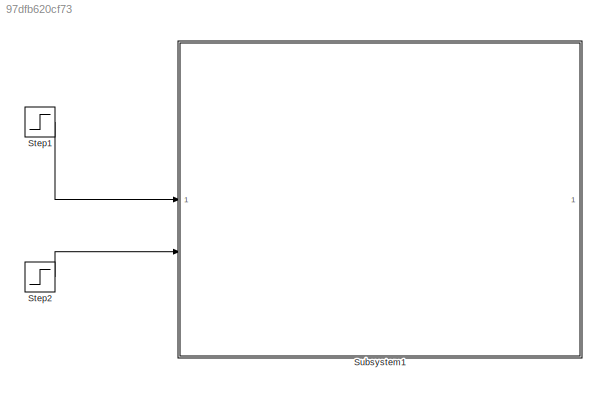
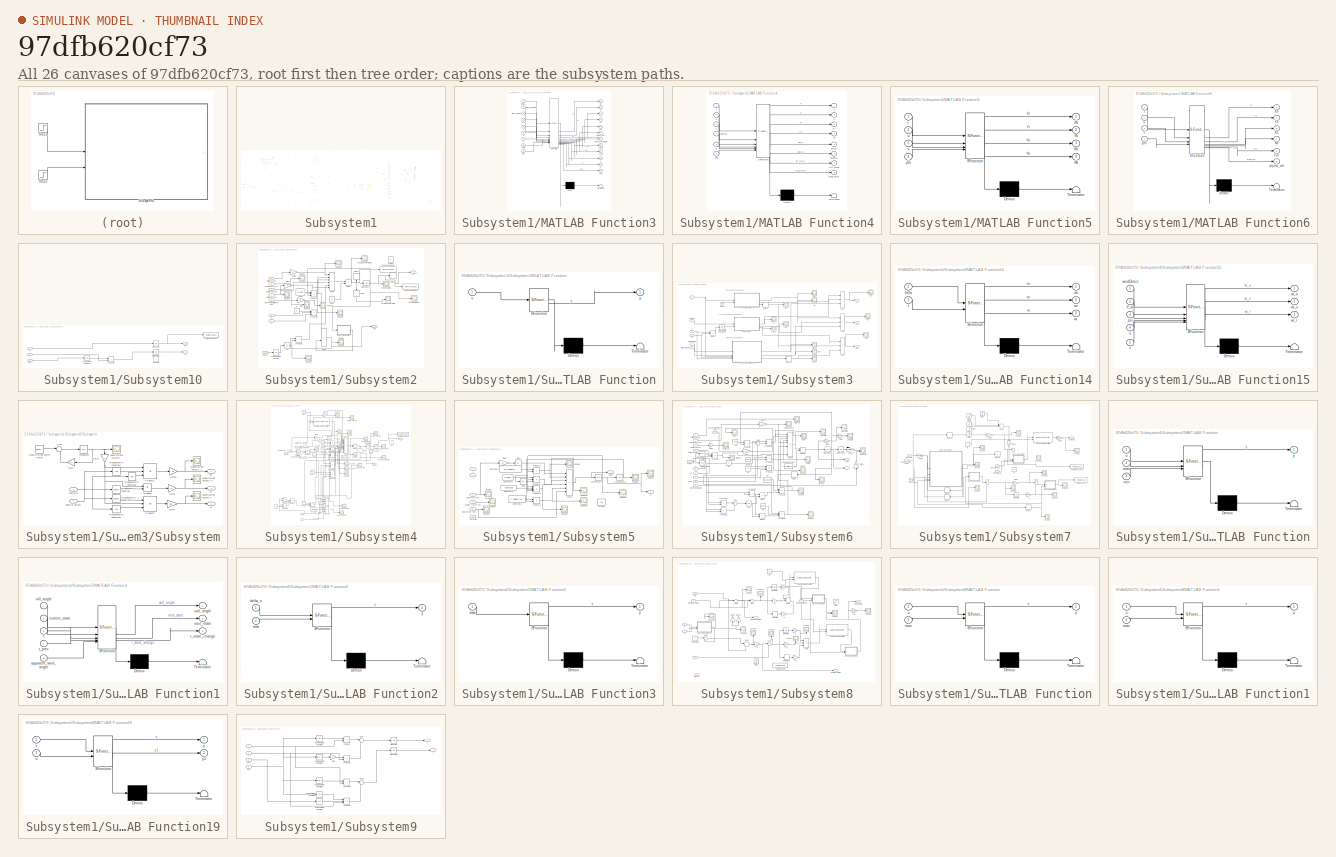
[diagram: thumbnail index - all 26 canvases of the model, root first then tree order]
MODEL slx_97dfb620cf73
KIND model
CONFIG AbsTol = auto
CONFIG EnableMultiTasking = off
CONFIG FixedStep = auto
CONFIG MaxStep = auto
CONFIG MinStep = auto
CONFIG RelTol = 1e-3
CONFIG SampleTimeConstraint = Unconstrained
CONFIG SolverName = VariableStepAuto
CONFIG StartTime = 0.0
CONFIG StopTime = 10.0
BLOCK [Step] Step1
  After = 0
  SampleTime = 0
  Time = 0
BLOCK [Step] Step2
  After = pi/4
  SampleTime = 0
  Time = 0
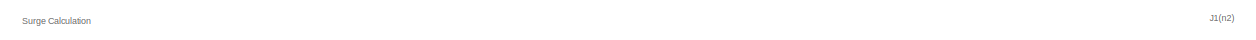
[diagram: Subsystem1 - part 1/12, top center region]
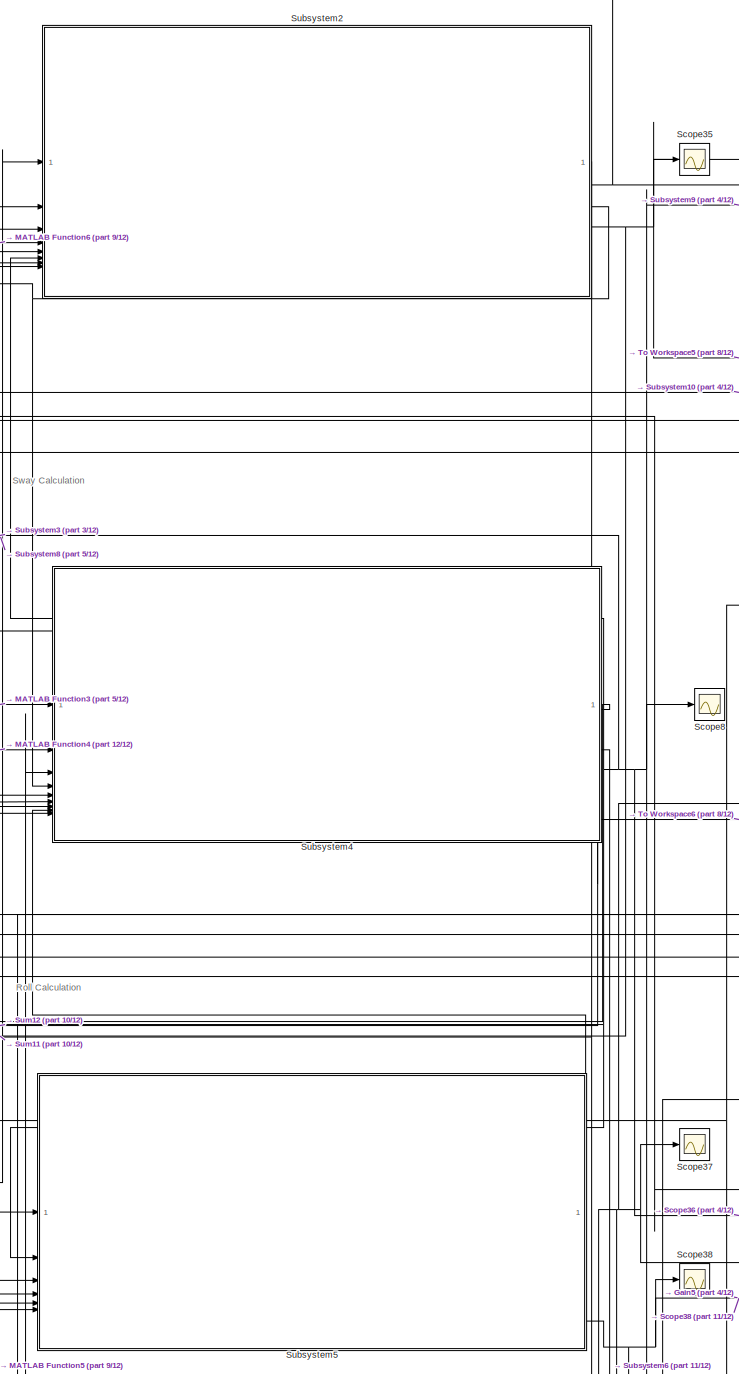
[diagram: Subsystem1 - part 2/12, central region]
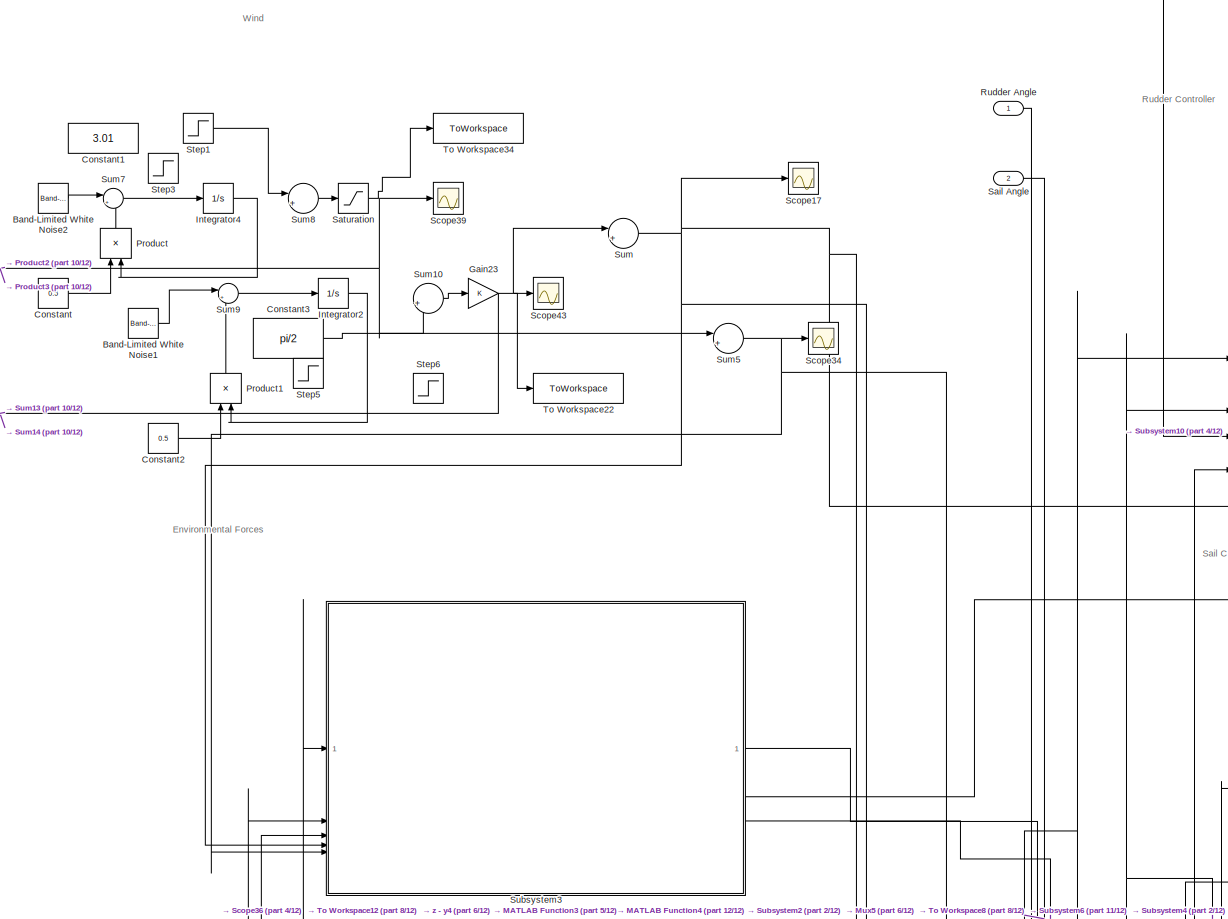
[diagram: Subsystem1 - part 3/12, top left region]
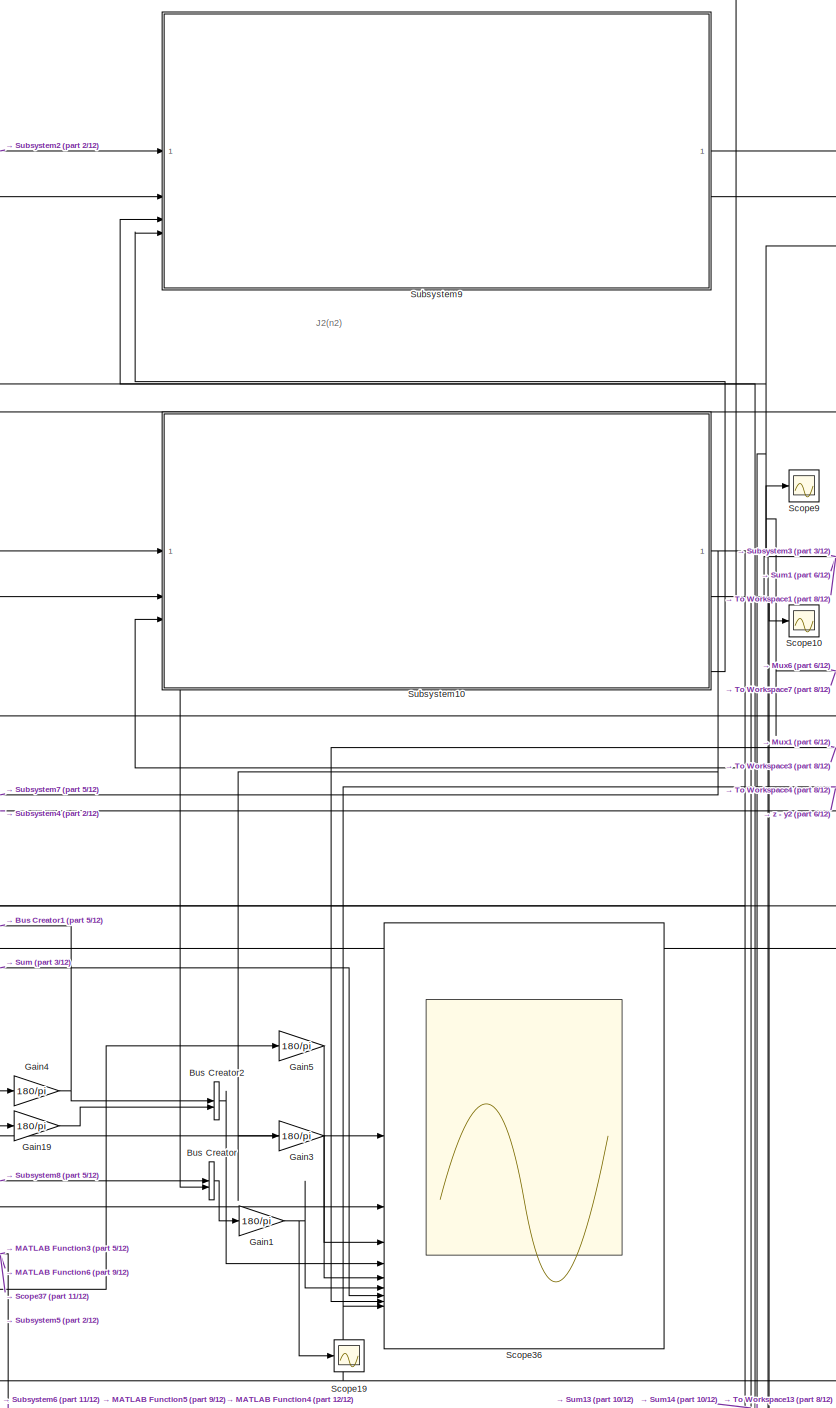
[diagram: Subsystem1 - part 4/12, central region]
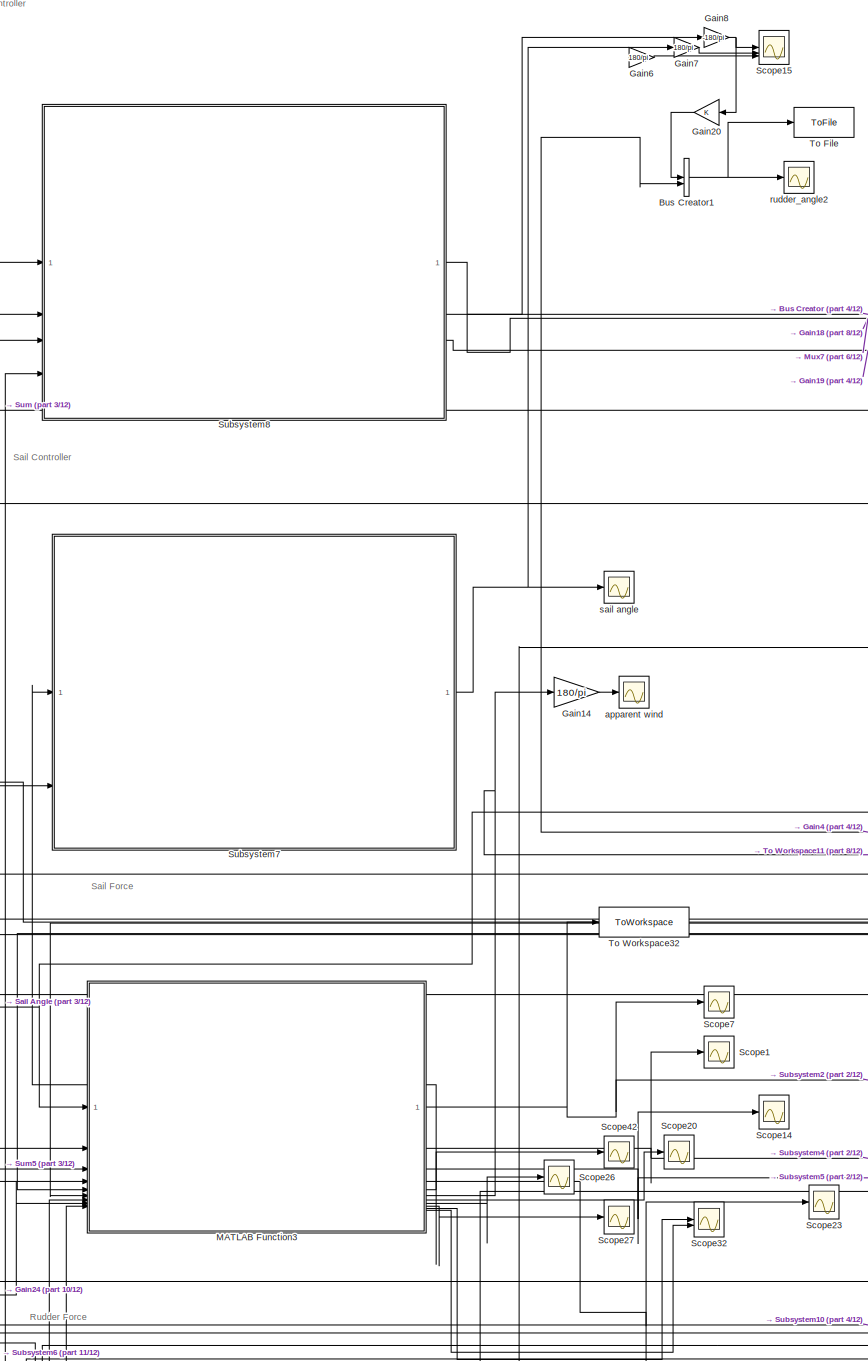
[diagram: Subsystem1 - part 5/12, middle left region]
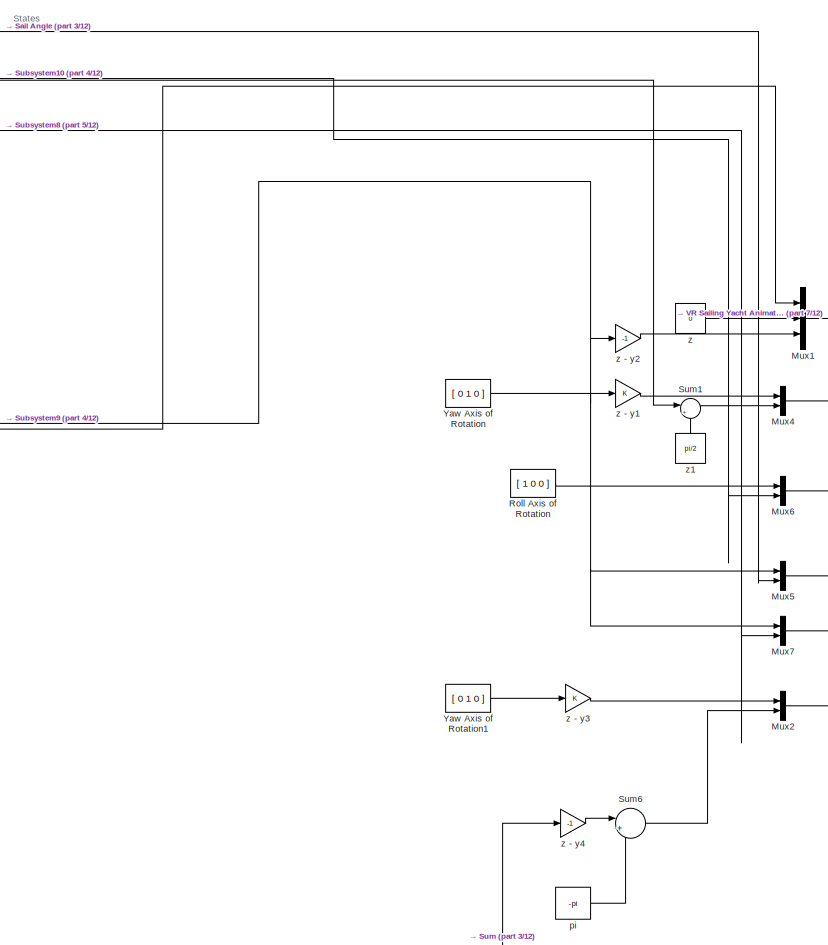
[diagram: Subsystem1 - part 6/12, middle right region]
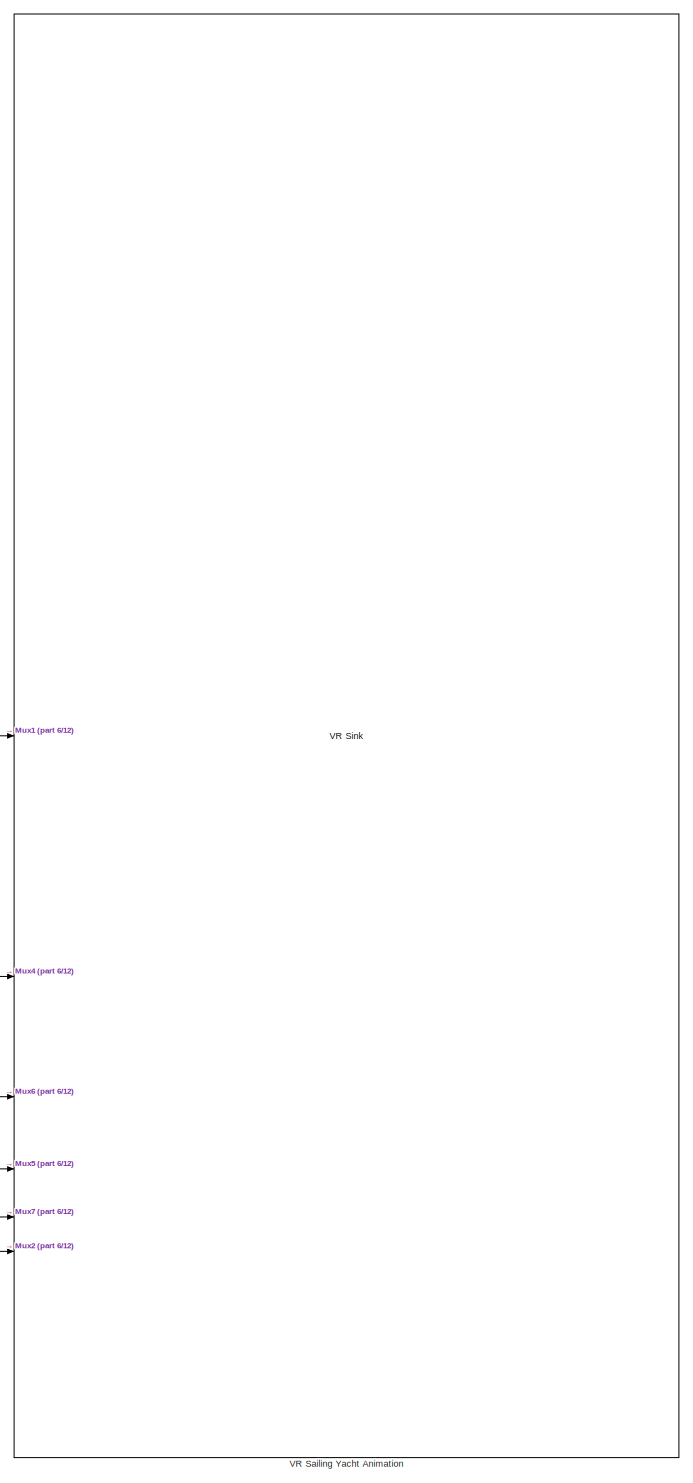
[diagram: Subsystem1 - part 7/12, middle right region]
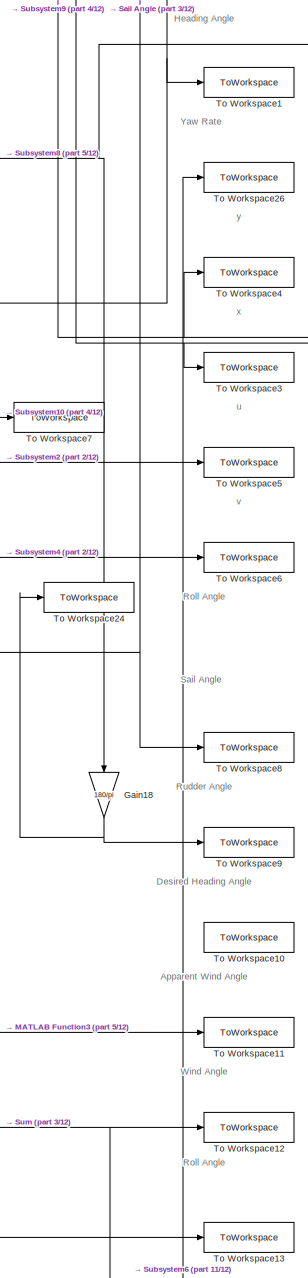
[diagram: Subsystem1 - part 8/12, middle right region]
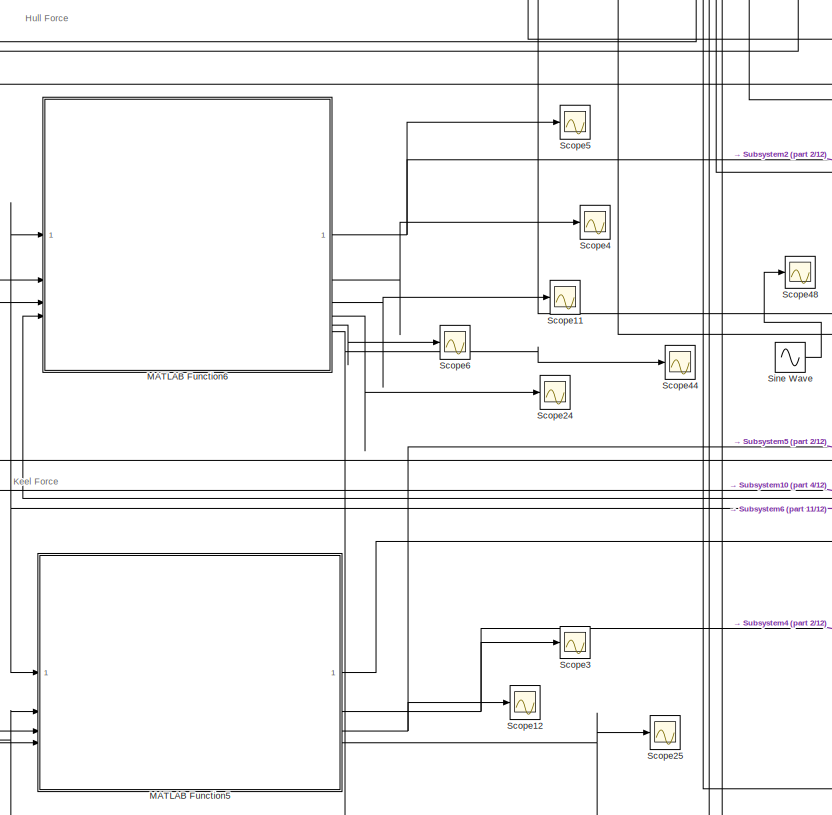
[diagram: Subsystem1 - part 9/12, bottom left region]
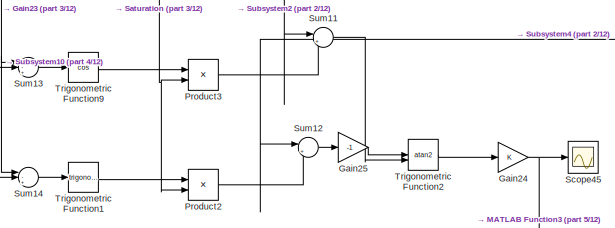
[diagram: Subsystem1 - part 10/12, middle left region]
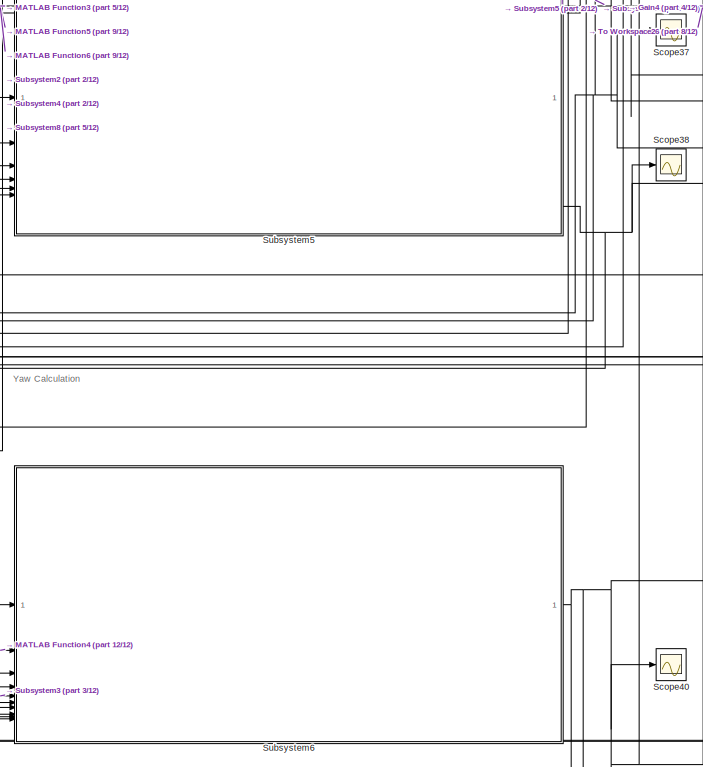
[diagram: Subsystem1 - part 11/12, bottom center region]
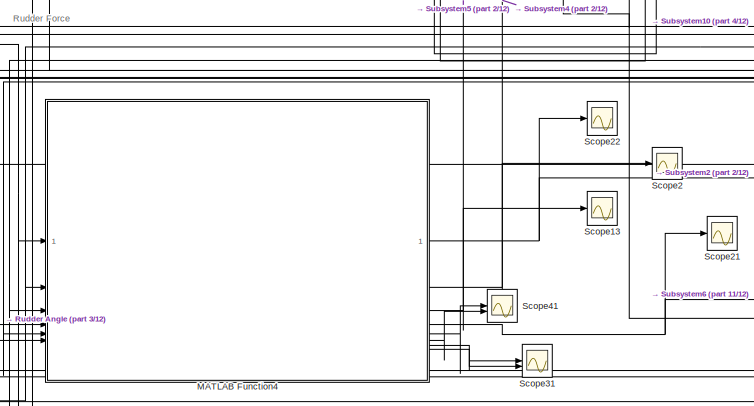
[diagram: Subsystem1 - part 12/12, bottom left region]
BLOCK [SubSystem] Subsystem1
BLOCK [Reference] Subsystem1/Band-Limited White Noise1  REF=simulink/Sources/Band-Limited
White Noise
  SourceBlock = simulink/Sources/Band-Limited\nWhite Noise
  SourceType = Band-Limited White Noise.
BLOCK [Reference] Subsystem1/Band-Limited White Noise2  REF=simulink/Sources/Band-Limited
White Noise
  SourceBlock = simulink/Sources/Band-Limited\nWhite Noise
  SourceType = Band-Limited White Noise.
BLOCK [BusCreator] Subsystem1/Bus Creator
  DisplayOption = bar
  InheritFromInputs = on
  Inputs = 2
BLOCK [BusCreator] Subsystem1/Bus Creator1
  DisplayOption = bar
  InheritFromInputs = on
  Inputs = 2
BLOCK [BusCreator] Subsystem1/Bus Creator2
  DisplayOption = bar
  InheritFromInputs = on
  Inputs = 2
BLOCK [Constant] Subsystem1/Constant
  Value = 0.5
BLOCK [Constant] Subsystem1/Constant1
  Value = 3.01
BLOCK [Constant] Subsystem1/Constant2
  Value = 0.5
BLOCK [Constant] Subsystem1/Constant3
  Value = pi/2
BLOCK [Gain] Subsystem1/Gain1
  Gain = 180/pi
BLOCK [Gain] Subsystem1/Gain14
  Gain = 180/pi
BLOCK [Gain] Subsystem1/Gain18
  Gain = 180/pi
  NameLocation = left
BLOCK [Gain] Subsystem1/Gain19
  Gain = 180/pi
BLOCK [Gain] Subsystem1/Gain20
  NameLocation = top
BLOCK [Gain] Subsystem1/Gain23
BLOCK [Gain] Subsystem1/Gain24
BLOCK [Gain] Subsystem1/Gain25
  Gain = -1
BLOCK [Gain] Subsystem1/Gain3
  Gain = 180/pi
BLOCK [Gain] Subsystem1/Gain4
  Gain = 180/pi
BLOCK [Gain] Subsystem1/Gain5
  Gain = 180/pi
BLOCK [Gain] Subsystem1/Gain6
  Gain = 180/pi
BLOCK [Gain] Subsystem1/Gain7
  Gain = 180/pi
BLOCK [Gain] Subsystem1/Gain8
  Gain = -180/pi
BLOCK [Integrator] Subsystem1/Integrator2
  LimitOutput = on
  LowerSaturationLimit = -99
  UpperSaturationLimit = 99
BLOCK [Integrator] Subsystem1/Integrator4
BLOCK [SubSystem] Subsystem1/MATLAB Function3
  ErrorFcn = Stateflow.Translate.translate
  LibrarySourceBlock = simulink/User-Defined\nFunctions/MATLAB Function
  PermitHierarchicalResolution = ExplicitOnly
  SFBlockType = MATLAB Function
  TreatAsAtomicUnit = on
BLOCK [Demux] Subsystem1/MATLAB Function3/ Demux 
  Outputs = 1
BLOCK [S-Function] Subsystem1/MATLAB Function3/ SFunction 
  EnableBusSupport = on
  FunctionName = sf_sfun
  PortCounts = [9 13]
  SFcnIsStateOwnerBlock = off
  SFunctionDeploymentMode = off
  Tag = Stateflow S-Function 6
BLOCK [Terminator] Subsystem1/MATLAB Function3/ Terminator 
BLOCK [Outport] Subsystem1/MATLAB Function3/D
  Port = 11
BLOCK [Outport] Subsystem1/MATLAB Function3/Ks
  Port = 3
BLOCK [Outport] Subsystem1/MATLAB Function3/L
  Port = 10
BLOCK [Outport] Subsystem1/MATLAB Function3/Ns
  Port = 4
BLOCK [Outport] Subsystem1/MATLAB Function3/V_awu
  Port = 8
BLOCK [Outport] Subsystem1/MATLAB Function3/V_awv
  Port = 9
BLOCK [Outport] Subsystem1/MATLAB Function3/Xs
BLOCK [Outport] Subsystem1/MATLAB Function3/Ys
  Port = 2
BLOCK [Outport] Subsystem1/MATLAB Function3/alpha_aw
  Port = 6
BLOCK [Outport] Subsystem1/MATLAB Function3/apparent_velocity
  Port = 7
BLOCK [Outport] Subsystem1/MATLAB Function3/awa
  Port = 5
BLOCK [Outport] Subsystem1/MATLAB Function3/data
  Port = 12
BLOCK [Inport] Subsystem1/MATLAB Function3/delta_s
BLOCK [Inport] Subsystem1/MATLAB Function3/phi
  Port = 9
BLOCK [Inport] Subsystem1/MATLAB Function3/psi
  Port = 4
BLOCK [Inport] Subsystem1/MATLAB Function3/r
  Port = 7
BLOCK [Inport] Subsystem1/MATLAB Function3/rawa
  Port = 8
BLOCK [Inport] Subsystem1/MATLAB Function3/u
  Port = 5
BLOCK [Inport] Subsystem1/MATLAB Function3/v
  Port = 6
BLOCK [Inport] Subsystem1/MATLAB Function3/wind_direction
  Port = 2
BLOCK [Inport] Subsystem1/MATLAB Function3/wind_velocity
  Port = 3
BLOCK [SubSystem] Subsystem1/MATLAB Function4
  ErrorFcn = Stateflow.Translate.translate
  LibrarySourceBlock = simulink/User-Defined\nFunctions/MATLAB Function
  PermitHierarchicalResolution = ExplicitOnly
  SFBlockType = MATLAB Function
  TreatAsAtomicUnit = on
BLOCK [Demux] Subsystem1/MATLAB Function4/ Demux 
  Outputs = 1
BLOCK [S-Function] Subsystem1/MATLAB Function4/ SFunction 
  EnableBusSupport = on
  FunctionName = sf_sfun
  PortCounts = [6 9]
  SFcnIsStateOwnerBlock = off
  SFunctionDeploymentMode = off
  Tag = Stateflow S-Function 7
BLOCK [Terminator] Subsystem1/MATLAB Function4/ Terminator 
BLOCK [Outport] Subsystem1/MATLAB Function4/Kr
  Port = 3
BLOCK [Outport] Subsystem1/MATLAB Function4/Nr
  Port = 4
BLOCK [Outport] Subsystem1/MATLAB Function4/Xr
BLOCK [Outport] Subsystem1/MATLAB Function4/Yr
  Port = 2
BLOCK [Outport] Subsystem1/MATLAB Function4/alpha_a
  Port = 6
BLOCK [Outport] Subsystem1/MATLAB Function4/delta_r
  Port = 5
BLOCK [Inport] Subsystem1/MATLAB Function4/delta_r 
  Port = 4
BLOCK [Outport] Subsystem1/MATLAB Function4/drag_force
  Port = 8
BLOCK [Outport] Subsystem1/MATLAB Function4/lift_force
  Port = 7
BLOCK [Inport] Subsystem1/MATLAB Function4/p
  Port = 5
BLOCK [Inport] Subsystem1/MATLAB Function4/phi
  Port = 6
BLOCK [Inport] Subsystem1/MATLAB Function4/r
BLOCK [Inport] Subsystem1/MATLAB Function4/u
  Port = 2
BLOCK [Inport] Subsystem1/MATLAB Function4/v
  Port = 3
BLOCK [SubSystem] Subsystem1/MATLAB Function5
  ErrorFcn = Stateflow.Translate.translate
  LibrarySourceBlock = simulink/User-Defined\nFunctions/MATLAB Function
  PermitHierarchicalResolution = ExplicitOnly
  SFBlockType = MATLAB Function
  TreatAsAtomicUnit = on
BLOCK [Demux] Subsystem1/MATLAB Function5/ Demux 
  Outputs = 1
BLOCK [S-Function] Subsystem1/MATLAB Function5/ SFunction 
  EnableBusSupport = on
  FunctionName = sf_sfun
  PortCounts = [4 5]
  SFcnIsStateOwnerBlock = off
  SFunctionDeploymentMode = off
  Tag = Stateflow S-Function 8
BLOCK [Terminator] Subsystem1/MATLAB Function5/ Terminator 
BLOCK [Outport] Subsystem1/MATLAB Function5/Kk
  Port = 3
BLOCK [Outport] Subsystem1/MATLAB Function5/Nk
  Port = 4
BLOCK [Outport] Subsystem1/MATLAB Function5/Xk
BLOCK [Outport] Subsystem1/MATLAB Function5/Yk
  Port = 2
BLOCK [Inport] Subsystem1/MATLAB Function5/phi
  Port = 4
BLOCK [Inport] Subsystem1/MATLAB Function5/r
BLOCK [Inport] Subsystem1/MATLAB Function5/u
  Port = 2
BLOCK [Inport] Subsystem1/MATLAB Function5/v
  Port = 3
BLOCK [SubSystem] Subsystem1/MATLAB Function6
  ErrorFcn = Stateflow.Translate.translate
  LibrarySourceBlock = simulink/User-Defined\nFunctions/MATLAB Function
  PermitHierarchicalResolution = ExplicitOnly
  SFBlockType = MATLAB Function
  TreatAsAtomicUnit = on
BLOCK [Demux] Subsystem1/MATLAB Function6/ Demux 
  Outputs = 1
BLOCK [S-Function] Subsystem1/MATLAB Function6/ SFunction 
  EnableBusSupport = on
  FunctionName = sf_sfun
  PortCounts = [4 7]
  SFcnIsStateOwnerBlock = off
  SFunctionDeploymentMode = off
  Tag = Stateflow S-Function 9
BLOCK [Terminator] Subsystem1/MATLAB Function6/ Terminator 
BLOCK [Outport] Subsystem1/MATLAB Function6/Frh
  Port = 5
BLOCK [Outport] Subsystem1/MATLAB Function6/Kh
  Port = 3
BLOCK [Outport] Subsystem1/MATLAB Function6/Nh
  Port = 4
BLOCK [Outport] Subsystem1/MATLAB Function6/Xh
BLOCK [Outport] Subsystem1/MATLAB Function6/Yh
  Port = 2
BLOCK [Outport] Subsystem1/MATLAB Function6/alpha_ah
  Port = 6
BLOCK [Inport] Subsystem1/MATLAB Function6/phi
  Port = 4
BLOCK [Inport] Subsystem1/MATLAB Function6/r
BLOCK [Inport] Subsystem1/MATLAB Function6/u
  Port = 2
BLOCK [Inport] Subsystem1/MATLAB Function6/v
  Port = 3
BLOCK [Mux] Subsystem1/Mux1
  DisplayOption = bar
  Inputs = 3
BLOCK [Mux] Subsystem1/Mux2
  DisplayOption = bar
  Inputs = 2
BLOCK [Mux] Subsystem1/Mux4
  DisplayOption = bar
  Inputs = 2
BLOCK [Mux] Subsystem1/Mux5
  DisplayOption = bar
  Inputs = 2
BLOCK [Mux] Subsystem1/Mux6
  DisplayOption = bar
  Inputs = 2
BLOCK [Mux] Subsystem1/Mux7
  DisplayOption = bar
  Inputs = 2
BLOCK [Product] Subsystem1/Product
  NameLocation = right
BLOCK [Product] Subsystem1/Product1
  NameLocation = right
BLOCK [Product] Subsystem1/Product2
BLOCK [Product] Subsystem1/Product3
BLOCK [Constant] Subsystem1/Roll Axis of Rotation
  NameLocation = top
  Value = [ 1 0 0 ]
BLOCK [Inport] Subsystem1/Rudder Angle
  NameLocation = left
BLOCK [Inport] Subsystem1/Sail Angle
  NameLocation = left
  Port = 2
BLOCK [Saturate] Subsystem1/Saturation
  LowerLimit = 0
  UpperLimit = 6
BLOCK [Scope] Subsystem1/Scope1
  Floating = off
  NumInputPorts = 1
  ScopeSpecificationString = Simulink.scopes.TimeScopeBlockCfg('CurrentConfiguration', extmgr.ConfigurationSet(extmgr.Configuration('Core','General UI',true),extmgr.Configuration('Core','Source UI',true),extmgr.Configuration('Sources','WiredSimulink',true,'DataLoggingVariableName','ScopeData2'),extmgr.Configuration('Visuals','Time Domain',true,'SerializedDisplays',{struct('MinYLimReal','-4.79738','MaxYLimReal','14.89619','YLa...<+1437ch>
BLOCK [Scope] Subsystem1/Scope10
  Floating = off
  NumInputPorts = 1
  ScopeSpecificationString = Simulink.scopes.TimeScopeBlockCfg('CurrentConfiguration', extmgr.ConfigurationSet(extmgr.Configuration('Core','General UI',true),extmgr.Configuration('Core','Source UI',true),extmgr.Configuration('Sources','WiredSimulink',true,'DataLoggingVariableName','ScopeData3'),extmgr.Configuration('Visuals','Time Domain',true,'SerializedDisplays',{struct('MinYLimReal','-1.00000','MaxYLimReal','1.00000','YLab...<+1567ch>
BLOCK [Scope] Subsystem1/Scope11
  Floating = off
  NumInputPorts = 1
  ScopeSpecificationString = Simulink.scopes.TimeScopeBlockCfg('CurrentConfiguration', extmgr.ConfigurationSet(extmgr.Configuration('Core','General UI',true),extmgr.Configuration('Core','Source UI',true),extmgr.Configuration('Sources','WiredSimulink',true,'DataLoggingVariableName','ScopeData4'),extmgr.Configuration('Visuals','Time Domain',true,'SerializedDisplays',{struct('MinYLimReal','-18.75','MaxYLimReal','18.75','YLabelRe...<+1410ch>
BLOCK [Scope] Subsystem1/Scope12
  Floating = off
  NumInputPorts = 1
  ScopeSpecificationString = Simulink.scopes.TimeScopeBlockCfg('CurrentConfiguration', extmgr.ConfigurationSet(extmgr.Configuration('Core','General UI',true),extmgr.Configuration('Core','Source UI',true),extmgr.Configuration('Sources','WiredSimulink',true,'DataLoggingVariableName','ScopeData5'),extmgr.Configuration('Visuals','Time Domain',true,'SerializedDisplays',{struct('MinYLimReal','-4.03531','MaxYLimReal','4.21707','YLab...<+1422ch>
BLOCK [Scope] Subsystem1/Scope13
  Floating = off
  NumInputPorts = 1
  ScopeSpecificationString = Simulink.scopes.TimeScopeBlockCfg('CurrentConfiguration', extmgr.ConfigurationSet(extmgr.Configuration('Core','General UI',true),extmgr.Configuration('Core','Source UI',true),extmgr.Configuration('Sources','WiredSimulink',true,'DataLoggingVariableName','ScopeData6'),extmgr.Configuration('Visuals','Time Domain',true,'SerializedDisplays',{struct('MinYLimReal','-0.32173','MaxYLimReal','0.46736','YLab...<+1457ch>
BLOCK [Scope] Subsystem1/Scope14
  Floating = off
  NumInputPorts = 1
  ScopeSpecificationString = Simulink.scopes.TimeScopeBlockCfg('CurrentConfiguration', extmgr.ConfigurationSet(extmgr.Configuration('Core','General UI',true),extmgr.Configuration('Core','Source UI',true),extmgr.Configuration('Sources','WiredSimulink',true,'DataLoggingVariableName','ScopeData7'),extmgr.Configuration('Visuals','Time Domain',true,'SerializedDisplays',{struct('MinYLimReal','-0.18888','MaxYLimReal','0.02158','YLab...<+1539ch>
BLOCK [Scope] Subsystem1/Scope15
  Floating = off
  NumInputPorts = 3
  ScopeSpecificationString = Simulink.scopes.TimeScopeBlockCfg('CurrentConfiguration', extmgr.ConfigurationSet(extmgr.Configuration('Core','General UI',true),extmgr.Configuration('Core','Source UI',true),extmgr.Configuration('Sources','WiredSimulink',true,'DataLoggingVariableName','ScopeData8'),extmgr.Configuration('Visuals','Time Domain',true,'SerializedDisplays',{struct('MinYLimReal','-0.5781','MaxYLimReal','3.96889','YLabe...<+5427ch>
BLOCK [Scope] Subsystem1/Scope17
  Floating = off
  NumInputPorts = 1
  ScopeSpecificationString = Simulink.scopes.TimeScopeBlockCfg('CurrentConfiguration', extmgr.ConfigurationSet(extmgr.Configuration('Core','General UI',true),extmgr.Configuration('Core','Source UI',true),extmgr.Configuration('Sources','WiredSimulink',true,'DataLoggingVariableName','ScopeData10'),extmgr.Configuration('Visuals','Time Domain',true,'SerializedDisplays',{struct('MinYLimReal','-1.00000','MaxYLimReal','1.00000','YLa...<+1541ch>
BLOCK [Scope] Subsystem1/Scope19
  Floating = off
  NumInputPorts = 1
  ScopeSpecificationString = Simulink.scopes.TimeScopeBlockCfg('CurrentConfiguration', extmgr.ConfigurationSet(extmgr.Configuration('Core','General UI',true,'FigureColor',[1 1 1]),extmgr.Configuration('Core','Source UI',true),extmgr.Configuration('Sources','WiredSimulink',true,'DataLoggingVariableName','ScopeData11'),extmgr.Configuration('Visuals','Time Domain',true,'SerializedDisplays',{struct('MinYLimReal','-1.94761','MaxYL...<+1674ch>
BLOCK [Scope] Subsystem1/Scope2
  Floating = off
  NumInputPorts = 1
  ScopeSpecificationString = Simulink.scopes.TimeScopeBlockCfg('CurrentConfiguration', extmgr.ConfigurationSet(extmgr.Configuration('Core','General UI',true),extmgr.Configuration('Core','Source UI',true),extmgr.Configuration('Sources','WiredSimulink',true,'DataLoggingVariableName','ScopeData12'),extmgr.Configuration('Visuals','Time Domain',true,'SerializedDisplays',{struct('MinYLimReal','-8.78682','MaxYLimReal','8.6066','YLab...<+1551ch>
BLOCK [Scope] Subsystem1/Scope20
  Floating = off
  NumInputPorts = 1
  ScopeSpecificationString = Simulink.scopes.TimeScopeBlockCfg('CurrentConfiguration', extmgr.ConfigurationSet(extmgr.Configuration('Core','General UI',true),extmgr.Configuration('Core','Source UI',true),extmgr.Configuration('Sources','WiredSimulink',true,'DataLoggingVariableName','ScopeData13'),extmgr.Configuration('Visuals','Time Domain',true,'SerializedDisplays',{struct('MinYLimReal','7.48075','MaxYLimReal','8.33694','YLab...<+1436ch>
BLOCK [Scope] Subsystem1/Scope21
  Floating = off
  NumInputPorts = 1
  ScopeSpecificationString = Simulink.scopes.TimeScopeBlockCfg('CurrentConfiguration', extmgr.ConfigurationSet(extmgr.Configuration('Core','General UI',true),extmgr.Configuration('Core','Source UI',true),extmgr.Configuration('Sources','WiredSimulink',true,'DataLoggingVariableName','ScopeData14'),extmgr.Configuration('Visuals','Time Domain',true,'SerializedDisplays',{struct('MinYLimReal','-6.11786','MaxYLimReal','6.10374','YLa...<+1477ch>
BLOCK [Scope] Subsystem1/Scope22
  Floating = off
  NumInputPorts = 1
  ScopeSpecificationString = Simulink.scopes.TimeScopeBlockCfg('CurrentConfiguration', extmgr.ConfigurationSet(extmgr.Configuration('Core','General UI',true),extmgr.Configuration('Core','Source UI',true),extmgr.Configuration('Sources','WiredSimulink',true,'DataLoggingVariableName','ScopeData15'),extmgr.Configuration('Visuals','Time Domain',true,'SerializedDisplays',{struct('MinYLimReal','-2.33932','MaxYLimReal','6.85463','YLa...<+1458ch>
BLOCK [Scope] Subsystem1/Scope23
  Floating = off
  NumInputPorts = 1
  ScopeSpecificationString = Simulink.scopes.TimeScopeBlockCfg('CurrentConfiguration', extmgr.ConfigurationSet(extmgr.Configuration('Core','General UI',true),extmgr.Configuration('Core','Source UI',true),extmgr.Configuration('Sources','WiredSimulink',true,'DataLoggingVariableName','ScopeData16'),extmgr.Configuration('Visuals','Time Domain',true,'SerializedDisplays',{struct('MinYLimReal','-1.00000','MaxYLimReal','1.00000','YLa...<+1423ch>
BLOCK [Scope] Subsystem1/Scope24
  Floating = off
  NumInputPorts = 1
  ScopeSpecificationString = Simulink.scopes.TimeScopeBlockCfg('CurrentConfiguration', extmgr.ConfigurationSet(extmgr.Configuration('Core','General UI',true),extmgr.Configuration('Core','Source UI',true),extmgr.Configuration('Sources','WiredSimulink',true,'DataLoggingVariableName','ScopeData17'),extmgr.Configuration('Visuals','Time Domain',true,'SerializedDisplays',{struct('MinYLimReal','-1.00000','MaxYLimReal','1.00000','YLa...<+1423ch>
BLOCK [Scope] Subsystem1/Scope25
  Floating = off
  NumInputPorts = 1
  ScopeSpecificationString = Simulink.scopes.TimeScopeBlockCfg('CurrentConfiguration', extmgr.ConfigurationSet(extmgr.Configuration('Core','General UI',true),extmgr.Configuration('Core','Source UI',true),extmgr.Configuration('Sources','WiredSimulink',true,'DataLoggingVariableName','ScopeData18'),extmgr.Configuration('Visuals','Time Domain',true,'SerializedDisplays',{struct('MinYLimReal','-0.51371','MaxYLimReal','0.63606','YLa...<+1423ch>
BLOCK [Scope] Subsystem1/Scope26
  Floating = off
  NumInputPorts = 1
  ScopeSpecificationString = Simulink.scopes.TimeScopeBlockCfg('CurrentConfiguration', extmgr.ConfigurationSet(extmgr.Configuration('Core','General UI',true),extmgr.Configuration('Core','Source UI',true),extmgr.Configuration('Sources','WiredSimulink',true,'DataLoggingVariableName','ScopeData19'),extmgr.Configuration('Visuals','Time Domain',true,'SerializedDisplays',{struct('MinYLimReal','-2.56737','MaxYLimReal','1.44034','YLa...<+1544ch>
BLOCK [Scope] Subsystem1/Scope27
  Floating = off
  NumInputPorts = 1
  ScopeSpecificationString = Simulink.scopes.TimeScopeBlockCfg('CurrentConfiguration', extmgr.ConfigurationSet(extmgr.Configuration('Core','General UI',true),extmgr.Configuration('Core','Source UI',true),extmgr.Configuration('Sources','WiredSimulink',true,'DataLoggingVariableName','ScopeData20'),extmgr.Configuration('Visuals','Time Domain',true,'SerializedDisplays',{struct('MinYLimReal','-8.24675','MaxYLimReal','8.25975','YLa...<+1455ch>
BLOCK [Scope] Subsystem1/Scope3
  Floating = off
  NumInputPorts = 1
  ScopeSpecificationString = Simulink.scopes.TimeScopeBlockCfg('CurrentConfiguration', extmgr.ConfigurationSet(extmgr.Configuration('Core','General UI',true),extmgr.Configuration('Core','Source UI',true),extmgr.Configuration('Sources','WiredSimulink',true,'DataLoggingVariableName','ScopeData23'),extmgr.Configuration('Visuals','Time Domain',true,'SerializedDisplays',{struct('MinYLimReal','-1.31203','MaxYLimReal','11.80825','YL...<+1408ch>
BLOCK [Scope] Subsystem1/Scope31
  Floating = off
  NumInputPorts = 2
  ScopeSpecificationString = Simulink.scopes.TimeScopeBlockCfg('CurrentConfiguration', extmgr.ConfigurationSet(extmgr.Configuration('Core','General UI',true),extmgr.Configuration('Core','Source UI',true),extmgr.Configuration('Sources','WiredSimulink',true,'DataLoggingVariableName','ScopeData25'),extmgr.Configuration('Visuals','Time Domain',true,'SerializedDisplays',{struct('MinYLimReal','-9.85763','MaxYLimReal','9.65518','YLa...<+1488ch>
BLOCK [Scope] Subsystem1/Scope32
  Floating = off
  NumInputPorts = 2
  ScopeSpecificationString = Simulink.scopes.TimeScopeBlockCfg('CurrentConfiguration', extmgr.ConfigurationSet(extmgr.Configuration('Core','General UI',true),extmgr.Configuration('Core','Source UI',true),extmgr.Configuration('Sources','WiredSimulink',true,'DataLoggingVariableName','ScopeData26'),extmgr.Configuration('Visuals','Time Domain',true,'SerializedDisplays',{struct('MinYLimReal','-20.38526','MaxYLimReal','18.05059','Y...<+1479ch>
BLOCK [Scope] Subsystem1/Scope34
  Floating = off
  NumInputPorts = 1
  ScopeSpecificationString = Simulink.scopes.TimeScopeBlockCfg('CurrentConfiguration', extmgr.ConfigurationSet(extmgr.Configuration('Core','General UI',true),extmgr.Configuration('Core','Source UI',true),extmgr.Configuration('Sources','WiredSimulink',true,'DataLoggingVariableName','ScopeData28'),extmgr.Configuration('Visuals','Time Domain',true,'SerializedDisplays',{struct('MinYLimReal','1.47536','MaxYLimReal','3.43981','YLab...<+1540ch>
BLOCK [Scope] Subsystem1/Scope35
  Floating = off
  NumInputPorts = 1
  ScopeSpecificationString = Simulink.scopes.TimeScopeBlockCfg('CurrentConfiguration', extmgr.ConfigurationSet(extmgr.Configuration('Core','General UI',true),extmgr.Configuration('Core','Source UI',true),extmgr.Configuration('Sources','WiredSimulink',true,'DataLoggingVariableName','ScopeData29'),extmgr.Configuration('Visuals','Time Domain',true,'SerializedDisplays',{struct('MinYLimReal','0.73495','MaxYLimReal','1.02945','YLab...<+1513ch>
BLOCK [Scope] Subsystem1/Scope36
  Floating = off
  NumInputPorts = 9
  ScopeSpecificationString = Simulink.scopes.TimeScopeBlockCfg('CurrentConfiguration', extmgr.ConfigurationSet(extmgr.Configuration('Core','General UI',true),extmgr.Configuration('Core','Source UI',true),extmgr.Configuration('Sources','WiredSimulink',true,'DataLoggingVariableName','ScopeData30','DataLogging',true),extmgr.Configuration('Visuals','Time Domain',true,'SerializedDisplays',{struct('MinYLimReal','0.91454','MaxYLimRe...<+8458ch>
BLOCK [Scope] Subsystem1/Scope37
  Floating = off
  NumInputPorts = 1
  ScopeSpecificationString = Simulink.scopes.TimeScopeBlockCfg('CurrentConfiguration', extmgr.ConfigurationSet(extmgr.Configuration('Core','General UI',true),extmgr.Configuration('Core','Source UI',true),extmgr.Configuration('Sources','WiredSimulink',true,'DataLoggingVariableName','ScopeData31'),extmgr.Configuration('Visuals','Time Domain',true,'SerializedDisplays',{struct('MinYLimReal','-0.07335','MaxYLimReal','0.15114','YLa...<+1516ch>
BLOCK [Scope] Subsystem1/Scope38
  Floating = off
  NumInputPorts = 1
  ScopeSpecificationString = Simulink.scopes.TimeScopeBlockCfg('CurrentConfiguration', extmgr.ConfigurationSet(extmgr.Configuration('Core','General UI',true),extmgr.Configuration('Core','Source UI',true),extmgr.Configuration('Sources','WiredSimulink',true,'DataLoggingVariableName','ScopeData32'),extmgr.Configuration('Visuals','Time Domain',true,'SerializedDisplays',{struct('MinYLimReal','-0.33485','MaxYLimReal','0.11692','YLa...<+1397ch>
BLOCK [Scope] Subsystem1/Scope39
  Floating = off
  NumInputPorts = 1
  ScopeSpecificationString = Simulink.scopes.TimeScopeBlockCfg('CurrentConfiguration', extmgr.ConfigurationSet(extmgr.Configuration('Core','General UI',true),extmgr.Configuration('Core','Source UI',true),extmgr.Configuration('Sources','WiredSimulink',true,'DataLoggingVariableName','ScopeData33'),extmgr.Configuration('Visuals','Time Domain',true,'SerializedDisplays',{struct('MinYLimReal','1.00000','MaxYLimReal','3.00000','YLab...<+1512ch>
BLOCK [Scope] Subsystem1/Scope4
  Floating = off
  NumInputPorts = 1
  ScopeSpecificationString = Simulink.scopes.TimeScopeBlockCfg('CurrentConfiguration', extmgr.ConfigurationSet(extmgr.Configuration('Core','General UI',true),extmgr.Configuration('Core','Source UI',true),extmgr.Configuration('Sources','WiredSimulink',true,'DataLoggingVariableName','ScopeData34'),extmgr.Configuration('Visuals','Time Domain',true,'SerializedDisplays',{struct('MinYLimReal','-1.875','MaxYLimReal','16.875','YLabel...<+1415ch>
BLOCK [Scope] Subsystem1/Scope40
  Floating = off
  NumInputPorts = 1
  ScopeSpecificationString = Simulink.scopes.TimeScopeBlockCfg('CurrentConfiguration', extmgr.ConfigurationSet(extmgr.Configuration('Core','General UI',true),extmgr.Configuration('Core','Source UI',true),extmgr.Configuration('Sources','WiredSimulink',true,'DataLoggingVariableName','ScopeData35'),extmgr.Configuration('Visuals','Time Domain',true,'SerializedDisplays',{struct('MinYLimReal','-0.02529','MaxYLimReal','0.22765','YLa...<+1486ch>
BLOCK [Scope] Subsystem1/Scope41
  Floating = off
  NumInputPorts = 2
  ScopeSpecificationString = Simulink.scopes.TimeScopeBlockCfg('CurrentConfiguration', extmgr.ConfigurationSet(extmgr.Configuration('Core','General UI',true),extmgr.Configuration('Core','Source UI',true),extmgr.Configuration('Sources','WiredSimulink',true,'DataLoggingVariableName','ScopeData36'),extmgr.Configuration('Visuals','Time Domain',true,'SerializedDisplays',{struct('MinYLimReal','-3.94436','MaxYLimReal','3.92892','YLa...<+1484ch>
BLOCK [Scope] Subsystem1/Scope42
  Floating = off
  NumInputPorts = 1
  ScopeSpecificationString = Simulink.scopes.TimeScopeBlockCfg('CurrentConfiguration', extmgr.ConfigurationSet(extmgr.Configuration('Core','General UI',true),extmgr.Configuration('Core','Source UI',true),extmgr.Configuration('Sources','WiredSimulink',true,'DataLoggingVariableName','ScopeData37'),extmgr.Configuration('Visuals','Time Domain',true,'SerializedDisplays',{struct('MinYLimReal','-3.92698','MaxYLimReal','3.92692','YLa...<+1523ch>
BLOCK [Scope] Subsystem1/Scope43
  Floating = off
  NumInputPorts = 1
  ScopeSpecificationString = Simulink.scopes.TimeScopeBlockCfg('CurrentConfiguration', extmgr.ConfigurationSet(extmgr.Configuration('Core','General UI',true),extmgr.Configuration('Core','Source UI',true),extmgr.Configuration('Sources','WiredSimulink',true,'DataLoggingVariableName','ScopeData38'),extmgr.Configuration('Visuals','Time Domain',true,'SerializedDisplays',{struct('MinYLimReal','-1.17188','MaxYLimReal','0.95286','YLa...<+1509ch>
BLOCK [Scope] Subsystem1/Scope44
  Floating = off
  NumInputPorts = 1
  ScopeSpecificationString = Simulink.scopes.TimeScopeBlockCfg('CurrentConfiguration', extmgr.ConfigurationSet(extmgr.Configuration('Core','General UI',true),extmgr.Configuration('Core','Source UI',true),extmgr.Configuration('Sources','WiredSimulink',true,'DataLoggingVariableName','ScopeData39'),extmgr.Configuration('Visuals','Time Domain',true,'SerializedDisplays',{struct('MinYLimReal','-3.92699','MaxYLimReal','3.92698','YLa...<+1518ch>
BLOCK [Scope] Subsystem1/Scope45
  Floating = off
  NumInputPorts = 1
  ScopeSpecificationString = Simulink.scopes.TimeScopeBlockCfg('CurrentConfiguration', extmgr.ConfigurationSet(extmgr.Configuration('Core','General UI',true),extmgr.Configuration('Core','Source UI',true),extmgr.Configuration('Sources','WiredSimulink',true,'DataLoggingVariableName','ScopeData1'),extmgr.Configuration('Visuals','Time Domain',true,'SerializedDisplays',{struct('MinYLimReal','-1.78897','MaxYLimReal','0.19877','YLab...<+1498ch>
BLOCK [Scope] Subsystem1/Scope48
  Floating = off
  NumInputPorts = 1
  ScopeSpecificationString = Simulink.scopes.TimeScopeBlockCfg('CurrentConfiguration', extmgr.ConfigurationSet(extmgr.Configuration('Core','General UI',true),extmgr.Configuration('Core','Source UI',true),extmgr.Configuration('Sources','WiredSimulink',true,'DataLoggingVariableName','ScopeData43'),extmgr.Configuration('Visuals','Time Domain',true,'SerializedDisplays',{struct('MinYLimReal','-3.92699','MaxYLimReal','3.92699','YLa...<+1518ch>
BLOCK [Scope] Subsystem1/Scope5
  Floating = off
  NumInputPorts = 1
  ScopeSpecificationString = Simulink.scopes.TimeScopeBlockCfg('CurrentConfiguration', extmgr.ConfigurationSet(extmgr.Configuration('Core','General UI',true),extmgr.Configuration('Core','Source UI',true),extmgr.Configuration('Sources','WiredSimulink',true,'DataLoggingVariableName','ScopeData44'),extmgr.Configuration('Visuals','Time Domain',true,'SerializedDisplays',{struct('MinYLimReal','0.02459','MaxYLimReal','0.02504','YLab...<+1546ch>
BLOCK [Scope] Subsystem1/Scope6
  Floating = off
  NumInputPorts = 1
  ScopeSpecificationString = Simulink.scopes.TimeScopeBlockCfg('CurrentConfiguration', extmgr.ConfigurationSet(extmgr.Configuration('Core','General UI',true),extmgr.Configuration('Core','Source UI',true),extmgr.Configuration('Sources','WiredSimulink',true,'DataLoggingVariableName','ScopeData45'),extmgr.Configuration('Visuals','Time Domain',true,'SerializedDisplays',{struct('MinYLimReal','0.00612','MaxYLimReal','0.00812','YLab...<+1544ch>
BLOCK [Scope] Subsystem1/Scope7
  Floating = off
  NumInputPorts = 1
  ScopeSpecificationString = Simulink.scopes.TimeScopeBlockCfg('CurrentConfiguration', extmgr.ConfigurationSet(extmgr.Configuration('Core','General UI',true),extmgr.Configuration('Core','Source UI',true),extmgr.Configuration('Sources','WiredSimulink',true,'DataLoggingVariableName','ScopeData46'),extmgr.Configuration('Visuals','Time Domain',true,'SerializedDisplays',{struct('MinYLimReal','0.49243','MaxYLimReal','1.05557','YLab...<+1520ch>
BLOCK [Scope] Subsystem1/Scope8
  Floating = off
  NumInputPorts = 1
  ScopeSpecificationString = Simulink.scopes.TimeScopeBlockCfg('CurrentConfiguration', extmgr.ConfigurationSet(extmgr.Configuration('Core','General UI',true),extmgr.Configuration('Core','Source UI',true),extmgr.Configuration('Sources','WiredSimulink',true,'DataLoggingVariableName','ScopeData47'),extmgr.Configuration('Visuals','Time Domain',true,'SerializedDisplays',{struct('MinYLimReal','-0.0376','MaxYLimReal','0.03011','YLab...<+1511ch>
BLOCK [Scope] Subsystem1/Scope9
  Floating = off
  NumInputPorts = 1
  ScopeSpecificationString = Simulink.scopes.TimeScopeBlockCfg('CurrentConfiguration', extmgr.ConfigurationSet(extmgr.Configuration('Core','General UI',true),extmgr.Configuration('Core','Source UI',true),extmgr.Configuration('Sources','WiredSimulink',true,'DataLoggingVariableName','ScopeData48'),extmgr.Configuration('Visuals','Time Domain',true,'SerializedDisplays',{struct('MinYLimReal','-0.3479','MaxYLimReal','0.23109','YLab...<+1512ch>
BLOCK [Sin] Subsystem1/Sine Wave
  Amplitude = pi
  SampleTime = 0
BLOCK [Step] Subsystem1/Step1
  After = 2
  SampleTime = 0
  Time = 0
BLOCK [Step] Subsystem1/Step3
  After = 0.5
  SampleTime = 0
  Time = 10
BLOCK [Step] Subsystem1/Step5
  After = 0.5
  SampleTime = 0
  Time = 40
BLOCK [Step] Subsystem1/Step6
  After = 0.5
  SampleTime = 0
  Time = 30
BLOCK [SubSystem] Subsystem1/Subsystem10
BLOCK [Constant] Subsystem1/Subsystem10/Constant
  Value = 0
BLOCK [Integrator] Subsystem1/Subsystem10/Integrator
BLOCK [Integrator] Subsystem1/Subsystem10/Integrator1
BLOCK [Outport] Subsystem1/Subsystem10/Phi
  NameLocation = right
BLOCK [Product] Subsystem1/Subsystem10/Product4
BLOCK [Outport] Subsystem1/Subsystem10/Psi
  NameLocation = right
  Port = 2
BLOCK [ToWorkspace] Subsystem1/Subsystem10/To Workspace34
  FixptAsFi = on
  MaxDataPoints = inf
  SampleTime = 0.01
  SaveFormat = Timeseries
  VariableName = phi
BLOCK [Trigonometry] Subsystem1/Subsystem10/Trigonometric Function5
  Operator = cos
BLOCK [Inport] Subsystem1/Subsystem10/p
  NameLocation = left
BLOCK [Inport] Subsystem1/Subsystem10/phi
  NameLocation = left
  Port = 3
BLOCK [Inport] Subsystem1/Subsystem10/r
  NameLocation = left
  Port = 2
BLOCK [SubSystem] Subsystem1/Subsystem2
BLOCK [Abs] Subsystem1/Subsystem2/Abs
  SaturateOnIntegerOverflow = off
BLOCK [Delay] Subsystem1/Subsystem2/Delay
  DelayLength = 1
  InitialCondition = 0
  InputPortMap = u0
  NameLocation = left
BLOCK [Delay] Subsystem1/Subsystem2/Delay1
  DelayLength = 1
  InitialCondition = 0
  InputPortMap = u0
  NameLocation = right
BLOCK [Delay] Subsystem1/Subsystem2/Delay2
  DelayLength = 1
  InitialCondition = 0
  InputPortMap = u0
BLOCK [Product] Subsystem1/Subsystem2/Divide
  Inputs = */
BLOCK [Gain] Subsystem1/Subsystem2/Gain
BLOCK [Gain] Subsystem1/Subsystem2/Gain1
  Gain = 4
BLOCK [Gain] Subsystem1/Subsystem2/Gain2
BLOCK [Integrator] Subsystem1/Subsystem2/Integrator3
  InitialCondition = 1
  LimitOutput = on
  LowerSaturationLimit = 0
  UpperSaturationLimit = 1.5
BLOCK [SubSystem] Subsystem1/Subsystem2/MATLAB Function
  ErrorFcn = Stateflow.Translate.translate
  PermitHierarchicalResolution = ExplicitOnly
  SFBlockType = MATLAB Function
  TreatAsAtomicUnit = on
BLOCK [Demux] Subsystem1/Subsystem2/MATLAB Function/ Demux 
  Outputs = 1
BLOCK [S-Function] Subsystem1/Subsystem2/MATLAB Function/ SFunction 
  EnableBusSupport = on
  FunctionName = sf_sfun
  PortCounts = [1 2]
  SFcnIsStateOwnerBlock = off
  SFunctionDeploymentMode = off
  Tag = Stateflow S-Function 34
BLOCK [Terminator] Subsystem1/Subsystem2/MATLAB Function/ Terminator 
BLOCK [Inport] Subsystem1/Subsystem2/MATLAB Function/u
BLOCK [Outport] Subsystem1/Subsystem2/MATLAB Function/y
BLOCK [Product] Subsystem1/Subsystem2/Product1
  Inputs = 3
BLOCK [Product] Subsystem1/Subsystem2/Product14
  Inputs = 3
BLOCK [Product] Subsystem1/Subsystem2/Product2
BLOCK [Scope] Subsystem1/Subsystem2/Scope1
  Floating = off
  NumInputPorts = 1
  ScopeSpecificationString = Simulink.scopes.TimeScopeBlockCfg('CurrentConfiguration', extmgr.ConfigurationSet(extmgr.Configuration('Core','General UI',true),extmgr.Configuration('Core','Source UI',true),extmgr.Configuration('Sources','WiredSimulink',true,'DataLoggingVariableName','ScopeData3'),extmgr.Configuration('Visuals','Time Domain',true,'SerializedDisplays',{struct('MinYLimReal','-0.01649','MaxYLimReal','0.12155','YLab...<+1538ch>
BLOCK [Scope] Subsystem1/Subsystem2/Scope2
  Floating = off
  NumInputPorts = 1
  ScopeSpecificationString = Simulink.scopes.TimeScopeBlockCfg('CurrentConfiguration', extmgr.ConfigurationSet(extmgr.Configuration('Core','General UI',true),extmgr.Configuration('Core','Source UI',true),extmgr.Configuration('Sources','WiredSimulink',true,'DataLoggingVariableName','ScopeData5'),extmgr.Configuration('Visuals','Time Domain',true,'SerializedDisplays',{struct('MinYLimReal','0.06866','MaxYLimReal','0.40904','YLabe...<+1504ch>
BLOCK [Scope] Subsystem1/Subsystem2/Scope3
  Floating = off
  NumInputPorts = 1
  ScopeSpecificationString = Simulink.scopes.TimeScopeBlockCfg('CurrentConfiguration', extmgr.ConfigurationSet(extmgr.Configuration('Core','General UI',true),extmgr.Configuration('Core','Source UI',true),extmgr.Configuration('Sources','WiredSimulink',true,'DataLoggingVariableName','ScopeData5'),extmgr.Configuration('Visuals','Time Domain',true,'SerializedDisplays',{struct('MinYLimReal','-0.00013','MaxYLimReal','0.00115','YLab...<+1517ch>
BLOCK [Scope] Subsystem1/Subsystem2/Scope4
  Floating = off
  NumInputPorts = 1
  ScopeSpecificationString = Simulink.scopes.TimeScopeBlockCfg('CurrentConfiguration', extmgr.ConfigurationSet(extmgr.Configuration('Core','General UI',true),extmgr.Configuration('Core','Source UI',true),extmgr.Configuration('Sources','WiredSimulink',true,'DataLoggingVariableName','ScopeData12'),extmgr.Configuration('Visuals','Time Domain',true,'SerializedDisplays',{struct('MinYLimReal','-0.000028','MaxYLimReal','0.000034','Y...<+1520ch>
BLOCK [Scope] Subsystem1/Subsystem2/Scope5
  Floating = off
  NumInputPorts = 1
  ScopeSpecificationString = Simulink.scopes.TimeScopeBlockCfg('CurrentConfiguration', extmgr.ConfigurationSet(extmgr.Configuration('Core','General UI',true),extmgr.Configuration('Core','Source UI',true),extmgr.Configuration('Sources','WiredSimulink',true,'DataLoggingVariableName','ScopeData13'),extmgr.Configuration('Visuals','Time Domain',true,'SerializedDisplays',{struct('MinYLimReal','-0.34418','MaxYLimReal','3.10317','YLa...<+1418ch>
BLOCK [Scope] Subsystem1/Subsystem2/Scope6
  Floating = off
  NumInputPorts = 1
  ScopeSpecificationString = Simulink.scopes.TimeScopeBlockCfg('CurrentConfiguration', extmgr.ConfigurationSet(extmgr.Configuration('Core','General UI',true),extmgr.Configuration('Core','Source UI',true),extmgr.Configuration('Sources','WiredSimulink',true,'DataLoggingVariableName','ScopeData14'),extmgr.Configuration('Visuals','Time Domain',true,'SerializedDisplays',{struct('MinYLimReal','-0.11664','MaxYLimReal','0.76693','YLa...<+1559ch>
BLOCK [Scope] Subsystem1/Subsystem2/Scope7
  Floating = off
  NumInputPorts = 1
  ScopeSpecificationString = Simulink.scopes.TimeScopeBlockCfg('CurrentConfiguration', extmgr.ConfigurationSet(extmgr.Configuration('Core','General UI',true),extmgr.Configuration('Core','Source UI',true),extmgr.Configuration('Sources','WiredSimulink',true,'DataLoggingVariableName','ScopeData1'),extmgr.Configuration('Visuals','Time Domain',true,'SerializedDisplays',{struct('MinYLimReal','-1.00000','MaxYLimReal','1.00000','YLab...<+1538ch>
BLOCK [Scope] Subsystem1/Subsystem2/Scope8
  Floating = off
  NumInputPorts = 1
  ScopeSpecificationString = Simulink.scopes.TimeScopeBlockCfg('CurrentConfiguration', extmgr.ConfigurationSet(extmgr.Configuration('Core','General UI',true),extmgr.Configuration('Core','Source UI',true),extmgr.Configuration('Sources','WiredSimulink',true,'DataLoggingVariableName','ScopeData6'),extmgr.Configuration('Visuals','Time Domain',true,'SerializedDisplays',{struct('MinYLimReal','0.99927','MaxYLimReal','1.00008','YLabe...<+1503ch>
BLOCK [Sum] Subsystem1/Subsystem2/Sum1
  IconShape = rectangular
  Inputs = |++
BLOCK [Sum] Subsystem1/Subsystem2/Sum3
  IconShape = rectangular
  Inputs = |+----+
BLOCK [ToWorkspace] Subsystem1/Subsystem2/To Workspace1
  FixptAsFi = on
  MaxDataPoints = inf
  SampleTime = 0.01
  SaveFormat = Timeseries
  VariableName = surge
BLOCK [ToWorkspace] Subsystem1/Subsystem2/To Workspace3
  FixptAsFi = on
  MaxDataPoints = inf
  SampleTime = -1
  SaveFormat = Timeseries
  VariableName = accX
BLOCK [Trigonometry] Subsystem1/Subsystem2/Trigonometric Function
  Operator = cos
BLOCK [Inport] Subsystem1/Subsystem2/environmental force (Xe)
  NameLocation = left
  Port = 5
BLOCK [Outport] Subsystem1/Subsystem2/hull
  NameLocation = right
  Port = 2
BLOCK [Inport] Subsystem1/Subsystem2/hull force (Xh)
  NameLocation = left
  Port = 4
BLOCK [Inport] Subsystem1/Subsystem2/hull_ah
  NameLocation = left
  Port = 8
BLOCK [Inport] Subsystem1/Subsystem2/keel force (Xk)
  NameLocation = left
  Port = 3
BLOCK [Constant] Subsystem1/Subsystem2/m
  NameLocation = top
  Value = m
BLOCK [Constant] Subsystem1/Subsystem2/mass
  NameLocation = top
  Value = m
BLOCK [Constant] Subsystem1/Subsystem2/quad
  NameLocation = top
  Value = 0.410
BLOCK [Inport] Subsystem1/Subsystem2/r
  NameLocation = left
  Port = 7
BLOCK [Inport] Subsystem1/Subsystem2/rudder force (Xr)
  NameLocation = left
  Port = 2
BLOCK [Inport] Subsystem1/Subsystem2/sail force (Xs)
  NameLocation = left
BLOCK [Constant] Subsystem1/Subsystem2/speed
  NameLocation = top
BLOCK [Scope] Subsystem1/Subsystem2/surge acceleration
  Floating = off
  NumInputPorts = 1
  ScopeSpecificationString = Simulink.scopes.TimeScopeBlockCfg('CurrentConfiguration', extmgr.ConfigurationSet(extmgr.Configuration('Core','General UI',true),extmgr.Configuration('Core','Source UI',true),extmgr.Configuration('Sources','WiredSimulink',true,'DataLoggingVariableName','ScopeData44'),extmgr.Configuration('Visuals','Time Domain',true,'SerializedDisplays',{struct('MinYLimReal','-0.70875','MaxYLimReal','0.07875','YLa...<+1533ch>
BLOCK [Scope] Subsystem1/Subsystem2/surge acceleration1
  Floating = off
  NumInputPorts = 1
  ScopeSpecificationString = Simulink.scopes.TimeScopeBlockCfg('CurrentConfiguration', extmgr.ConfigurationSet(extmgr.Configuration('Core','General UI',true),extmgr.Configuration('Core','Source UI',true),extmgr.Configuration('Sources','WiredSimulink',true,'DataLoggingVariableName','ScopeData1'),extmgr.Configuration('Visuals','Time Domain',true,'SerializedDisplays',{struct('MinYLimReal','-1.66451','MaxYLimReal','2.5689','YLabe...<+1435ch>
BLOCK [Scope] Subsystem1/Subsystem2/surge velocity
  Floating = off
  NumInputPorts = 1
  ScopeSpecificationString = Simulink.scopes.TimeScopeBlockCfg('CurrentConfiguration', extmgr.ConfigurationSet(extmgr.Configuration('Core','General UI',true),extmgr.Configuration('Core','Source UI',true),extmgr.Configuration('Sources','WiredSimulink',true,'DataLoggingVariableName','ScopeData42'),extmgr.Configuration('Visuals','Time Domain',true,'SerializedDisplays',{struct('MinYLimReal','-0.125','MaxYLimReal','1.125','YLabelR...<+1519ch>
BLOCK [Scope] Subsystem1/Subsystem2/surge velocity1
  Floating = off
  NumInputPorts = 1
  ScopeSpecificationString = Simulink.scopes.TimeScopeBlockCfg('CurrentConfiguration', extmgr.ConfigurationSet(extmgr.Configuration('Core','General UI',true),extmgr.Configuration('Core','Source UI',true),extmgr.Configuration('Sources','WiredSimulink',true,'DataLoggingVariableName','ScopeData1'),extmgr.Configuration('Visuals','Time Domain',true,'SerializedDisplays',{struct('MinYLimReal','0.09781','MaxYLimReal','1.43358','YLabe...<+1530ch>
BLOCK [Outport] Subsystem1/Subsystem2/u
  NameLocation = right
BLOCK [Inport] Subsystem1/Subsystem2/v
  NameLocation = left
  Port = 6
BLOCK [SubSystem] Subsystem1/Subsystem3
BLOCK [Clock] Subsystem1/Subsystem3/Clock1
  Decimation = 1
BLOCK [Delay] Subsystem1/Subsystem3/Delay10
  DelayLength = 1
  InputPortMap = u0
  NameLocation = top
BLOCK [Delay] Subsystem1/Subsystem3/Delay9
  DelayLength = 1
  InputPortMap = u0
  NameLocation = top
BLOCK [Product] Subsystem1/Subsystem3/Divide2
  Inputs = */
BLOCK [SubSystem] Subsystem1/Subsystem3/MATLAB Function14
  ErrorFcn = Stateflow.Translate.translate
  LibrarySourceBlock = simulink/User-Defined\nFunctions/MATLAB Function
  PermitHierarchicalResolution = ExplicitOnly
  SFBlockType = MATLAB Function
  TreatAsAtomicUnit = on
BLOCK [Demux] Subsystem1/Subsystem3/MATLAB Function14/ Demux 
  Outputs = 1
BLOCK [S-Function] Subsystem1/Subsystem3/MATLAB Function14/ SFunction 
  EnableBusSupport = on
  FunctionName = sf_sfun
  PortCounts = [2 4]
  SFcnIsStateOwnerBlock = off
  SFunctionDeploymentMode = off
  Tag = Stateflow S-Function 4
BLOCK [Terminator] Subsystem1/Subsystem3/MATLAB Function14/ Terminator 
BLOCK [Inport] Subsystem1/Subsystem3/MATLAB Function14/beta
BLOCK [Inport] Subsystem1/Subsystem3/MATLAB Function14/t
  Port = 2
BLOCK [Outport] Subsystem1/Subsystem3/MATLAB Function14/wr
  Port = 3
BLOCK [Outport] Subsystem1/Subsystem3/MATLAB Function14/wu
BLOCK [Outport] Subsystem1/Subsystem3/MATLAB Function14/wv
  Port = 2
BLOCK [SubSystem] Subsystem1/Subsystem3/MATLAB Function15
  ErrorFcn = Stateflow.Translate.translate
  LibrarySourceBlock = simulink/User-Defined\nFunctions/MATLAB Function
  PermitHierarchicalResolution = ExplicitOnly
  SFBlockType = MATLAB Function
  TreatAsAtomicUnit = on
BLOCK [Demux] Subsystem1/Subsystem3/MATLAB Function15/ Demux 
  Outputs = 1
BLOCK [S-Function] Subsystem1/Subsystem3/MATLAB Function15/ SFunction 
  EnableBusSupport = on
  FunctionName = sf_sfun
  PortCounts = [5 4]
  SFcnIsStateOwnerBlock = off
  SFunctionDeploymentMode = off
  Tag = Stateflow S-Function 5
BLOCK [Terminator] Subsystem1/Subsystem3/MATLAB Function15/ Terminator 
BLOCK [Inport] Subsystem1/Subsystem3/MATLAB Function15/V_w
  Port = 2
BLOCK [Inport] Subsystem1/Subsystem3/MATLAB Function15/psi
  Port = 3
BLOCK [Inport] Subsystem1/Subsystem3/MATLAB Function15/u
  Port = 4
BLOCK [Inport] Subsystem1/Subsystem3/MATLAB Function15/v
  Port = 5
BLOCK [Outport] Subsystem1/Subsystem3/MATLAB Function15/wi_r
  Port = 3
BLOCK [Outport] Subsystem1/Subsystem3/MATLAB Function15/wi_u
BLOCK [Outport] Subsystem1/Subsystem3/MATLAB Function15/wi_v
  Port = 2
BLOCK [Inport] Subsystem1/Subsystem3/MATLAB Function15/windDirect
BLOCK [Scope] Subsystem1/Subsystem3/NE
  Floating = off
  NameLocation = right
  NumInputPorts = 1
  ScopeSpecificationString = Simulink.scopes.TimeScopeBlockCfg('CurrentConfiguration', extmgr.ConfigurationSet(extmgr.Configuration('Core','General UI',true,'FigureColor',[1 1 1]),extmgr.Configuration('Core','Source UI',true),extmgr.Configuration('Sources','WiredSimulink',true,'DataLoggingVariableName','ScopeData1'),extmgr.Configuration('Visuals','Time Domain',true,'SerializedDisplays',{struct('MinYLimReal','-0.05405','MaxYLi...<+2406ch>
BLOCK [Outport] Subsystem1/Subsystem3/Ne
  NameLocation = right
  Port = 3
BLOCK [SubSystem] Subsystem1/Subsystem3/Subsystem
BLOCK [Reference] Subsystem1/Subsystem3/Subsystem/Band-Limited White Noise  REF=simulink/Sources/Band-Limited
White Noise
  SourceBlock = simulink/Sources/Band-Limited\nWhite Noise
  SourceType = Band-Limited White Noise.
BLOCK [Gain] Subsystem1/Subsystem3/Subsystem/Gain
  NameLocation = top
BLOCK [Gain] Subsystem1/Subsystem3/Subsystem/Gain1
  NameLocation = left
BLOCK [Gain] Subsystem1/Subsystem3/Subsystem/Gain2
  Gain = 10
BLOCK [Gain] Subsystem1/Subsystem3/Subsystem/Gain3
  Gain = 10
BLOCK [Gain] Subsystem1/Subsystem3/Subsystem/Gain4
  Gain = 10
BLOCK [Integrator] Subsystem1/Subsystem3/Subsystem/Integrator
BLOCK [Product] Subsystem1/Subsystem3/Subsystem/Product
BLOCK [Product] Subsystem1/Subsystem3/Subsystem/Product1
  Inputs = 3
BLOCK [Product] Subsystem1/Subsystem3/Subsystem/Product2
  Inputs = 3
BLOCK [Sum] Subsystem1/Subsystem3/Subsystem/Sum
  Inputs = |+-
BLOCK [Trigonometry] Subsystem1/Subsystem3/Subsystem/Trigonometric Function
BLOCK [Trigonometry] Subsystem1/Subsystem3/Subsystem/Trigonometric Function1
  Operator = cos
BLOCK [Trigonometry] Subsystem1/Subsystem3/Subsystem/Trigonometric Function2
  Operator = cos
BLOCK [Trigonometry] Subsystem1/Subsystem3/Subsystem/Trigonometric Function3
BLOCK [Trigonometry] Subsystem1/Subsystem3/Subsystem/Trigonometric Function4
  Operator = cos
BLOCK [Inport] Subsystem1/Subsystem3/Subsystem/angle of attack
  Port = 2
BLOCK [Scope] Subsystem1/Subsystem3/Subsystem/ocean current velocity
  Floating = off
  NameLocation = right
  NumInputPorts = 1
  ScopeSpecificationString = Simulink.scopes.TimeScopeBlockCfg('CurrentConfiguration', extmgr.ConfigurationSet(extmgr.Configuration('Core','General UI',true,'FigureColor',[1 1 1]),extmgr.Configuration('Core','Source UI',true),extmgr.Configuration('Sources','WiredSimulink',true,'DataLoggingVariableName','ScopeData1'),extmgr.Configuration('Visuals','Time Domain',true,'SerializedDisplays',{struct('MinYLimReal','-0.49913','MaxYLi...<+2411ch>
BLOCK [Scope] Subsystem1/Subsystem3/Subsystem/ocean current velocity r
  Floating = off
  NameLocation = right
  NumInputPorts = 1
  ScopeSpecificationString = Simulink.scopes.TimeScopeBlockCfg('CurrentConfiguration', extmgr.ConfigurationSet(extmgr.Configuration('Core','General UI',true,'FigureColor',[1 1 1]),extmgr.Configuration('Core','Source UI',true),extmgr.Configuration('Sources','WiredSimulink',true,'DataLoggingVariableName','ScopeData4'),extmgr.Configuration('Visuals','Time Domain',true,'SerializedDisplays',{struct('MinYLimReal','-0.02125','MaxYLi...<+2409ch>
BLOCK [Scope] Subsystem1/Subsystem3/Subsystem/ocean current velocity u
  Floating = off
  NameLocation = right
  NumInputPorts = 1
  ScopeSpecificationString = Simulink.scopes.TimeScopeBlockCfg('CurrentConfiguration', extmgr.ConfigurationSet(extmgr.Configuration('Core','General UI',true,'FigureColor',[1 1 1]),extmgr.Configuration('Core','Source UI',true),extmgr.Configuration('Sources','WiredSimulink',true,'DataLoggingVariableName','ScopeData2'),extmgr.Configuration('Visuals','Time Domain',true,'SerializedDisplays',{struct('MinYLimReal','-0.41528','MaxYLi...<+2438ch>
BLOCK [Scope] Subsystem1/Subsystem3/Subsystem/ocean current velocity v
  Floating = off
  NameLocation = right
  NumInputPorts = 1
  ScopeSpecificationString = Simulink.scopes.TimeScopeBlockCfg('CurrentConfiguration', extmgr.ConfigurationSet(extmgr.Configuration('Core','General UI',true,'FigureColor',[1 1 1]),extmgr.Configuration('Core','Source UI',true),extmgr.Configuration('Sources','WiredSimulink',true,'DataLoggingVariableName','ScopeData3'),extmgr.Configuration('Visuals','Time Domain',true,'SerializedDisplays',{struct('MinYLimReal','-0.02816','MaxYLi...<+2408ch>
BLOCK [Outport] Subsystem1/Subsystem3/Subsystem/rc
  Port = 3
BLOCK [Inport] Subsystem1/Subsystem3/Subsystem/side slip
BLOCK [Outport] Subsystem1/Subsystem3/Subsystem/uc
BLOCK [Outport] Subsystem1/Subsystem3/Subsystem/vc
  Port = 2
BLOCK [Sum] Subsystem1/Subsystem3/Sum
  IconShape = rectangular
  Inputs = |+++
BLOCK [Sum] Subsystem1/Subsystem3/Sum1
  IconShape = rectangular
  Inputs = |+++
BLOCK [Sum] Subsystem1/Subsystem3/Sum2
  IconShape = rectangular
  Inputs = |+++
BLOCK [Trigonometry] Subsystem1/Subsystem3/Trigonometric Function10
  Operator = atan
BLOCK [Scope] Subsystem1/Subsystem3/XE
  Floating = off
  NameLocation = right
  NumInputPorts = 1
  ScopeSpecificationString = Simulink.scopes.TimeScopeBlockCfg('CurrentConfiguration', extmgr.ConfigurationSet(extmgr.Configuration('Core','General UI',true,'FigureColor',[1 1 1]),extmgr.Configuration('Core','Source UI',true),extmgr.Configuration('Sources','WiredSimulink',true,'DataLoggingVariableName','ScopeData2'),extmgr.Configuration('Visuals','Time Domain',true,'SerializedDisplays',{struct('MinYLimReal','-1.53649','MaxYLi...<+2405ch>
BLOCK [Outport] Subsystem1/Subsystem3/Xe
  NameLocation = right
BLOCK [Scope] Subsystem1/Subsystem3/YE
  Floating = off
  NameLocation = right
  NumInputPorts = 1
  ScopeSpecificationString = Simulink.scopes.TimeScopeBlockCfg('CurrentConfiguration', extmgr.ConfigurationSet(extmgr.Configuration('Core','General UI',true,'FigureColor',[1 1 1]),extmgr.Configuration('Core','Source UI',true),extmgr.Configuration('Sources','WiredSimulink',true,'DataLoggingVariableName','ScopeData3'),extmgr.Configuration('Visuals','Time Domain',true,'SerializedDisplays',{struct('MinYLimReal','-0.02832','MaxYLi...<+2406ch>
BLOCK [Outport] Subsystem1/Subsystem3/Ye
  NameLocation = right
  Port = 2
BLOCK [Inport] Subsystem1/Subsystem3/psi
  NameLocation = left
BLOCK [Scope] Subsystem1/Subsystem3/rc
  Floating = off
  NameLocation = right
  NumInputPorts = 1
  ScopeSpecificationString = Simulink.scopes.TimeScopeBlockCfg('CurrentConfiguration', extmgr.ConfigurationSet(extmgr.Configuration('Core','General UI',true,'FigureColor',[1 1 1]),extmgr.Configuration('Core','Source UI',true),extmgr.Configuration('Sources','WiredSimulink',true,'DataLoggingVariableName','ScopeData47'),extmgr.Configuration('Visuals','Time Domain',true,'SerializedDisplays',{struct('MinYLimReal','-0.00063','MaxYL...<+2423ch>
BLOCK [Inport] Subsystem1/Subsystem3/side slip
  Port = 2
BLOCK [Inport] Subsystem1/Subsystem3/u
  NameLocation = left
  Port = 4
BLOCK [Scope] Subsystem1/Subsystem3/uc
  Floating = off
  NameLocation = right
  NumInputPorts = 1
  ScopeSpecificationString = Simulink.scopes.TimeScopeBlockCfg('CurrentConfiguration', extmgr.ConfigurationSet(extmgr.Configuration('Core','General UI',true,'FigureColor',[1 1 1]),extmgr.Configuration('Core','Source UI',true),extmgr.Configuration('Sources','WiredSimulink',true,'DataLoggingVariableName','ScopeData38'),extmgr.Configuration('Visuals','Time Domain',true,'SerializedDisplays',{struct('MinYLimReal','-1.53528','MaxYL...<+2414ch>
BLOCK [Inport] Subsystem1/Subsystem3/v
  NameLocation = left
  Port = 3
BLOCK [Scope] Subsystem1/Subsystem3/vc
  Floating = off
  NameLocation = right
  NumInputPorts = 1
  ScopeSpecificationString = Simulink.scopes.TimeScopeBlockCfg('CurrentConfiguration', extmgr.ConfigurationSet(extmgr.Configuration('Core','General UI',true,'FigureColor',[1 1 1]),extmgr.Configuration('Core','Source UI',true),extmgr.Configuration('Sources','WiredSimulink',true,'DataLoggingVariableName','ScopeData39'),extmgr.Configuration('Visuals','Time Domain',true,'SerializedDisplays',{struct('MinYLimReal','-1.00000','MaxYL...<+2414ch>
BLOCK [Scope] Subsystem1/Subsystem3/wi_r
  Floating = off
  NameLocation = right
  NumInputPorts = 1
  ScopeSpecificationString = Simulink.scopes.TimeScopeBlockCfg('CurrentConfiguration', extmgr.ConfigurationSet(extmgr.Configuration('Core','General UI',true,'FigureColor',[1 1 1]),extmgr.Configuration('Core','Source UI',true),extmgr.Configuration('Sources','WiredSimulink',true,'DataLoggingVariableName','ScopeData46'),extmgr.Configuration('Visuals','Time Domain',true,'SerializedDisplays',{struct('MinYLimReal','-0.00063','MaxYL...<+2423ch>
BLOCK [Scope] Subsystem1/Subsystem3/wi_u
  Floating = off
  NameLocation = right
  NumInputPorts = 1
  ScopeSpecificationString = Simulink.scopes.TimeScopeBlockCfg('CurrentConfiguration', extmgr.ConfigurationSet(extmgr.Configuration('Core','General UI',true,'FigureColor',[1 1 1]),extmgr.Configuration('Core','Source UI',true),extmgr.Configuration('Sources','WiredSimulink',true,'DataLoggingVariableName','ScopeData40'),extmgr.Configuration('Visuals','Time Domain',true,'SerializedDisplays',{struct('MinYLimReal','0.35094','MaxYLi...<+2423ch>
BLOCK [Scope] Subsystem1/Subsystem3/wi_v
  Floating = off
  NameLocation = right
  NumInputPorts = 1
  ScopeSpecificationString = Simulink.scopes.TimeScopeBlockCfg('CurrentConfiguration', extmgr.ConfigurationSet(extmgr.Configuration('Core','General UI',true,'FigureColor',[1 1 1]),extmgr.Configuration('Core','Source UI',true),extmgr.Configuration('Sources','WiredSimulink',true,'DataLoggingVariableName','ScopeData41'),extmgr.Configuration('Visuals','Time Domain',true,'SerializedDisplays',{struct('MinYLimReal','-2.70187','MaxYL...<+2424ch>
BLOCK [Inport] Subsystem1/Subsystem3/wind Direction
  NameLocation = left
  Port = 5
BLOCK [Inport] Subsystem1/Subsystem3/wind Velocity
  NameLocation = left
  Port = 6
BLOCK [Scope] Subsystem1/Subsystem3/wr
  Floating = off
  NameLocation = right
  NumInputPorts = 1
  ScopeSpecificationString = Simulink.scopes.TimeScopeBlockCfg('CurrentConfiguration', extmgr.ConfigurationSet(extmgr.Configuration('Core','General UI',true,'FigureColor',[1 1 1]),extmgr.Configuration('Core','Source UI',true),extmgr.Configuration('Sources','WiredSimulink',true,'DataLoggingVariableName','ScopeData48'),extmgr.Configuration('Visuals','Time Domain',true,'SerializedDisplays',{struct('MinYLimReal','-0.00012','MaxYL...<+2409ch>
BLOCK [Scope] Subsystem1/Subsystem3/wu
  Floating = off
  NameLocation = right
  NumInputPorts = 1
  ScopeSpecificationString = Simulink.scopes.TimeScopeBlockCfg('CurrentConfiguration', extmgr.ConfigurationSet(extmgr.Configuration('Core','General UI',true,'FigureColor',[1 1 1]),extmgr.Configuration('Core','Source UI',true),extmgr.Configuration('Sources','WiredSimulink',true,'DataLoggingVariableName','ScopeData43'),extmgr.Configuration('Visuals','Time Domain',true,'SerializedDisplays',{struct('MinYLimReal','-0.00286','MaxYL...<+2405ch>
BLOCK [Scope] Subsystem1/Subsystem3/wv
  Floating = off
  NameLocation = right
  NumInputPorts = 1
  ScopeSpecificationString = Simulink.scopes.TimeScopeBlockCfg('CurrentConfiguration', extmgr.ConfigurationSet(extmgr.Configuration('Core','General UI',true,'FigureColor',[1 1 1]),extmgr.Configuration('Core','Source UI',true),extmgr.Configuration('Sources','WiredSimulink',true,'DataLoggingVariableName','ScopeData45'),extmgr.Configuration('Visuals','Time Domain',true,'SerializedDisplays',{struct('MinYLimReal','-0.00117','MaxYL...<+2423ch>
BLOCK [SubSystem] Subsystem1/Subsystem4
BLOCK [Delay] Subsystem1/Subsystem4/Delay
  DelayLength = 1
  InitialCondition = 0
  InputPortMap = u0
  NameLocation = left
BLOCK [Product] Subsystem1/Subsystem4/Divide
  Inputs = */
BLOCK [Product] Subsystem1/Subsystem4/Divide1
  Inputs = */
BLOCK [Gain] Subsystem1/Subsystem4/Gain1
  Gain = 5
BLOCK [Gain] Subsystem1/Subsystem4/Gain2
  Gain = 8
BLOCK [Gain] Subsystem1/Subsystem4/Gain3
  Gain = -1
BLOCK [Integrator] Subsystem1/Subsystem4/Integrator3
  LowerSaturationLimit = -0.01
  UpperSaturationLimit = 0.01
BLOCK [Product] Subsystem1/Subsystem4/Product1
BLOCK [Product] Subsystem1/Subsystem4/Product10
  Inputs = 3
BLOCK [Product] Subsystem1/Subsystem4/Product15
  Inputs = 3
BLOCK [Product] Subsystem1/Subsystem4/Product16
  Inputs = 3
BLOCK [Product] Subsystem1/Subsystem4/Product3
BLOCK [Product] Subsystem1/Subsystem4/Product4
BLOCK [Product] Subsystem1/Subsystem4/Product5
BLOCK [Product] Subsystem1/Subsystem4/Product6
BLOCK [Product] Subsystem1/Subsystem4/Product7
  Inputs = 3
BLOCK [Product] Subsystem1/Subsystem4/Product8
BLOCK [Product] Subsystem1/Subsystem4/Product9
  Inputs = 3
BLOCK [Saturate] Subsystem1/Subsystem4/Saturation
  LowerLimit = -0.4
  UpperLimit = 0.4
BLOCK [Scope] Subsystem1/Subsystem4/Scope
  Floating = off
  NumInputPorts = 1
  ScopeSpecificationString = Simulink.scopes.TimeScopeBlockCfg('CurrentConfiguration', extmgr.ConfigurationSet(extmgr.Configuration('Core','General UI',true),extmgr.Configuration('Core','Source UI',true),extmgr.Configuration('Sources','WiredSimulink',true,'DataLoggingVariableName','ScopeData1'),extmgr.Configuration('Visuals','Time Domain',true,'SerializedDisplays',{struct('MinYLimReal','-1.28133','MaxYLimReal','1.27878','YLab...<+1506ch>
BLOCK [Scope] Subsystem1/Subsystem4/Scope1
  Floating = off
  NumInputPorts = 1
  ScopeSpecificationString = Simulink.scopes.TimeScopeBlockCfg('CurrentConfiguration', extmgr.ConfigurationSet(extmgr.Configuration('Core','General UI',true),extmgr.Configuration('Core','Source UI',true),extmgr.Configuration('Sources','WiredSimulink',true,'DataLoggingVariableName','ScopeData2'),extmgr.Configuration('Visuals','Time Domain',true,'SerializedDisplays',{struct('MinYLimReal','-1.00000','MaxYLimReal','1.00000','YLab...<+1516ch>
BLOCK [Scope] Subsystem1/Subsystem4/Scope2
  Floating = off
  NumInputPorts = 1
  ScopeSpecificationString = Simulink.scopes.TimeScopeBlockCfg('CurrentConfiguration', extmgr.ConfigurationSet(extmgr.Configuration('Core','General UI',true),extmgr.Configuration('Core','Source UI',true),extmgr.Configuration('Sources','WiredSimulink',true,'DataLoggingVariableName','ScopeData3'),extmgr.Configuration('Visuals','Time Domain',true,'SerializedDisplays',{struct('MinYLimReal','-0.09884','MaxYLimReal','0.58458','YLab...<+1367ch>
BLOCK [Scope] Subsystem1/Subsystem4/Scope3
  Floating = off
  NumInputPorts = 1
  ScopeSpecificationString = Simulink.scopes.TimeScopeBlockCfg('CurrentConfiguration', extmgr.ConfigurationSet(extmgr.Configuration('Core','General UI',true),extmgr.Configuration('Core','Source UI',true),extmgr.Configuration('Sources','WiredSimulink',true,'DataLoggingVariableName','ScopeData4'),extmgr.Configuration('Visuals','Time Domain',true,'SerializedDisplays',{struct('MinYLimReal','-3.53332','MaxYLimReal','3.04865','YLab...<+1367ch>
BLOCK [Scope] Subsystem1/Subsystem4/Scope4
  Floating = off
  NumInputPorts = 1
  ScopeSpecificationString = Simulink.scopes.TimeScopeBlockCfg('CurrentConfiguration', extmgr.ConfigurationSet(extmgr.Configuration('Core','General UI',true),extmgr.Configuration('Core','Source UI',true),extmgr.Configuration('Sources','WiredSimulink',true,'DataLoggingVariableName','ScopeData5'),extmgr.Configuration('Visuals','Time Domain',true,'SerializedDisplays',{struct('MinYLimReal','-1.87881','MaxYLimReal','1.62751','YLab...<+1367ch>
BLOCK [Scope] Subsystem1/Subsystem4/Scope5
  Floating = off
  NumInputPorts = 1
  ScopeSpecificationString = Simulink.scopes.TimeScopeBlockCfg('CurrentConfiguration', extmgr.ConfigurationSet(extmgr.Configuration('Core','General UI',true),extmgr.Configuration('Core','Source UI',true),extmgr.Configuration('Sources','WiredSimulink',true,'DataLoggingVariableName','ScopeData6'),extmgr.Configuration('Visuals','Time Domain',true,'SerializedDisplays',{struct('MinYLimReal','-0.06116','MaxYLimReal','0.0615','YLabe...<+1364ch>
BLOCK [Scope] Subsystem1/Subsystem4/Scope6
  Floating = off
  NumInputPorts = 1
  ScopeSpecificationString = Simulink.scopes.TimeScopeBlockCfg('CurrentConfiguration', extmgr.ConfigurationSet(extmgr.Configuration('Core','General UI',true),extmgr.Configuration('Core','Source UI',true),extmgr.Configuration('Sources','WiredSimulink',true,'DataLoggingVariableName','ScopeData7'),extmgr.Configuration('Visuals','Time Domain',true,'SerializedDisplays',{struct('MinYLimReal','-0.84207','MaxYLimReal','0.79337','YLab...<+1367ch>
BLOCK [Scope] Subsystem1/Subsystem4/Scope7
  Floating = off
  NumInputPorts = 1
  ScopeSpecificationString = Simulink.scopes.TimeScopeBlockCfg('CurrentConfiguration', extmgr.ConfigurationSet(extmgr.Configuration('Core','General UI',true),extmgr.Configuration('Core','Source UI',true),extmgr.Configuration('Sources','WiredSimulink',true,'DataLoggingVariableName','ScopeData1'),extmgr.Configuration('Visuals','Time Domain',true,'SerializedDisplays',{struct('MinYLimReal','-5.16024','MaxYLimReal','2.87224','YLab...<+1453ch>
BLOCK [Scope] Subsystem1/Subsystem4/Scope8
  Floating = off
  NumInputPorts = 1
  ScopeSpecificationString = Simulink.scopes.TimeScopeBlockCfg('CurrentConfiguration', extmgr.ConfigurationSet(extmgr.Configuration('Core','General UI',true),extmgr.Configuration('Core','Source UI',true),extmgr.Configuration('Sources','WiredSimulink',true,'DataLoggingVariableName','ScopeData7'),extmgr.Configuration('Visuals','Time Domain',true,'SerializedDisplays',{struct('MinYLimReal','-0.00847','MaxYLimReal','0.01242','YLab...<+1481ch>
BLOCK [Sum] Subsystem1/Subsystem4/Sum3
  IconShape = rectangular
  Inputs = |+-----+++-+-
BLOCK [ToWorkspace] Subsystem1/Subsystem4/To Workspace1
  FixptAsFi = on
  MaxDataPoints = inf
  SampleTime = 0.01
  SaveFormat = Timeseries
  VariableName = sway
BLOCK [Trigonometry] Subsystem1/Subsystem4/Trigonometric Function
BLOCK [Constant] Subsystem1/Subsystem4/U
  NameLocation = top
  Value = 1.3
BLOCK [Reference] Subsystem1/Subsystem4/Varying Lowpass Filter1  REF=cstblocks/Linear Parameter Varying/Varying Lowpass Filter
  SourceBlock = cstblocks/Linear Parameter Varying/Varying Lowpass Filter
  SourceType = Varying Lowpass Filter
BLOCK [Constant] Subsystem1/Subsystem4/X_dotu
  NameLocation = left
  Value = m11-m
BLOCK [Constant] Subsystem1/Subsystem4/Xudot
  NameLocation = left
  Value = m11
BLOCK [Constant] Subsystem1/Subsystem4/Yv
  NameLocation = top
  Value = Yv
BLOCK [Inport] Subsystem1/Subsystem4/environmental force (Ye)
  NameLocation = left
  Port = 5
BLOCK [Constant] Subsystem1/Subsystem4/fr3
  NameLocation = top
  Value = 0.2
BLOCK [Inport] Subsystem1/Subsystem4/hull force 
  NameLocation = left
  Port = 4
BLOCK [Inport] Subsystem1/Subsystem4/hull_ah
  NameLocation = left
  Port = 9
BLOCK [Inport] Subsystem1/Subsystem4/keel force (Yk)
  NameLocation = left
  Port = 3
BLOCK [Constant] Subsystem1/Subsystem4/m
  NameLocation = left
  Value = m
BLOCK [Constant] Subsystem1/Subsystem4/m1
  NameLocation = left
  Value = m24
BLOCK [Constant] Subsystem1/Subsystem4/m2
  NameLocation = left
  Value = m26
BLOCK [Constant] Subsystem1/Subsystem4/m3
  NameLocation = left
  Value = 0
BLOCK [Constant] Subsystem1/Subsystem4/mass
  NameLocation = top
  Value = m22+m
BLOCK [Inport] Subsystem1/Subsystem4/p
  NameLocation = left
  Port = 8
BLOCK [Inport] Subsystem1/Subsystem4/r
  NameLocation = left
  Port = 7
BLOCK [Inport] Subsystem1/Subsystem4/rudder force (Yr)
  NameLocation = left
  Port = 2
BLOCK [Inport] Subsystem1/Subsystem4/sail force (Ys)
  NameLocation = left
BLOCK [Scope] Subsystem1/Subsystem4/surge acceleration
  Floating = off
  NumInputPorts = 1
  ScopeSpecificationString = Simulink.scopes.TimeScopeBlockCfg('CurrentConfiguration', extmgr.ConfigurationSet(extmgr.Configuration('Core','General UI',true),extmgr.Configuration('Core','Source UI',true),extmgr.Configuration('Sources','WiredSimulink',true,'DataLoggingVariableName','ScopeData44'),extmgr.Configuration('Visuals','Time Domain',true,'SerializedDisplays',{struct('MinYLimReal','-0.08097','MaxYLimReal','0.21521','YLa...<+1563ch>
BLOCK [Scope] Subsystem1/Subsystem4/surge velocity
  Floating = off
  NumInputPorts = 1
  ScopeSpecificationString = Simulink.scopes.TimeScopeBlockCfg('CurrentConfiguration', extmgr.ConfigurationSet(extmgr.Configuration('Core','General UI',true),extmgr.Configuration('Core','Source UI',true),extmgr.Configuration('Sources','WiredSimulink',true,'DataLoggingVariableName','ScopeData42'),extmgr.Configuration('Visuals','Time Domain',true,'SerializedDisplays',{struct('MinYLimReal','-0.08065','MaxYLimReal','0.00896','YLa...<+1532ch>
BLOCK [Scope] Subsystem1/Subsystem4/surge velocity1
  Floating = off
  NumInputPorts = 1
  ScopeSpecificationString = Simulink.scopes.TimeScopeBlockCfg('CurrentConfiguration', extmgr.ConfigurationSet(extmgr.Configuration('Core','General UI',true),extmgr.Configuration('Core','Source UI',true),extmgr.Configuration('Sources','WiredSimulink',true,'DataLoggingVariableName','ScopeData5'),extmgr.Configuration('Visuals','Time Domain',true,'SerializedDisplays',{struct('MinYLimReal','-0.3953','MaxYLimReal','0.04392','YLabe...<+1440ch>
BLOCK [Scope] Subsystem1/Subsystem4/surge velocity2
  Floating = off
  NumInputPorts = 1
  ScopeSpecificationString = Simulink.scopes.TimeScopeBlockCfg('CurrentConfiguration', extmgr.ConfigurationSet(extmgr.Configuration('Core','General UI',true),extmgr.Configuration('Core','Source UI',true),extmgr.Configuration('Sources','WiredSimulink',true,'DataLoggingVariableName','ScopeData2'),extmgr.Configuration('Visuals','Time Domain',true,'SerializedDisplays',{struct('MinYLimReal','-1.21363','MaxYLimReal','0.39651','YLab...<+1527ch>
BLOCK [Scope] Subsystem1/Subsystem4/surge velocity3
  Floating = off
  NameLocation = top
  NumInputPorts = 1
  ScopeSpecificationString = Simulink.scopes.TimeScopeBlockCfg('CurrentConfiguration', extmgr.ConfigurationSet(extmgr.Configuration('Core','General UI',true),extmgr.Configuration('Core','Source UI',true),extmgr.Configuration('Sources','WiredSimulink',true,'DataLoggingVariableName','ScopeData8'),extmgr.Configuration('Visuals','Time Domain',true,'SerializedDisplays',{struct('MinYLimReal','-2.89944','MaxYLimReal','2.69198','YLab...<+1560ch>
BLOCK [Scope] Subsystem1/Subsystem4/surge velocity4
  Floating = off
  NumInputPorts = 1
  ScopeSpecificationString = Simulink.scopes.TimeScopeBlockCfg('CurrentConfiguration', extmgr.ConfigurationSet(extmgr.Configuration('Core','General UI',true),extmgr.Configuration('Core','Source UI',true),extmgr.Configuration('Sources','WiredSimulink',true,'DataLoggingVariableName','ScopeData9'),extmgr.Configuration('Visuals','Time Domain',true,'SerializedDisplays',{struct('MinYLimReal','-49.41284','MaxYLimReal','444.71552','Y...<+1451ch>
BLOCK [Scope] Subsystem1/Subsystem4/surge velocity5
  Floating = off
  NumInputPorts = 1
  ScopeSpecificationString = Simulink.scopes.TimeScopeBlockCfg('CurrentConfiguration', extmgr.ConfigurationSet(extmgr.Configuration('Core','General UI',true),extmgr.Configuration('Core','Source UI',true),extmgr.Configuration('Sources','WiredSimulink',true,'DataLoggingVariableName','ScopeData10'),extmgr.Configuration('Visuals','Time Domain',true,'SerializedDisplays',{struct('MinYLimReal','-1.35544','MaxYLimReal','2.24614','YLa...<+1443ch>
BLOCK [Scope] Subsystem1/Subsystem4/surge velocity6
  Floating = off
  NumInputPorts = 1
  ScopeSpecificationString = Simulink.scopes.TimeScopeBlockCfg('CurrentConfiguration', extmgr.ConfigurationSet(extmgr.Configuration('Core','General UI',true),extmgr.Configuration('Core','Source UI',true),extmgr.Configuration('Sources','WiredSimulink',true,'DataLoggingVariableName','ScopeData11'),extmgr.Configuration('Visuals','Time Domain',true,'SerializedDisplays',{struct('MinYLimReal','-3.56417','MaxYLimReal','0.39602','YLa...<+1443ch>
BLOCK [Inport] Subsystem1/Subsystem4/u
  NameLocation = left
  Port = 6
BLOCK [Outport] Subsystem1/Subsystem4/v
  NameLocation = right
BLOCK [Outport] Subsystem1/Subsystem4/v dot
  NameLocation = right
  Port = 2
BLOCK [SubSystem] Subsystem1/Subsystem5
BLOCK [Abs] Subsystem1/Subsystem5/Abs1
  SaturateOnIntegerOverflow = off
BLOCK [Abs] Subsystem1/Subsystem5/Abs2
  SaturateOnIntegerOverflow = off
BLOCK [Constant] Subsystem1/Subsystem5/Constant2
  Value = 7.4359*7.4359/4
BLOCK [Constant] Subsystem1/Subsystem5/Constant3
  Value = -0.0002286
BLOCK [Constant] Subsystem1/Subsystem5/Constant4
  Value = 2*7.4359*0.07649
BLOCK [Constant] Subsystem1/Subsystem5/Constant5
  Value = 0.0924
BLOCK [Gain] Subsystem1/Subsystem5/Gain4
  Gain = 5
BLOCK [Integrator] Subsystem1/Subsystem5/Integrator6
BLOCK [Integrator] Subsystem1/Subsystem5/Integrator9
BLOCK [Product] Subsystem1/Subsystem5/Product1
BLOCK [Product] Subsystem1/Subsystem5/Product17
  Inputs = 3
BLOCK [Product] Subsystem1/Subsystem5/Product2
BLOCK [Product] Subsystem1/Subsystem5/Product6
  Inputs = 4
BLOCK [Scope] Subsystem1/Subsystem5/Scope1
  Floating = off
  NumInputPorts = 1
  ScopeSpecificationString = Simulink.scopes.TimeScopeBlockCfg('CurrentConfiguration', extmgr.ConfigurationSet(extmgr.Configuration('Core','General UI',true),extmgr.Configuration('Core','Source UI',true),extmgr.Configuration('Sources','WiredSimulink',true,'DataLoggingVariableName','ScopeData5'),extmgr.Configuration('Visuals','Time Domain',true,'SerializedDisplays',{struct('MinYLimReal','-0.51897','MaxYLimReal','0.52535','YLab...<+1530ch>
BLOCK [Scope] Subsystem1/Subsystem5/Scope14
  Floating = off
  NumInputPorts = 1
  ScopeSpecificationString = Simulink.scopes.TimeScopeBlockCfg('CurrentConfiguration', extmgr.ConfigurationSet(extmgr.Configuration('Core','General UI',true),extmgr.Configuration('Core','Source UI',true),extmgr.Configuration('Sources','WiredSimulink',true,'DataLoggingVariableName','ScopeData50'),extmgr.Configuration('Visuals','Time Domain',true,'SerializedDisplays',{struct('MinYLimReal','-1.27492','MaxYLimReal','4.50794','YLa...<+1528ch>
BLOCK [Scope] Subsystem1/Subsystem5/Scope15
  Floating = off
  NumInputPorts = 1
  ScopeSpecificationString = Simulink.scopes.TimeScopeBlockCfg('CurrentConfiguration', extmgr.ConfigurationSet(extmgr.Configuration('Core','General UI',true),extmgr.Configuration('Core','Source UI',true),extmgr.Configuration('Sources','WiredSimulink',true,'DataLoggingVariableName','ScopeData51'),extmgr.Configuration('Visuals','Time Domain',true,'SerializedDisplays',{struct('MinYLimReal','-0.49105','MaxYLimReal','0.50011','YLa...<+1439ch>
BLOCK [Scope] Subsystem1/Subsystem5/Scope2
  Floating = off
  NumInputPorts = 1
  ScopeSpecificationString = Simulink.scopes.TimeScopeBlockCfg('CurrentConfiguration', extmgr.ConfigurationSet(extmgr.Configuration('Core','General UI',true),extmgr.Configuration('Core','Source UI',true),extmgr.Configuration('Sources','WiredSimulink',true,'DataLoggingVariableName','ScopeData1'),extmgr.Configuration('Visuals','Time Domain',true,'SerializedDisplays',{struct('MinYLimReal','-0.45531','MaxYLimReal','0.38351','YLab...<+1536ch>
BLOCK [Scope] Subsystem1/Subsystem5/Scope26
  Floating = off
  NumInputPorts = 1
  ScopeSpecificationString = Simulink.scopes.TimeScopeBlockCfg('CurrentConfiguration', extmgr.ConfigurationSet(extmgr.Configuration('Core','General UI',true),extmgr.Configuration('Core','Source UI',true),extmgr.Configuration('Sources','WiredSimulink',true,'DataLoggingVariableName','ScopeData52'),extmgr.Configuration('Visuals','Time Domain',true,'SerializedDisplays',{struct('MinYLimReal','-0.02492','MaxYLimReal','0.02753','YLa...<+1531ch>
BLOCK [Scope] Subsystem1/Subsystem5/Scope27
  Floating = off
  NumInputPorts = 1
  ScopeSpecificationString = Simulink.scopes.TimeScopeBlockCfg('CurrentConfiguration', extmgr.ConfigurationSet(extmgr.Configuration('Core','General UI',true),extmgr.Configuration('Core','Source UI',true),extmgr.Configuration('Sources','WiredSimulink',true,'DataLoggingVariableName','ScopeData53'),extmgr.Configuration('Visuals','Time Domain',true,'SerializedDisplays',{struct('MinYLimReal','-0.00004','MaxYLimReal','0.00013','YLa...<+1563ch>
BLOCK [Scope] Subsystem1/Subsystem5/Scope3
  Floating = off
  NumInputPorts = 1
  ScopeSpecificationString = Simulink.scopes.TimeScopeBlockCfg('CurrentConfiguration', extmgr.ConfigurationSet(extmgr.Configuration('Core','General UI',true),extmgr.Configuration('Core','Source UI',true),extmgr.Configuration('Sources','WiredSimulink',true,'DataLoggingVariableName','ScopeData2'),extmgr.Configuration('Visuals','Time Domain',true,'SerializedDisplays',{struct('MinYLimReal','-0.0107','MaxYLimReal','0.00481','YLabe...<+1538ch>
BLOCK [Scope] Subsystem1/Subsystem5/Scope4
  Floating = off
  NumInputPorts = 1
  ScopeSpecificationString = Simulink.scopes.TimeScopeBlockCfg('CurrentConfiguration', extmgr.ConfigurationSet(extmgr.Configuration('Core','General UI',true),extmgr.Configuration('Core','Source UI',true),extmgr.Configuration('Sources','WiredSimulink',true,'DataLoggingVariableName','ScopeData3'),extmgr.Configuration('Visuals','Time Domain',true,'SerializedDisplays',{struct('MinYLimReal','-0.30721','MaxYLimReal','-0.27368','YLa...<+1548ch>
BLOCK [Scope] Subsystem1/Subsystem5/Scope5
  Floating = off
  NumInputPorts = 1
  ScopeSpecificationString = Simulink.scopes.TimeScopeBlockCfg('CurrentConfiguration', extmgr.ConfigurationSet(extmgr.Configuration('Core','General UI',true),extmgr.Configuration('Core','Source UI',true),extmgr.Configuration('Sources','WiredSimulink',true,'DataLoggingVariableName','ScopeData4'),extmgr.Configuration('Visuals','Time Domain',true,'SerializedDisplays',{struct('MinYLimReal','-0.45531','MaxYLimReal','0.38351','YLab...<+1544ch>
BLOCK [Scope] Subsystem1/Subsystem5/Scope6
  Floating = off
  NumInputPorts = 1
  ScopeSpecificationString = Simulink.scopes.TimeScopeBlockCfg('CurrentConfiguration', extmgr.ConfigurationSet(extmgr.Configuration('Core','General UI',true),extmgr.Configuration('Core','Source UI',true),extmgr.Configuration('Sources','WiredSimulink',true,'DataLoggingVariableName','ScopeData54'),extmgr.Configuration('Visuals','Time Domain',true,'SerializedDisplays',{struct('MinYLimReal','-0.16077','MaxYLimReal','0.55585','YLa...<+1528ch>
BLOCK [Sum] Subsystem1/Subsystem5/Sum5
  IconShape = rectangular
  Inputs = |+-----
BLOCK [Inport] Subsystem1/Subsystem5/keel force (Kk)
  NameLocation = left
  Port = 5
BLOCK [Constant] Subsystem1/Subsystem5/mass2
  NameLocation = top
  Value = Ixx
BLOCK [Outport] Subsystem1/Subsystem5/p
  NameLocation = right
BLOCK [Outport] Subsystem1/Subsystem5/pdot
  NameLocation = right
  Port = 2
BLOCK [Inport] Subsystem1/Subsystem5/roll angle
  NameLocation = left
  Port = 4
BLOCK [Inport] Subsystem1/Subsystem5/rudder force (Kr)
  NameLocation = left
  Port = 6
BLOCK [Inport] Subsystem1/Subsystem5/sail force (Ks)
  NameLocation = left
  Port = 3
BLOCK [Inport] Subsystem1/Subsystem5/u
  NameLocation = left
BLOCK [Inport] Subsystem1/Subsystem5/v
  NameLocation = left
  Port = 2
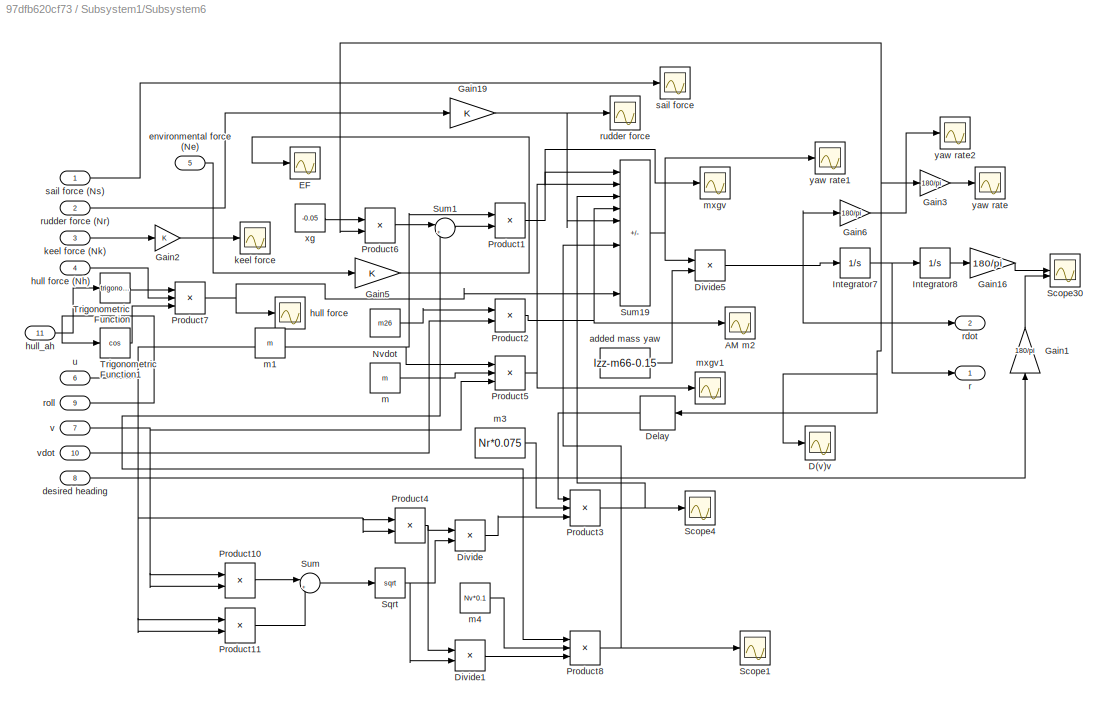
BLOCK [SubSystem] Subsystem1/Subsystem6
BLOCK [Scope] Subsystem1/Subsystem6/AM m2
  Floating = off
  NumInputPorts = 1
  ScopeSpecificationString = Simulink.scopes.TimeScopeBlockCfg('CurrentConfiguration', extmgr.ConfigurationSet(extmgr.Configuration('Core','General UI',true),extmgr.Configuration('Core','Source UI',true),extmgr.Configuration('Sources','WiredSimulink',true,'DataLoggingVariableName','ScopeData8'),extmgr.Configuration('Visuals','Time Domain',true,'SerializedDisplays',{struct('MinYLimReal','-1.59789','MaxYLimReal','1.46138','YLab...<+1456ch>
BLOCK [Scope] Subsystem1/Subsystem6/D(v)v
  Floating = off
  NumInputPorts = 1
  ScopeSpecificationString = Simulink.scopes.TimeScopeBlockCfg('CurrentConfiguration', extmgr.ConfigurationSet(extmgr.Configuration('Core','General UI',true),extmgr.Configuration('Core','Source UI',true),extmgr.Configuration('Sources','WiredSimulink',true,'DataLoggingVariableName','ScopeData1'),extmgr.Configuration('Visuals','Time Domain',true,'SerializedDisplays',{struct('MinYLimReal','-0.50894','MaxYLimReal','0.52304','YLab...<+1430ch>
BLOCK [Delay] Subsystem1/Subsystem6/Delay
  DelayLength = 1
  InitialCondition = 0
  InputPortMap = u0
  NameLocation = top
BLOCK [Product] Subsystem1/Subsystem6/Divide
  Inputs = */
BLOCK [Product] Subsystem1/Subsystem6/Divide1
  Inputs = */
BLOCK [Product] Subsystem1/Subsystem6/Divide5
  Inputs = */
BLOCK [Scope] Subsystem1/Subsystem6/EF
  Floating = off
  NumInputPorts = 1
  ScopeSpecificationString = Simulink.scopes.TimeScopeBlockCfg('CurrentConfiguration', extmgr.ConfigurationSet(extmgr.Configuration('Core','General UI',true),extmgr.Configuration('Core','Source UI',true),extmgr.Configuration('Sources','WiredSimulink',true,'DataLoggingVariableName','ScopeData6'),extmgr.Configuration('Visuals','Time Domain',true,'SerializedDisplays',{struct('MinYLimReal','-0.3846','MaxYLimReal','0.07241','YLabe...<+1449ch>
BLOCK [Gain] Subsystem1/Subsystem6/Gain1
  Gain = 180/pi
  NameLocation = right
BLOCK [Gain] Subsystem1/Subsystem6/Gain16
  Gain = 180/pi
BLOCK [Gain] Subsystem1/Subsystem6/Gain19
BLOCK [Gain] Subsystem1/Subsystem6/Gain2
BLOCK [Gain] Subsystem1/Subsystem6/Gain3
  Gain = 180/pi
BLOCK [Gain] Subsystem1/Subsystem6/Gain5
BLOCK [Gain] Subsystem1/Subsystem6/Gain6
  Gain = 180/pi
BLOCK [Integrator] Subsystem1/Subsystem6/Integrator7
BLOCK [Integrator] Subsystem1/Subsystem6/Integrator8
BLOCK [Constant] Subsystem1/Subsystem6/Nvdot
  NameLocation = left
  Value = m26
BLOCK [Product] Subsystem1/Subsystem6/Product1
BLOCK [Product] Subsystem1/Subsystem6/Product10
BLOCK [Product] Subsystem1/Subsystem6/Product11
BLOCK [Product] Subsystem1/Subsystem6/Product2
BLOCK [Product] Subsystem1/Subsystem6/Product3
  Inputs = 3
BLOCK [Product] Subsystem1/Subsystem6/Product4
BLOCK [Product] Subsystem1/Subsystem6/Product5
  Inputs = 3
BLOCK [Product] Subsystem1/Subsystem6/Product6
BLOCK [Product] Subsystem1/Subsystem6/Product7
  Inputs = 3
BLOCK [Product] Subsystem1/Subsystem6/Product8
  Inputs = 3
BLOCK [Scope] Subsystem1/Subsystem6/Scope1
  Floating = off
  NumInputPorts = 1
  ScopeSpecificationString = Simulink.scopes.TimeScopeBlockCfg('CurrentConfiguration', extmgr.ConfigurationSet(extmgr.Configuration('Core','General UI',true,'FigureColor',[1 1 1]),extmgr.Configuration('Core','Source UI',true),extmgr.Configuration('Sources','WiredSimulink',true,'DataLoggingVariableName','ScopeData2'),extmgr.Configuration('Visuals','Time Domain',true,'SerializedDisplays',{struct('MinYLimReal','-0.13802','MaxYLi...<+1695ch>
BLOCK [Scope] Subsystem1/Subsystem6/Scope30
  Floating = off
  NumInputPorts = 2
  ScopeSpecificationString = Simulink.scopes.TimeScopeBlockCfg('CurrentConfiguration', extmgr.ConfigurationSet(extmgr.Configuration('Core','General UI',true,'FigureColor',[1 1 1]),extmgr.Configuration('Core','Source UI',true),extmgr.Configuration('Sources','WiredSimulink',true,'DataLoggingVariableName','ScopeData55'),extmgr.Configuration('Visuals','Time Domain',true,'SerializedDisplays',{struct('MinYLimReal','-65.80602','MaxY...<+1707ch>
BLOCK [Scope] Subsystem1/Subsystem6/Scope4
  Floating = off
  NumInputPorts = 1
  ScopeSpecificationString = Simulink.scopes.TimeScopeBlockCfg('CurrentConfiguration', extmgr.ConfigurationSet(extmgr.Configuration('Core','General UI',true,'FigureColor',[1 1 1]),extmgr.Configuration('Core','Source UI',true),extmgr.Configuration('Sources','WiredSimulink',true,'DataLoggingVariableName','ScopeData2'),extmgr.Configuration('Visuals','Time Domain',true,'SerializedDisplays',{struct('MinYLimReal','-1.09137','MaxYLi...<+1676ch>
BLOCK [Sqrt] Subsystem1/Subsystem6/Sqrt
BLOCK [Sum] Subsystem1/Subsystem6/Sum
  Inputs = |++
BLOCK [Sum] Subsystem1/Subsystem6/Sum1
  Inputs = |++
BLOCK [Sum] Subsystem1/Subsystem6/Sum19
  IconShape = rectangular
  Inputs = |-+--++++++-
BLOCK [Trigonometry] Subsystem1/Subsystem6/Trigonometric Function
BLOCK [Trigonometry] Subsystem1/Subsystem6/Trigonometric Function1
  Operator = cos
BLOCK [Constant] Subsystem1/Subsystem6/added mass yaw
  NameLocation = top
  Value = Izz-m66-0.15
  VectorParams1D = off
BLOCK [Inport] Subsystem1/Subsystem6/desired heading
  NameLocation = left
  Port = 8
BLOCK [Inport] Subsystem1/Subsystem6/environmental force (Ne)
  NameLocation = left
  Port = 5
BLOCK [Scope] Subsystem1/Subsystem6/hull force
  Floating = off
  NumInputPorts = 1
  ScopeSpecificationString = Simulink.scopes.TimeScopeBlockCfg('CurrentConfiguration', extmgr.ConfigurationSet(extmgr.Configuration('Core','General UI',true),extmgr.Configuration('Core','Source UI',true),extmgr.Configuration('Sources','WiredSimulink',true,'DataLoggingVariableName','ScopeData6'),extmgr.Configuration('Visuals','Time Domain',true,'SerializedDisplays',{struct('MinYLimReal','-0.00846','MaxYLimReal','0.01238','YLab...<+1510ch>
BLOCK [Inport] Subsystem1/Subsystem6/hull force (Nh)
  NameLocation = left
  Port = 4
BLOCK [Inport] Subsystem1/Subsystem6/hull_ah
  NameLocation = left
  Port = 11
BLOCK [Scope] Subsystem1/Subsystem6/keel force
  Floating = off
  NumInputPorts = 1
  ScopeSpecificationString = Simulink.scopes.TimeScopeBlockCfg('CurrentConfiguration', extmgr.ConfigurationSet(extmgr.Configuration('Core','General UI',true),extmgr.Configuration('Core','Source UI',true),extmgr.Configuration('Sources','WiredSimulink',true,'DataLoggingVariableName','ScopeData4'),extmgr.Configuration('Visuals','Time Domain',true,'SerializedDisplays',{struct('MinYLimReal','-1.00000','MaxYLimReal','1.00000','YLab...<+1453ch>
BLOCK [Inport] Subsystem1/Subsystem6/keel force (Nk)
  NameLocation = left
  Port = 3
BLOCK [Constant] Subsystem1/Subsystem6/m
  NameLocation = left
  Value = m
BLOCK [Constant] Subsystem1/Subsystem6/m1
  NameLocation = left
  Value = m
BLOCK [Constant] Subsystem1/Subsystem6/m3
  NameLocation = top
  Value = Nr*0.075
BLOCK [Constant] Subsystem1/Subsystem6/m4
  NameLocation = top
  Value = Nv*0.1
BLOCK [Scope] Subsystem1/Subsystem6/mxgv
  Floating = off
  NumInputPorts = 1
  ScopeSpecificationString = Simulink.scopes.TimeScopeBlockCfg('CurrentConfiguration', extmgr.ConfigurationSet(extmgr.Configuration('Core','General UI',true),extmgr.Configuration('Core','Source UI',true),extmgr.Configuration('Sources','WiredSimulink',true,'DataLoggingVariableName','ScopeData5'),extmgr.Configuration('Visuals','Time Domain',true,'SerializedDisplays',{struct('MinYLimReal','-0.04441','MaxYLimReal','0.02311','YLab...<+1545ch>
BLOCK [Scope] Subsystem1/Subsystem6/mxgv1
  Floating = off
  NumInputPorts = 1
  ScopeSpecificationString = Simulink.scopes.TimeScopeBlockCfg('CurrentConfiguration', extmgr.ConfigurationSet(extmgr.Configuration('Core','General UI',true),extmgr.Configuration('Core','Source UI',true),extmgr.Configuration('Sources','WiredSimulink',true,'DataLoggingVariableName','ScopeData1'),extmgr.Configuration('Visuals','Time Domain',true,'SerializedDisplays',{struct('MinYLimReal','-0.08991','MaxYLimReal','0.00999','YLab...<+1456ch>
BLOCK [Outport] Subsystem1/Subsystem6/r
  NameLocation = right
BLOCK [Outport] Subsystem1/Subsystem6/rdot
  NameLocation = right
  Port = 2
BLOCK [Inport] Subsystem1/Subsystem6/roll
  NameLocation = left
  Port = 9
BLOCK [Scope] Subsystem1/Subsystem6/rudder force
  Floating = off
  NumInputPorts = 1
  ScopeSpecificationString = Simulink.scopes.TimeScopeBlockCfg('CurrentConfiguration', extmgr.ConfigurationSet(extmgr.Configuration('Core','General UI',true),extmgr.Configuration('Core','Source UI',true),extmgr.Configuration('Sources','WiredSimulink',true,'DataLoggingVariableName','ScopeData3'),extmgr.Configuration('Visuals','Time Domain',true,'SerializedDisplays',{struct('MinYLimReal','-4.87744','MaxYLimReal','4.66403','YLab...<+1419ch>
BLOCK [Inport] Subsystem1/Subsystem6/rudder force (Nr)
  NameLocation = left
  Port = 2
BLOCK [Scope] Subsystem1/Subsystem6/sail force
  Floating = off
  NumInputPorts = 1
  ScopeSpecificationString = Simulink.scopes.TimeScopeBlockCfg('CurrentConfiguration', extmgr.ConfigurationSet(extmgr.Configuration('Core','General UI',true),extmgr.Configuration('Core','Source UI',true),extmgr.Configuration('Sources','WiredSimulink',true,'DataLoggingVariableName','ScopeData1'),extmgr.Configuration('Visuals','Time Domain',true,'SerializedDisplays',{struct('MinYLimReal','-1.00000','MaxYLimReal','1.00000','YLab...<+1428ch>
BLOCK [Inport] Subsystem1/Subsystem6/sail force (Ns)
  NameLocation = left
BLOCK [Inport] Subsystem1/Subsystem6/u
  NameLocation = left
  Port = 6
BLOCK [Inport] Subsystem1/Subsystem6/v
  NameLocation = left
  Port = 7
BLOCK [Inport] Subsystem1/Subsystem6/vdot
  NameLocation = left
  Port = 10
BLOCK [Constant] Subsystem1/Subsystem6/xg
  NameLocation = left
  Value = -0.05
BLOCK [Scope] Subsystem1/Subsystem6/yaw rate
  Floating = off
  NumInputPorts = 1
  ScopeSpecificationString = Simulink.scopes.TimeScopeBlockCfg('CurrentConfiguration', extmgr.ConfigurationSet(extmgr.Configuration('Core','General UI',true),extmgr.Configuration('Core','Source UI',true),extmgr.Configuration('Sources','WiredSimulink',true,'DataLoggingVariableName','ScopeData56'),extmgr.Configuration('Visuals','Time Domain',true,'SerializedDisplays',{struct('MinYLimReal','-2.63581','MaxYLimReal','23.62011','YL...<+1534ch>
BLOCK [Scope] Subsystem1/Subsystem6/yaw rate1
  Floating = off
  NumInputPorts = 1
  ScopeSpecificationString = Simulink.scopes.TimeScopeBlockCfg('CurrentConfiguration', extmgr.ConfigurationSet(extmgr.Configuration('Core','General UI',true),extmgr.Configuration('Core','Source UI',true),extmgr.Configuration('Sources','WiredSimulink',true,'DataLoggingVariableName','ScopeData2'),extmgr.Configuration('Visuals','Time Domain',true,'SerializedDisplays',{struct('MinYLimReal','-1592.78488','MaxYLimReal','1304.02899'...<+1582ch>
BLOCK [Scope] Subsystem1/Subsystem6/yaw rate2
  Floating = off
  NumInputPorts = 1
  ScopeSpecificationString = Simulink.scopes.TimeScopeBlockCfg('CurrentConfiguration', extmgr.ConfigurationSet(extmgr.Configuration('Core','General UI',true),extmgr.Configuration('Core','Source UI',true),extmgr.Configuration('Sources','WiredSimulink',true,'DataLoggingVariableName','ScopeData1'),extmgr.Configuration('Visuals','Time Domain',true,'SerializedDisplays',{struct('MinYLimReal','-45.11647','MaxYLimReal','273.83533','Y...<+1574ch>
BLOCK [SubSystem] Subsystem1/Subsystem7
BLOCK [Clock] Subsystem1/Subsystem7/Clock
BLOCK [Delay] Subsystem1/Subsystem7/Delay
  DelayLength = 1
  InitialCondition = 0
  InputPortMap = u0
  NameLocation = top
BLOCK [Delay] Subsystem1/Subsystem7/Delay1
  DelayLength = 1
  InitialCondition = 0
  InputPortMap = u0
BLOCK [Delay] Subsystem1/Subsystem7/Delay2
  DelayLength = 1
  InitialCondition = 0
  InputPortMap = u0
  NameLocation = top
BLOCK [Delay] Subsystem1/Subsystem7/Delay4
  DelayLength = 1
  InitialCondition = 0
  InputPortMap = u0
BLOCK [Delay] Subsystem1/Subsystem7/Delay5
  DelayLength = 1
  InitialCondition = 0
  InputPortMap = u0
BLOCK [Gain] Subsystem1/Subsystem7/Gain1
  Gain = 180/pi
BLOCK [Gain] Subsystem1/Subsystem7/Gain2
  Gain = 180/pi
  NameLocation = left
BLOCK [Gain] Subsystem1/Subsystem7/Gain3
  Gain = -0.5*180/pi
BLOCK [Gain] Subsystem1/Subsystem7/Gain4
  Gain = 0.5
BLOCK [Gain] Subsystem1/Subsystem7/Gain5
  Gain = pi/180
BLOCK [Gain] Subsystem1/Subsystem7/I1
  Gain = 0.25
BLOCK [Integrator] Subsystem1/Subsystem7/Integrator1
BLOCK [SubSystem] Subsystem1/Subsystem7/MATLAB Function
  ErrorFcn = Stateflow.Translate.translate
  LibrarySourceBlock = simulink/User-Defined\nFunctions/MATLAB Function
  PermitHierarchicalResolution = ExplicitOnly
  SFBlockType = MATLAB Function
  TreatAsAtomicUnit = on
BLOCK [Demux] Subsystem1/Subsystem7/MATLAB Function/ Demux 
  Outputs = 1
BLOCK [S-Function] Subsystem1/Subsystem7/MATLAB Function/ SFunction 
  EnableBusSupport = on
  FunctionName = sf_sfun
  PortCounts = [3 2]
  SFcnIsStateOwnerBlock = off
  SFunctionDeploymentMode = off
  Tag = Stateflow S-Function 2
BLOCK [Terminator] Subsystem1/Subsystem7/MATLAB Function/ Terminator 
BLOCK [Inport] Subsystem1/Subsystem7/MATLAB Function/max
  Port = 2
BLOCK [Inport] Subsystem1/Subsystem7/MATLAB Function/min
  Port = 3
BLOCK [Inport] Subsystem1/Subsystem7/MATLAB Function/u
BLOCK [Outport] Subsystem1/Subsystem7/MATLAB Function/y
BLOCK [SubSystem] Subsystem1/Subsystem7/MATLAB Function1
  ErrorFcn = Stateflow.Translate.translate
  LibrarySourceBlock = simulink/User-Defined\nFunctions/MATLAB Function
  PermitHierarchicalResolution = ExplicitOnly
  SFBlockType = MATLAB Function
  TreatAsAtomicUnit = on
BLOCK [Demux] Subsystem1/Subsystem7/MATLAB Function1/ Demux 
  Outputs = 1
BLOCK [S-Function] Subsystem1/Subsystem7/MATLAB Function1/ SFunction 
  EnableBusSupport = on
  FunctionName = sf_sfun
  PortCounts = [5 4]
  SFcnIsStateOwnerBlock = off
  SFunctionDeploymentMode = off
  Tag = Stateflow S-Function 12
BLOCK [Terminator] Subsystem1/Subsystem7/MATLAB Function1/ Terminator 
BLOCK [Inport] Subsystem1/Subsystem7/MATLAB Function1/apparent_wind_angle
  Port = 5
BLOCK [Inport] Subsystem1/Subsystem7/MATLAB Function1/current_state
  Port = 2
BLOCK [Outport] Subsystem1/Subsystem7/MATLAB Function1/next_state
  Port = 2
BLOCK [Inport] Subsystem1/Subsystem7/MATLAB Function1/roll_angle
BLOCK [Outport] Subsystem1/Subsystem7/MATLAB Function1/sail_angle
BLOCK [Inport] Subsystem1/Subsystem7/MATLAB Function1/t
  Port = 3
BLOCK [Inport] Subsystem1/Subsystem7/MATLAB Function1/t_prev
  Port = 4
BLOCK [Outport] Subsystem1/Subsystem7/MATLAB Function1/t_state_change
  Port = 3
BLOCK [SubSystem] Subsystem1/Subsystem7/MATLAB Function2
  ErrorFcn = Stateflow.Translate.translate
  LibrarySourceBlock = simulink/User-Defined\nFunctions/MATLAB Function
  PermitHierarchicalResolution = ExplicitOnly
  SFBlockType = MATLAB Function
  TreatAsAtomicUnit = on
BLOCK [Demux] Subsystem1/Subsystem7/MATLAB Function2/ Demux 
  Outputs = 1
BLOCK [S-Function] Subsystem1/Subsystem7/MATLAB Function2/ SFunction 
  EnableBusSupport = on
  FunctionName = sf_sfun
  PortCounts = [2 2]
  SFcnIsStateOwnerBlock = off
  SFunctionDeploymentMode = off
  Tag = Stateflow S-Function 35
BLOCK [Terminator] Subsystem1/Subsystem7/MATLAB Function2/ Terminator 
BLOCK [Inport] Subsystem1/Subsystem7/MATLAB Function2/awa
  Port = 2
BLOCK [Inport] Subsystem1/Subsystem7/MATLAB Function2/delta_s
BLOCK [Outport] Subsystem1/Subsystem7/MATLAB Function2/y
BLOCK [SubSystem] Subsystem1/Subsystem7/MATLAB Function3
  ErrorFcn = Stateflow.Translate.translate
  LibrarySourceBlock = simulink/User-Defined\nFunctions/MATLAB Function
  PermitHierarchicalResolution = ExplicitOnly
  SFBlockType = MATLAB Function
  TreatAsAtomicUnit = on
BLOCK [Demux] Subsystem1/Subsystem7/MATLAB Function3/ Demux 
  Outputs = 1
BLOCK [S-Function] Subsystem1/Subsystem7/MATLAB Function3/ SFunction 
  EnableBusSupport = on
  FunctionName = sf_sfun
  PortCounts = [1 2]
  SFcnIsStateOwnerBlock = off
  SFunctionDeploymentMode = off
  Tag = Stateflow S-Function 36
BLOCK [Terminator] Subsystem1/Subsystem7/MATLAB Function3/ Terminator 
BLOCK [Inport] Subsystem1/Subsystem7/MATLAB Function3/awa
BLOCK [Outport] Subsystem1/Subsystem7/MATLAB Function3/y
BLOCK [Scope] Subsystem1/Subsystem7/Scope1
  Floating = off
  NumInputPorts = 1
  ScopeSpecificationString = Simulink.scopes.TimeScopeBlockCfg('CurrentConfiguration', extmgr.ConfigurationSet(extmgr.Configuration('Core','General UI',true),extmgr.Configuration('Core','Source UI',true),extmgr.Configuration('Sources','WiredSimulink',true,'DataLoggingVariableName','ScopeData1'),extmgr.Configuration('Visuals','Time Domain',true,'SerializedDisplays',{struct('MinYLimReal','-0.17453','MaxYLimReal','1.5708','YLabe...<+1561ch>
BLOCK [Scope] Subsystem1/Subsystem7/Scope10
  Floating = off
  NumInputPorts = 1
  ScopeSpecificationString = Simulink.scopes.TimeScopeBlockCfg('CurrentConfiguration', extmgr.ConfigurationSet(extmgr.Configuration('Core','General UI',true),extmgr.Configuration('Core','Source UI',true),extmgr.Configuration('Sources','WiredSimulink',true,'DataLoggingVariableName','ScopeData5'),extmgr.Configuration('Visuals','Time Domain',true,'SerializedDisplays',{struct('MinYLimReal','2.2961','MaxYLimReal','59.29428','YLabe...<+1563ch>
BLOCK [Scope] Subsystem1/Subsystem7/Scope11
  Floating = off
  NumInputPorts = 1
  ScopeSpecificationString = Simulink.scopes.TimeScopeBlockCfg('CurrentConfiguration', extmgr.ConfigurationSet(extmgr.Configuration('Core','General UI',true),extmgr.Configuration('Core','Source UI',true),extmgr.Configuration('Sources','WiredSimulink',true,'DataLoggingVariableName','ScopeData6'),extmgr.Configuration('Visuals','Time Domain',true,'SerializedDisplays',{struct('MinYLimReal','-19.95722','MaxYLimReal','2.49709','YLa...<+1562ch>
BLOCK [Scope] Subsystem1/Subsystem7/Scope2
  Floating = off
  NumInputPorts = 1
  ScopeSpecificationString = Simulink.scopes.TimeScopeBlockCfg('CurrentConfiguration', extmgr.ConfigurationSet(extmgr.Configuration('Core','General UI',true),extmgr.Configuration('Core','Source UI',true),extmgr.Configuration('Sources','WiredSimulink',true,'DataLoggingVariableName','ScopeData1'),extmgr.Configuration('Visuals','Time Domain',true,'SerializedDisplays',{struct('MinYLimReal','-0.25','MaxYLimReal','2.25','YLabelReal...<+1530ch>
BLOCK [Scope] Subsystem1/Subsystem7/Scope3
  Floating = off
  NumInputPorts = 1
  ScopeSpecificationString = Simulink.scopes.TimeScopeBlockCfg('CurrentConfiguration', extmgr.ConfigurationSet(extmgr.Configuration('Core','General UI',true),extmgr.Configuration('Core','Source UI',true),extmgr.Configuration('Sources','WiredSimulink',true,'DataLoggingVariableName','ScopeData2'),extmgr.Configuration('Visuals','Time Domain',true,'SerializedDisplays',{struct('MinYLimReal','-6.0168','MaxYLimReal','54.15124','YLab...<+1550ch>
BLOCK [Scope] Subsystem1/Subsystem7/Scope4
  Floating = off
  NumInputPorts = 2
  ScopeSpecificationString = Simulink.scopes.TimeScopeBlockCfg('CurrentConfiguration', extmgr.ConfigurationSet(extmgr.Configuration('Core','General UI',true),extmgr.Configuration('Core','Source UI',true),extmgr.Configuration('Sources','WiredSimulink',true,'DataLoggingVariableName','ScopeData3'),extmgr.Configuration('Visuals','Time Domain',true,'SerializedDisplays',{struct('MinYLimReal','-1.25','MaxYLimReal','11.25','YLabelRea...<+1432ch>
BLOCK [Scope] Subsystem1/Subsystem7/Scope5
  Floating = off
  NumInputPorts = 1
  ScopeSpecificationString = Simulink.scopes.TimeScopeBlockCfg('CurrentConfiguration', extmgr.ConfigurationSet(extmgr.Configuration('Core','General UI',true),extmgr.Configuration('Core','Source UI',true),extmgr.Configuration('Sources','WiredSimulink',true,'DataLoggingVariableName','ScopeData1'),extmgr.Configuration('Visuals','Time Domain',true,'SerializedDisplays',{struct('MinYLimReal','-6.0168','MaxYLimReal','54.15124','YLab...<+1528ch>
BLOCK [Scope] Subsystem1/Subsystem7/Scope6
  Floating = off
  NumInputPorts = 1
  ScopeSpecificationString = Simulink.scopes.TimeScopeBlockCfg('CurrentConfiguration', extmgr.ConfigurationSet(extmgr.Configuration('Core','General UI',true),extmgr.Configuration('Core','Source UI',true),extmgr.Configuration('Sources','WiredSimulink',true,'DataLoggingVariableName','ScopeData2'),extmgr.Configuration('Visuals','Time Domain',true,'SerializedDisplays',{struct('MinYLimReal','-1.4063','MaxYLimReal','0.15626','YLabe...<+1562ch>
BLOCK [Scope] Subsystem1/Subsystem7/Scope7
  Floating = off
  NumInputPorts = 1
  ScopeSpecificationString = Simulink.scopes.TimeScopeBlockCfg('CurrentConfiguration', extmgr.ConfigurationSet(extmgr.Configuration('Core','General UI',true),extmgr.Configuration('Core','Source UI',true),extmgr.Configuration('Sources','WiredSimulink',true,'DataLoggingVariableName','ScopeData1'),extmgr.Configuration('Visuals','Time Domain',true,'SerializedDisplays',{struct('MinYLimReal','-11.32763','MaxYLimReal','40.97661','YL...<+1578ch>
BLOCK [Scope] Subsystem1/Subsystem7/Scope8
  Floating = off
  NumInputPorts = 1
  ScopeSpecificationString = Simulink.scopes.TimeScopeBlockCfg('CurrentConfiguration', extmgr.ConfigurationSet(extmgr.Configuration('Core','General UI',true),extmgr.Configuration('Core','Source UI',true),extmgr.Configuration('Sources','WiredSimulink',true,'DataLoggingVariableName','ScopeData3'),extmgr.Configuration('Visuals','Time Domain',true,'SerializedDisplays',{struct('MinYLimReal','-22.74662','MaxYLimReal','11.41629','YL...<+1566ch>
BLOCK [Scope] Subsystem1/Subsystem7/Scope9
  Floating = off
  NumInputPorts = 1
  ScopeSpecificationString = Simulink.scopes.TimeScopeBlockCfg('CurrentConfiguration', extmgr.ConfigurationSet(extmgr.Configuration('Core','General UI',true),extmgr.Configuration('Core','Source UI',true),extmgr.Configuration('Sources','WiredSimulink',true,'DataLoggingVariableName','ScopeData4'),extmgr.Configuration('Visuals','Time Domain',true,'SerializedDisplays',{struct('MinYLimReal','-23.14291','MaxYLimReal','11.46032','YL...<+1567ch>
BLOCK [Step] Subsystem1/Subsystem7/Step1
  After = 80/180*pi
  SampleTime = 0
  Time = 0
BLOCK [Step] Subsystem1/Subsystem7/Step2
  After = -35/180*pi
  SampleTime = 0
  Time = 15
BLOCK [Step] Subsystem1/Subsystem7/Step3
  After = -30/180*pi
  SampleTime = 0
  Time = 30
BLOCK [Step] Subsystem1/Subsystem7/Step4
  After = -pi/9
  SampleTime = 0
  Time = 30
BLOCK [Step] Subsystem1/Subsystem7/Step5
  After = -pi/18
  SampleTime = 0
  Time = 40
BLOCK [Sum] Subsystem1/Subsystem7/Sum
  Inputs = |++
BLOCK [Sum] Subsystem1/Subsystem7/Sum1
  Inputs = |+-
BLOCK [Sum] Subsystem1/Subsystem7/Sum2
  Inputs = |--
BLOCK [Sum] Subsystem1/Subsystem7/Sum3
  Inputs = |+++++
BLOCK [ToWorkspace] Subsystem1/Subsystem7/To Workspace1
  FixptAsFi = on
  MaxDataPoints = inf
  SampleTime = 0.01
  SaveFormat = Timeseries
  VariableName = rollprotection
BLOCK [ToWorkspace] Subsystem1/Subsystem7/To Workspace31
  FixptAsFi = on
  MaxDataPoints = inf
  SampleTime = 0.01
  SaveFormat = Timeseries
  VariableName = apparentSail
BLOCK [Reference] Subsystem1/Subsystem7/Varying Lowpass Filter1  REF=cstblocks/Linear Parameter Varying/Varying Lowpass Filter
  SourceBlock = cstblocks/Linear Parameter Varying/Varying Lowpass Filter
  SourceType = Varying Lowpass Filter
BLOCK [Inport] Subsystem1/Subsystem7/apparent_wind_angle
  NameLocation = left
BLOCK [Constant] Subsystem1/Subsystem7/fr1
  NameLocation = top
  Value = 20
BLOCK [Constant] Subsystem1/Subsystem7/fr3
  NameLocation = top
  Value = 4
BLOCK [Inport] Subsystem1/Subsystem7/max sail angle
  NameLocation = left
  Port = 2
BLOCK [Inport] Subsystem1/Subsystem7/min sail angle
  NameLocation = left
  Port = 3
BLOCK [Inport] Subsystem1/Subsystem7/roll_angle
  NameLocation = left
  Port = 4
BLOCK [Outport] Subsystem1/Subsystem7/sail angle
  NameLocation = right
BLOCK [SubSystem] Subsystem1/Subsystem8
BLOCK [Gain] Subsystem1/Subsystem8/D
  Gain = 0.4
BLOCK [Gain] Subsystem1/Subsystem8/D1
  Gain = 0
BLOCK [Gain] Subsystem1/Subsystem8/D2
  Gain = 180/pi
BLOCK [Derivative] Subsystem1/Subsystem8/Derivative
BLOCK [Derivative] Subsystem1/Subsystem8/Derivative1
BLOCK [Outport] Subsystem1/Subsystem8/Desired Heading
  Port = 2
BLOCK [Gain] Subsystem1/Subsystem8/Gain1
  NameLocation = right
BLOCK [Gain] Subsystem1/Subsystem8/Gain12
  Gain = -1
  NameLocation = right
BLOCK [Gain] Subsystem1/Subsystem8/I
  Gain = 0.01
BLOCK [Gain] Subsystem1/Subsystem8/I1
  Gain = 0.332
BLOCK [Integrator] Subsystem1/Subsystem8/Integrator1
BLOCK [Integrator] Subsystem1/Subsystem8/Integrator5
BLOCK [SubSystem] Subsystem1/Subsystem8/MATLAB Function
  ErrorFcn = Stateflow.Translate.translate
  LibrarySourceBlock = simulink/User-Defined\nFunctions/MATLAB Function
  PermitHierarchicalResolution = ExplicitOnly
  SFBlockType = MATLAB Function
  TreatAsAtomicUnit = on
BLOCK [Demux] Subsystem1/Subsystem8/MATLAB Function/ Demux 
  Outputs = 1
BLOCK [S-Function] Subsystem1/Subsystem8/MATLAB Function/ SFunction 
  EnableBusSupport = on
  FunctionName = sf_sfun
  PortCounts = [2 2]
  SFcnIsStateOwnerBlock = off
  SFunctionDeploymentMode = off
  Tag = Stateflow S-Function 1
BLOCK [Terminator] Subsystem1/Subsystem8/MATLAB Function/ Terminator 
BLOCK [Inport] Subsystem1/Subsystem8/MATLAB Function/max
  Port = 2
BLOCK [Inport] Subsystem1/Subsystem8/MATLAB Function/u
BLOCK [Outport] Subsystem1/Subsystem8/MATLAB Function/y
BLOCK [SubSystem] Subsystem1/Subsystem8/MATLAB Function1
  ErrorFcn = Stateflow.Translate.translate
  LibrarySourceBlock = simulink/User-Defined\nFunctions/MATLAB Function
  PermitHierarchicalResolution = ExplicitOnly
  SFBlockType = MATLAB Function
  TreatAsAtomicUnit = on
BLOCK [Demux] Subsystem1/Subsystem8/MATLAB Function1/ Demux 
  Outputs = 1
BLOCK [S-Function] Subsystem1/Subsystem8/MATLAB Function1/ SFunction 
  EnableBusSupport = on
  FunctionName = sf_sfun
  PortCounts = [2 2]
  SFcnIsStateOwnerBlock = off
  SFunctionDeploymentMode = off
  Tag = Stateflow S-Function 3
BLOCK [Terminator] Subsystem1/Subsystem8/MATLAB Function1/ Terminator 
BLOCK [Inport] Subsystem1/Subsystem8/MATLAB Function1/max
  Port = 2
BLOCK [Inport] Subsystem1/Subsystem8/MATLAB Function1/u
BLOCK [Outport] Subsystem1/Subsystem8/MATLAB Function1/y
BLOCK [SubSystem] Subsystem1/Subsystem8/MATLAB Function19
  ErrorFcn = Stateflow.Translate.translate
  LibrarySourceBlock = simulink/User-Defined\nFunctions/MATLAB Function
  PermitHierarchicalResolution = ExplicitOnly
  SFBlockType = MATLAB Function
  TreatAsAtomicUnit = on
BLOCK [Demux] Subsystem1/Subsystem8/MATLAB Function19/ Demux 
  Outputs = 1
BLOCK [S-Function] Subsystem1/Subsystem8/MATLAB Function19/ SFunction 
  EnableBusSupport = on
  FunctionName = sf_sfun
  PortCounts = [2 3]
  SFcnIsStateOwnerBlock = off
  SFunctionDeploymentMode = off
  Tag = Stateflow S-Function 10
BLOCK [Terminator] Subsystem1/Subsystem8/MATLAB Function19/ Terminator 
BLOCK [Inport] Subsystem1/Subsystem8/MATLAB Function19/u
  Port = 2
BLOCK [Inport] Subsystem1/Subsystem8/MATLAB Function19/v
BLOCK [Outport] Subsystem1/Subsystem8/MATLAB Function19/y
BLOCK [Outport] Subsystem1/Subsystem8/MATLAB Function19/y1
  Port = 2
BLOCK [Gain] Subsystem1/Subsystem8/P
BLOCK [Gain] Subsystem1/Subsystem8/P1
BLOCK [Gain] Subsystem1/Subsystem8/P2
  Gain = 0.667
BLOCK [Scope] Subsystem1/Subsystem8/Scope1
  Floating = off
  NumInputPorts = 2
  ScopeSpecificationString = Simulink.scopes.TimeScopeBlockCfg('CurrentConfiguration', extmgr.ConfigurationSet(extmgr.Configuration('Core','General UI',true),extmgr.Configuration('Core','Source UI',true),extmgr.Configuration('Sources','WiredSimulink',true,'DataLoggingVariableName','ScopeData60'),extmgr.Configuration('Visuals','Time Domain',true,'SerializedDisplays',{struct('MinYLimReal','-0.6545','MaxYLimReal','0.6545','YLabe...<+1443ch>
BLOCK [Scope] Subsystem1/Subsystem8/Scope10
  Floating = off
  NameLocation = right
  NumInputPorts = 1
  ScopeSpecificationString = Simulink.scopes.TimeScopeBlockCfg('CurrentConfiguration', extmgr.ConfigurationSet(extmgr.Configuration('Core','General UI',true),extmgr.Configuration('Core','Source UI',true),extmgr.Configuration('Sources','WiredSimulink',true,'DataLoggingVariableName','ScopeData57'),extmgr.Configuration('Visuals','Time Domain',true,'SerializedDisplays',{struct('MinYLimReal','-1.2505','MaxYLimReal','1.05802','YLab...<+1413ch>
BLOCK [Scope] Subsystem1/Subsystem8/Scope2
  Floating = off
  NumInputPorts = 1
  ScopeSpecificationString = Simulink.scopes.TimeScopeBlockCfg('CurrentConfiguration', extmgr.ConfigurationSet(extmgr.Configuration('Core','General UI',true),extmgr.Configuration('Core','Source UI',true),extmgr.Configuration('Sources','WiredSimulink',true,'DataLoggingVariableName','ScopeData6'),extmgr.Configuration('Visuals','Time Domain',true,'SerializedDisplays',{struct('MinYLimReal','-0.06541','MaxYLimReal','0.58871','YLab...<+1517ch>
BLOCK [Scope] Subsystem1/Subsystem8/Scope28
  Floating = off
  NumInputPorts = 1
  ScopeSpecificationString = Simulink.scopes.TimeScopeBlockCfg('CurrentConfiguration', extmgr.ConfigurationSet(extmgr.Configuration('Core','General UI',true),extmgr.Configuration('Core','Source UI',true),extmgr.Configuration('Sources','WiredSimulink',true,'DataLoggingVariableName','ScopeData58'),extmgr.Configuration('Visuals','Time Domain',true,'SerializedDisplays',{struct('MinYLimReal','-1.00000','MaxYLimReal','1.00000','YLa...<+1522ch>
BLOCK [Scope] Subsystem1/Subsystem8/Scope29
  Floating = off
  NumInputPorts = 1
  ScopeSpecificationString = Simulink.scopes.TimeScopeBlockCfg('CurrentConfiguration', extmgr.ConfigurationSet(extmgr.Configuration('Core','General UI',true),extmgr.Configuration('Core','Source UI',true),extmgr.Configuration('Sources','WiredSimulink',true,'DataLoggingVariableName','ScopeData59'),extmgr.Configuration('Visuals','Time Domain',true,'SerializedDisplays',{struct('MinYLimReal','-0.07875','MaxYLimReal','0.00875','YLa...<+1523ch>
BLOCK [Scope] Subsystem1/Subsystem8/Scope3
  Floating = off
  NumInputPorts = 1
  ScopeSpecificationString = Simulink.scopes.TimeScopeBlockCfg('CurrentConfiguration', extmgr.ConfigurationSet(extmgr.Configuration('Core','General UI',true,'FigureColor',[1 1 1]),extmgr.Configuration('Core','Source UI',true),extmgr.Configuration('Sources','WiredSimulink',true,'DataLoggingVariableName','ScopeData7'),extmgr.Configuration('Visuals','Time Domain',true,'SerializedDisplays',{struct('MinYLimReal','-1.07802','MaxYLi...<+1551ch>
BLOCK [Scope] Subsystem1/Subsystem8/Scope4
  Floating = off
  NameLocation = right
  NumInputPorts = 1
  ScopeSpecificationString = Simulink.scopes.TimeScopeBlockCfg('CurrentConfiguration', extmgr.ConfigurationSet(extmgr.Configuration('Core','General UI',true),extmgr.Configuration('Core','Source UI',true),extmgr.Configuration('Sources','WiredSimulink',true,'DataLoggingVariableName','ScopeData1'),extmgr.Configuration('Visuals','Time Domain',true,'SerializedDisplays',{struct('MinYLimReal','-0.09892','MaxYLimReal','0.59242','YLab...<+1506ch>
BLOCK [Scope] Subsystem1/Subsystem8/Scope5
  Floating = off
  NameLocation = right
  NumInputPorts = 1
  ScopeSpecificationString = Simulink.scopes.TimeScopeBlockCfg('CurrentConfiguration', extmgr.ConfigurationSet(extmgr.Configuration('Core','General UI',true),extmgr.Configuration('Core','Source UI',true),extmgr.Configuration('Sources','WiredSimulink',true,'DataLoggingVariableName','ScopeData2'),extmgr.Configuration('Visuals','Time Domain',true,'SerializedDisplays',{struct('MinYLimReal','-0.10918','MaxYLimReal','0.59248','YLab...<+1506ch>
BLOCK [Scope] Subsystem1/Subsystem8/Scope6
  Floating = off
  NameLocation = right
  NumInputPorts = 1
  ScopeSpecificationString = Simulink.scopes.TimeScopeBlockCfg('CurrentConfiguration', extmgr.ConfigurationSet(extmgr.Configuration('Core','General UI',true),extmgr.Configuration('Core','Source UI',true),extmgr.Configuration('Sources','WiredSimulink',true,'DataLoggingVariableName','ScopeData1'),extmgr.Configuration('Visuals','Time Domain',true,'SerializedDisplays',{struct('MinYLimReal','-0.00775','MaxYLimReal','0.06967','YLab...<+1504ch>
BLOCK [Scope] Subsystem1/Subsystem8/Scope7
  Floating = off
  NameLocation = right
  NumInputPorts = 1
  ScopeSpecificationString = Simulink.scopes.TimeScopeBlockCfg('CurrentConfiguration', extmgr.ConfigurationSet(extmgr.Configuration('Core','General UI',true),extmgr.Configuration('Core','Source UI',true),extmgr.Configuration('Sources','WiredSimulink',true,'DataLoggingVariableName','ScopeData2'),extmgr.Configuration('Visuals','Time Domain',true,'SerializedDisplays',{struct('MinYLimReal','-0.62073','MaxYLimReal','1.33029','YLab...<+1415ch>
BLOCK [Step] Subsystem1/Subsystem8/Step
  After = 0.1945
  SampleTime = 0
  Time = 0.01
BLOCK [Step] Subsystem1/Subsystem8/Step1
  After = 0
  SampleTime = 0
  Time = 5
BLOCK [Sum] Subsystem1/Subsystem8/Sum
  Inputs = |-+-
BLOCK [Sum] Subsystem1/Subsystem8/Sum1
  Inputs = |+++
BLOCK [Sum] Subsystem1/Subsystem8/Sum2
  Inputs = |++
BLOCK [Sum] Subsystem1/Subsystem8/Sum3
  Inputs = |+-
BLOCK [Sum] Subsystem1/Subsystem8/Sum4
  Inputs = |+-
BLOCK [Sum] Subsystem1/Subsystem8/Sum5
  IconShape = rectangular
  Inputs = |+++
BLOCK [Sum] Subsystem1/Subsystem8/Sum6
  Inputs = |+-
BLOCK [ToWorkspace] Subsystem1/Subsystem8/To Workspace
  FixptAsFi = on
  MaxDataPoints = inf
  SampleTime = -1
  SaveFormat = Timeseries
  VariableName = stepN
BLOCK [Reference] Subsystem1/Subsystem8/Varying Lowpass Filter  REF=cstblocks/Linear Parameter Varying/Varying Lowpass Filter
  SourceBlock = cstblocks/Linear Parameter Varying/Varying Lowpass Filter
  SourceType = Varying Lowpass Filter
BLOCK [Reference] Subsystem1/Subsystem8/Varying Lowpass Filter1  REF=cstblocks/Linear Parameter Varying/Varying Lowpass Filter
  SourceBlock = cstblocks/Linear Parameter Varying/Varying Lowpass Filter
  SourceType = Varying Lowpass Filter
BLOCK [Inport] Subsystem1/Subsystem8/desired heading
  NameLocation = left
  Port = 4
BLOCK [Outport] Subsystem1/Subsystem8/desired yaw rate
  Port = 3
BLOCK [Constant] Subsystem1/Subsystem8/fr2
  NameLocation = top
  Value = 12
BLOCK [Inport] Subsystem1/Subsystem8/max rudder angle
  Port = 5
BLOCK [Inport] Subsystem1/Subsystem8/psi
  NameLocation = left
  Port = 3
BLOCK [Inport] Subsystem1/Subsystem8/r
  NameLocation = left
  Port = 6
BLOCK [Outport] Subsystem1/Subsystem8/rudder angle
BLOCK [Constant] Subsystem1/Subsystem8/rudder step
  NameLocation = top
  Value = 0
BLOCK [Inport] Subsystem1/Subsystem8/u
  NameLocation = left
BLOCK [Inport] Subsystem1/Subsystem8/v
  NameLocation = left
  Port = 2
BLOCK [Inport] Subsystem1/Subsystem8/zig zag
  NameLocation = left
  Port = 7
BLOCK [SubSystem] Subsystem1/Subsystem9
BLOCK [Gain] Subsystem1/Subsystem9/Gain
  Gain = -1
BLOCK [Integrator] Subsystem1/Subsystem9/Integrator
BLOCK [Integrator] Subsystem1/Subsystem9/Integrator1
BLOCK [Product] Subsystem1/Subsystem9/Product
BLOCK [Product] Subsystem1/Subsystem9/Product1
BLOCK [Product] Subsystem1/Subsystem9/Product2
BLOCK [Product] Subsystem1/Subsystem9/Product3
  Inputs = 3
BLOCK [Sum] Subsystem1/Subsystem9/Sum
  Inputs = |++
BLOCK [Sum] Subsystem1/Subsystem9/Sum1
  Inputs = |++
BLOCK [Trigonometry] Subsystem1/Subsystem9/Trigonometric Function
  Operator = cos
BLOCK [Trigonometry] Subsystem1/Subsystem9/Trigonometric Function1
BLOCK [Trigonometry] Subsystem1/Subsystem9/Trigonometric Function2
BLOCK [Trigonometry] Subsystem1/Subsystem9/Trigonometric Function3
  Operator = cos
BLOCK [Trigonometry] Subsystem1/Subsystem9/Trigonometric Function4
  Operator = cos
BLOCK [Inport] Subsystem1/Subsystem9/phi
  NameLocation = left
  Port = 3
BLOCK [Inport] Subsystem1/Subsystem9/psi
  NameLocation = left
  Port = 4
BLOCK [Inport] Subsystem1/Subsystem9/u
  NameLocation = left
BLOCK [Inport] Subsystem1/Subsystem9/v
  NameLocation = left
  Port = 2
BLOCK [Outport] Subsystem1/Subsystem9/x
  NameLocation = right
BLOCK [Outport] Subsystem1/Subsystem9/y
  NameLocation = right
  Port = 2
BLOCK [Sum] Subsystem1/Sum
  Inputs = |++
BLOCK [Sum] Subsystem1/Sum1
  Inputs = |+-
  SaturateOnIntegerOverflow = on
BLOCK [Sum] Subsystem1/Sum10
  Inputs = |++
BLOCK [Sum] Subsystem1/Sum11
  Inputs = |+-
BLOCK [Sum] Subsystem1/Sum12
  Inputs = |+-
BLOCK [Sum] Subsystem1/Sum13
  Inputs = |-+-
BLOCK [Sum] Subsystem1/Sum14
  Inputs = |-+-
BLOCK [Sum] Subsystem1/Sum5
  Inputs = |++
BLOCK [Sum] Subsystem1/Sum6
  Inputs = |+-
BLOCK [Sum] Subsystem1/Sum7
  Inputs = |+-
BLOCK [Sum] Subsystem1/Sum8
  Inputs = |++
BLOCK [Sum] Subsystem1/Sum9
  Inputs = |+-
BLOCK [ToFile] Subsystem1/To File
  Filename = sim_step.mat
  SaveFormat = Timeseries
BLOCK [ToWorkspace] Subsystem1/To Workspace1
  FixptAsFi = on
  MaxDataPoints = inf
  SampleTime = 0.01
  SaveFormat = Timeseries
  VariableName = yaw
BLOCK [ToWorkspace] Subsystem1/To Workspace10
  FixptAsFi = on
  MaxDataPoints = inf
  SampleTime = 0.01
  SaveFormat = Timeseries
  VariableName = psid
BLOCK [ToWorkspace] Subsystem1/To Workspace11
  FixptAsFi = on
  MaxDataPoints = inf
  SampleTime = -1
  SaveFormat = Timeseries
  VariableName = awa
BLOCK [ToWorkspace] Subsystem1/To Workspace12
  FixptAsFi = on
  MaxDataPoints = inf
  SampleTime = -1
  SaveFormat = Timeseries
  VariableName = wind
BLOCK [ToWorkspace] Subsystem1/To Workspace13
  FixptAsFi = on
  MaxDataPoints = inf
  SampleTime = -1
  SaveFormat = Timeseries
  VariableName = roll
BLOCK [ToWorkspace] Subsystem1/To Workspace22
  FixptAsFi = on
  MaxDataPoints = inf
  SampleTime = -1
  SaveFormat = Timeseries
  VariableName = direction
BLOCK [ToWorkspace] Subsystem1/To Workspace24
  FixptAsFi = on
  MaxDataPoints = inf
  SampleTime = 0.01
  SaveFormat = Timeseries
  VariableName = rudder
BLOCK [ToWorkspace] Subsystem1/To Workspace26
  FixptAsFi = on
  MaxDataPoints = inf
  SampleTime = 0.01
  SaveFormat = Timeseries
  VariableName = yawrate
BLOCK [ToWorkspace] Subsystem1/To Workspace3
  FixptAsFi = on
  MaxDataPoints = inf
  SampleTime = -1
  SaveFormat = Timeseries
  VariableName = x
BLOCK [ToWorkspace] Subsystem1/To Workspace32
  FixptAsFi = on
  MaxDataPoints = inf
  SampleTime = 0.01
  SaveFormat = Timeseries
  VariableName = sailforce
BLOCK [ToWorkspace] Subsystem1/To Workspace34
  FixptAsFi = on
  MaxDataPoints = inf
  SampleTime = 0.01
  SaveFormat = Timeseries
  VariableName = speed
BLOCK [ToWorkspace] Subsystem1/To Workspace4
  FixptAsFi = on
  MaxDataPoints = inf
  SampleTime = -1
  SaveFormat = Timeseries
  VariableName = y
BLOCK [ToWorkspace] Subsystem1/To Workspace5
  FixptAsFi = on
  MaxDataPoints = inf
  SampleTime = 0.01
  SaveFormat = Timeseries
  VariableName = u
BLOCK [ToWorkspace] Subsystem1/To Workspace6
  FixptAsFi = on
  MaxDataPoints = inf
  SampleTime = -1
  SaveFormat = Timeseries
  VariableName = v
BLOCK [ToWorkspace] Subsystem1/To Workspace7
  FixptAsFi = on
  MaxDataPoints = inf
  SampleTime = 0.01
  SaveFormat = Timeseries
  VariableName = rollAngle
BLOCK [ToWorkspace] Subsystem1/To Workspace8
  FixptAsFi = on
  MaxDataPoints = inf
  SampleTime = -1
  SaveFormat = Timeseries
  VariableName = delta_s
BLOCK [ToWorkspace] Subsystem1/To Workspace9
  FixptAsFi = on
  MaxDataPoints = inf
  SampleTime = 0.01
  SaveFormat = Timeseries
  VariableName = delta_r
BLOCK [Trigonometry] Subsystem1/Trigonometric Function1
BLOCK [Trigonometry] Subsystem1/Trigonometric Function2
  Operator = atan2
BLOCK [Trigonometry] Subsystem1/Trigonometric Function9
  Operator = cos
BLOCK [Reference] Subsystem1/VR Sailing Yacht Animation  REF=vrlib/VR Sink
  InstantiateOnLoad = on
  SourceBlock = vrlib/VR Sink
  SourceType = Virtual Reality Sink
BLOCK [Constant] Subsystem1/Yaw Axis of Rotation
  NameLocation = top
  Value = [ 0 1 0 ]
BLOCK [Constant] Subsystem1/Yaw Axis of Rotation1
  NameLocation = top
  Value = [ 0 1 0 ]
BLOCK [Scope] Subsystem1/apparent wind
  Floating = off
  NameLocation = right
  NumInputPorts = 1
  ScopeSpecificationString = Simulink.scopes.TimeScopeBlockCfg('CurrentConfiguration', extmgr.ConfigurationSet(extmgr.Configuration('Core','General UI',true),extmgr.Configuration('Core','Source UI',true),extmgr.Configuration('Sources','WiredSimulink',true,'DataLoggingVariableName','ScopeData49'),extmgr.Configuration('Visuals','Time Domain',true,'SerializedDisplays',{struct('MinYLimReal','-224.64924','MaxYLimReal','223.52268',...<+1541ch>
BLOCK [Constant] Subsystem1/pi
  NameLocation = left
  Value = -pi
BLOCK [Scope] Subsystem1/rudder_angle2
  Floating = off
  NameLocation = right
  NumInputPorts = 1
  ScopeSpecificationString = Simulink.scopes.TimeScopeBlockCfg('CurrentConfiguration', extmgr.ConfigurationSet(extmgr.Configuration('Core','General UI',true,'FigureColor',[1 1 1]),extmgr.Configuration('Core','Source UI',true),extmgr.Configuration('Sources','WiredSimulink',true,'DataLoggingVariableName','ScopeData56'),extmgr.Configuration('Visuals','Time Domain',true,'SerializedDisplays',{struct('MinYLimReal','-19.46965','MaxY...<+1464ch>
BLOCK [Scope] Subsystem1/sail angle
  Floating = off
  NameLocation = right
  NumInputPorts = 1
  ScopeSpecificationString = Simulink.scopes.TimeScopeBlockCfg('CurrentConfiguration', extmgr.ConfigurationSet(extmgr.Configuration('Core','General UI',true),extmgr.Configuration('Core','Source UI',true),extmgr.Configuration('Sources','WiredSimulink',true,'DataLoggingVariableName','ScopeData57'),extmgr.Configuration('Visuals','Time Domain',true,'SerializedDisplays',{struct('MinYLimReal','-0.84131','MaxYLimReal','0.09348','YLa...<+1459ch>
BLOCK [Constant] Subsystem1/z
  Value = 0
BLOCK [Gain] Subsystem1/z - y1
  NameLocation = top
BLOCK [Gain] Subsystem1/z - y2
  Gain = -1
  NameLocation = top
BLOCK [Gain] Subsystem1/z - y3
  NameLocation = top
BLOCK [Gain] Subsystem1/z - y4
  Gain = -1
  NameLocation = top
BLOCK [Constant] Subsystem1/z1
  NameLocation = right
  Value = pi/2
ANNOTATION Subsystem1: Apparent Wind Angle
ANNOTATION Subsystem1: Desired Heading Angle
ANNOTATION Subsystem1: Heading Angle
ANNOTATION Subsystem1: Roll Angle
ANNOTATION Subsystem1: Rudder Angle
ANNOTATION Subsystem1: Sail Angle
ANNOTATION Subsystem1: Wind Angle
ANNOTATION Subsystem1: Yaw Rate
ANNOTATION Subsystem1: u
ANNOTATION Subsystem1: v
ANNOTATION Subsystem1: x
ANNOTATION Subsystem1: y
ANNOTATION Subsystem1: Environmental Forces
ANNOTATION Subsystem1: Hull Force
ANNOTATION Subsystem1: J1(n2)
ANNOTATION Subsystem1: J2(n2)
ANNOTATION Subsystem1: Keel Force
ANNOTATION Subsystem1: Roll Calculation
ANNOTATION Subsystem1: Rudder Controller
ANNOTATION Subsystem1: Rudder Force
ANNOTATION Subsystem1: Sail Controller
ANNOTATION Subsystem1: Sail Force
ANNOTATION Subsystem1: States
ANNOTATION Subsystem1: Surge Calculation
ANNOTATION Subsystem1: Sway Calculation
ANNOTATION Subsystem1: Wind
ANNOTATION Subsystem1: Yaw Calculation
ANNOTATION Subsystem1/Subsystem3: Ocean Current Forces and Moments
ANNOTATION Subsystem1/Subsystem3: Wave Forces and Moments
ANNOTATION Subsystem1/Subsystem3: Wind Forces and Moments
LINE Step1:1 -> Subsystem1:1
LINE Step2:1 -> Subsystem1:2
LINE Subsystem1/Band-Limited White Noise1:1 -> Subsystem1/Sum9:1
LINE Subsystem1/Band-Limited White Noise2:1 -> Subsystem1/Sum7:1
NET Subsystem1/Bus Creator1:1 -> Subsystem1/To File:1, Subsystem1/rudder_angle2:1
LINE Subsystem1/Bus Creator2:1 -> Subsystem1/Scope36:4
LINE Subsystem1/Bus Creator:1 -> Subsystem1/Gain1:1
LINE Subsystem1/Constant2:1 -> Subsystem1/Product1:1
LINE Subsystem1/Constant3:1 -> Subsystem1/Sum10:2
LINE Subsystem1/Constant:1 -> Subsystem1/Product:1
LINE Subsystem1/Gain14:1 -> Subsystem1/apparent wind:1
NET Subsystem1/Gain18:1 -> Subsystem1/To Workspace24:1, Subsystem1/To Workspace9:1
LINE Subsystem1/Gain19:1 -> Subsystem1/Bus Creator2:2
NET Subsystem1/Gain1:1 -> Subsystem1/Scope19:1, Subsystem1/Scope36:6
LINE Subsystem1/Gain20:1 -> Subsystem1/Bus Creator1:1
NET Subsystem1/Gain23:1 -> Subsystem1/Scope43:1, Subsystem1/Sum13:1, Subsystem1/Sum14:1, Subsystem1/Sum:1, Subsystem1/To Workspace22:1
NET Subsystem1/Gain24:1 -> Subsystem1/MATLAB Function3:8, Subsystem1/Scope45:1
LINE Subsystem1/Gain25:1 -> Subsystem1/Trigonometric Function2:1
LINE Subsystem1/Gain3:1 -> Subsystem1/Scope36:5
NET Subsystem1/Gain4:1 -> Subsystem1/Bus Creator1:2, Subsystem1/Bus Creator2:1
LINE Subsystem1/Gain5:1 -> Subsystem1/Scope36:3
LINE Subsystem1/Gain6:1 -> Subsystem1/Scope15:3
LINE Subsystem1/Gain7:1 -> Subsystem1/Scope15:2
NET Subsystem1/Gain8:1 -> Subsystem1/Gain20:1, Subsystem1/Scope15:1
LINE Subsystem1/Integrator2:1 -> Subsystem1/Product1:2
LINE Subsystem1/Integrator4:1 -> Subsystem1/Product:2
NET Subsystem1/MATLAB Function3:1 -> Subsystem1/Scope7:1, Subsystem1/Subsystem2:1, Subsystem1/To Workspace32:1
LINE Subsystem1/MATLAB Function3:10 -> Subsystem1/Scope32:1
LINE Subsystem1/MATLAB Function3:11 -> Subsystem1/Scope32:2
NET Subsystem1/MATLAB Function3:2 -> Subsystem1/Scope1:1, Subsystem1/Subsystem4:1
NET Subsystem1/MATLAB Function3:3 -> Subsystem1/Scope14:1, Subsystem1/Subsystem5:3
NET Subsystem1/MATLAB Function3:4 -> Subsystem1/Scope23:1, Subsystem1/Subsystem6:1
NET Subsystem1/MATLAB Function3:5 -> Subsystem1/Scope42:1, Subsystem1/Subsystem7:1
NET Subsystem1/MATLAB Function3:6 -> Subsystem1/Gain14:1, Subsystem1/To Workspace11:1
LINE Subsystem1/MATLAB Function3:7 -> Subsystem1/Scope20:1
LINE Subsystem1/MATLAB Function3:8 -> Subsystem1/Scope26:1
LINE Subsystem1/MATLAB Function3:9 -> Subsystem1/Scope27:1
NET Subsystem1/MATLAB Function4:1 -> Subsystem1/Scope22:1, Subsystem1/Subsystem2:2
NET Subsystem1/MATLAB Function4:2 -> Subsystem1/Scope2:1, Subsystem1/Subsystem4:2
NET Subsystem1/MATLAB Function4:3 -> Subsystem1/Scope13:1, Subsystem1/Subsystem5:4
NET Subsystem1/MATLAB Function4:4 -> Subsystem1/Scope21:1, Subsystem1/Subsystem6:2
LINE Subsystem1/MATLAB Function4:5 -> Subsystem1/Scope41:1
LINE Subsystem1/MATLAB Function4:6 -> Subsystem1/Scope41:2
LINE Subsystem1/MATLAB Function4:7 -> Subsystem1/Scope31:1
LINE Subsystem1/MATLAB Function4:8 -> Subsystem1/Scope31:2
LINE Subsystem1/MATLAB Function5:1 -> Subsystem1/Subsystem2:3
NET Subsystem1/MATLAB Function5:2 -> Subsystem1/Scope3:1, Subsystem1/Subsystem4:3
NET Subsystem1/MATLAB Function5:3 -> Subsystem1/Scope12:1, Subsystem1/Subsystem5:5
NET Subsystem1/MATLAB Function5:4 -> Subsystem1/Scope25:1, Subsystem1/Subsystem6:3
NET Subsystem1/MATLAB Function6:1 -> Subsystem1/Scope5:1, Subsystem1/Subsystem2:4
LINE Subsystem1/MATLAB Function6:2 -> Subsystem1/Scope4:1
LINE Subsystem1/MATLAB Function6:3 -> Subsystem1/Scope11:1
LINE Subsystem1/MATLAB Function6:4 -> Subsystem1/Scope24:1
LINE Subsystem1/MATLAB Function6:5 -> Subsystem1/Scope6:1
NET Subsystem1/MATLAB Function6:6 -> Subsystem1/Scope44:1, Subsystem1/Subsystem2:8, Subsystem1/Subsystem4:9, Subsystem1/Subsystem6:11
LINE Subsystem1/Mux1:1 -> Subsystem1/VR Sailing Yacht Animation:1
LINE Subsystem1/Mux2:1 -> Subsystem1/VR Sailing Yacht Animation:6
LINE Subsystem1/Mux4:1 -> Subsystem1/VR Sailing Yacht Animation:2
LINE Subsystem1/Mux5:1 -> Subsystem1/VR Sailing Yacht Animation:4
LINE Subsystem1/Mux6:1 -> Subsystem1/VR Sailing Yacht Animation:3
LINE Subsystem1/Mux7:1 -> Subsystem1/VR Sailing Yacht Animation:5
LINE Subsystem1/Product1:1 -> Subsystem1/Sum9:2
LINE Subsystem1/Product2:1 -> Subsystem1/Sum12:2
LINE Subsystem1/Product3:1 -> Subsystem1/Sum11:2
LINE Subsystem1/Product:1 -> Subsystem1/Sum7:2
LINE Subsystem1/Roll Axis of Rotation:1 -> Subsystem1/Mux6:1
LINE Subsystem1/Rudder Angle:1 -> Subsystem1/MATLAB Function4:4
NET Subsystem1/Sail Angle:1 -> Subsystem1/MATLAB Function3:1, Subsystem1/Mux5:2, Subsystem1/To Workspace8:1
NET Subsystem1/Saturation:1 -> Subsystem1/Product2:2, Subsystem1/Product3:2, Subsystem1/Scope39:1, Subsystem1/Sum5:1, Subsystem1/To Workspace34:1
LINE Subsystem1/Sine Wave:1 -> Subsystem1/Scope48:1
LINE Subsystem1/Step1:1 -> Subsystem1/Sum8:1
LINE Subsystem1/Subsystem10/Integrator1:1 -> Subsystem1/Subsystem10/Psi:1
NET Subsystem1/Subsystem10/Integrator:1 -> Subsystem1/Subsystem10/Phi:1, Subsystem1/Subsystem10/To Workspace34:1
LINE Subsystem1/Subsystem10/Product4:1 -> Subsystem1/Subsystem10/Integrator1:1
LINE Subsystem1/Subsystem10/Trigonometric Function5:1 -> Subsystem1/Subsystem10/Product4:1
LINE Subsystem1/Subsystem10/p:1 -> Subsystem1/Subsystem10/Integrator:1
LINE Subsystem1/Subsystem10/phi:1 -> Subsystem1/Subsystem10/Trigonometric Function5:1
LINE Subsystem1/Subsystem10/r:1 -> Subsystem1/Subsystem10/Product4:2
NET Subsystem1/Subsystem10:1 -> Subsystem1/Gain3:1, Subsystem1/MATLAB Function3:9, Subsystem1/MATLAB Function4:6, Subsystem1/MATLAB Function5:4, Subsystem1/MATLAB Function6:4, Subsystem1/Mux6:2, Subsystem1/Scope37:1, Subsystem1/Scope9:1, Subsystem1/Subsystem10:3, Subsystem1/Subsystem5:6, Subsystem1/Subsystem6:9, Subsystem1/Subsystem7:4, Subsystem1/Subsystem9:3, Subsystem1/To Workspace13:1, Subsystem1/To Workspace7:1
NET Subsystem1/Subsystem10:2 -> Subsystem1/Bus Creator:2, Subsystem1/MATLAB Function3:4, Subsystem1/Scope10:1, Subsystem1/Subsystem3:1, Subsystem1/Subsystem8:3, Subsystem1/Subsystem9:4, Subsystem1/Sum13:2, Subsystem1/Sum14:2, Subsystem1/Sum1:1, Subsystem1/To Workspace1:1
NET Subsystem1/Subsystem2/Abs:1 -> Subsystem1/Subsystem2/Product2:2, Subsystem1/Subsystem2/Scope8:1
LINE Subsystem1/Subsystem2/Delay:1 -> Subsystem1/Subsystem2/surge acceleration:1
NET Subsystem1/Subsystem2/Divide:1 -> Subsystem1/Subsystem2/Delay1:1, Subsystem1/Subsystem2/Delay:1, Subsystem1/Subsystem2/Integrator3:1, Subsystem1/Subsystem2/To Workspace3:1, Subsystem1/Subsystem2/surge acceleration1:1
NET Subsystem1/Subsystem2/Gain2:1 -> Subsystem1/Subsystem2/Scope6:1, Subsystem1/Subsystem2/Sum3:1
LINE Subsystem1/Subsystem2/Gain:1 -> Subsystem1/Subsystem2/Scope5:1
NET Subsystem1/Subsystem2/Integrator3:1 -> Subsystem1/Subsystem2/Delay2:1, Subsystem1/Subsystem2/MATLAB Function:1, Subsystem1/Subsystem2/Product1:2, Subsystem1/Subsystem2/Product1:3, Subsystem1/Subsystem2/To Workspace1:1, Subsystem1/Subsystem2/surge velocity1:1, Subsystem1/Subsystem2/surge velocity:1, Subsystem1/Subsystem2/u:1
LINE Subsystem1/Subsystem2/MATLAB Function:1 -> Subsystem1/Subsystem2/Sum1:2
NET Subsystem1/Subsystem2/Product14:1 -> Subsystem1/Subsystem2/Scope4:1, Subsystem1/Subsystem2/Sum3:3
NET Subsystem1/Subsystem2/Product1:1 -> Subsystem1/Subsystem2/Sum1:1, Subsystem1/Subsystem2/Sum3:2
LINE Subsystem1/Subsystem2/Product2:1 -> Subsystem1/Subsystem2/Sum3:5
NET Subsystem1/Subsystem2/Sum1:1 -> Subsystem1/Subsystem2/Product2:1, Subsystem1/Subsystem2/Scope2:1, Subsystem1/Subsystem2/hull:1
LINE Subsystem1/Subsystem2/Sum3:1 -> Subsystem1/Subsystem2/Divide:1
LINE Subsystem1/Subsystem2/Trigonometric Function:1 -> Subsystem1/Subsystem2/Abs:1
LINE Subsystem1/Subsystem2/environmental force (Xe):1 -> Subsystem1/Subsystem2/Gain:1
NET Subsystem1/Subsystem2/hull force (Xh):1 -> Subsystem1/Subsystem2/Gain1:1, Subsystem1/Subsystem2/Scope7:1, Subsystem1/Subsystem2/Sum3:4
LINE Subsystem1/Subsystem2/hull_ah:1 -> Subsystem1/Subsystem2/Trigonometric Function:1
LINE Subsystem1/Subsystem2/keel force (Xk):1 -> Subsystem1/Subsystem2/Scope3:1
LINE Subsystem1/Subsystem2/m:1 -> Subsystem1/Subsystem2/Product14:1
LINE Subsystem1/Subsystem2/mass:1 -> Subsystem1/Subsystem2/Divide:2
LINE Subsystem1/Subsystem2/quad:1 -> Subsystem1/Subsystem2/Product1:1
LINE Subsystem1/Subsystem2/r:1 -> Subsystem1/Subsystem2/Product14:3
NET Subsystem1/Subsystem2/rudder force (Xr):1 -> Subsystem1/Subsystem2/Scope1:1, Subsystem1/Subsystem2/Sum3:6
LINE Subsystem1/Subsystem2/sail force (Xs):1 -> Subsystem1/Subsystem2/Gain2:1
LINE Subsystem1/Subsystem2/v:1 -> Subsystem1/Subsystem2/Product14:2
NET Subsystem1/Subsystem2:1 -> Subsystem1/MATLAB Function3:5, Subsystem1/MATLAB Function4:2, Subsystem1/MATLAB Function5:2, Subsystem1/MATLAB Function6:2, Subsystem1/Scope35:1, Subsystem1/Scope36:1, Subsystem1/Subsystem3:4, Subsystem1/Subsystem4:6, Subsystem1/Subsystem5:1, Subsystem1/Subsystem6:6, Subsystem1/Subsystem8:1, Subsystem1/Subsystem9:1, Subsystem1/Sum11:1, Subsystem1/To Workspace5:1
NET Subsystem1/Subsystem2:2 -> Subsystem1/Subsystem4:4, Subsystem1/Subsystem6:4
LINE Subsystem1/Subsystem3/Clock1:1 -> Subsystem1/Subsystem3/MATLAB Function14:2
NET Subsystem1/Subsystem3/Delay10:1 -> Subsystem1/Subsystem3/Sum1:3, Subsystem1/Subsystem3/wi_r:1
NET Subsystem1/Subsystem3/Delay9:1 -> Subsystem1/Subsystem3/Sum1:2, Subsystem1/Subsystem3/wr:1
LINE Subsystem1/Subsystem3/Divide2:1 -> Subsystem1/Subsystem3/Trigonometric Function10:1
NET Subsystem1/Subsystem3/MATLAB Function14:1 -> Subsystem1/Subsystem3/Sum:1, Subsystem1/Subsystem3/wu:1
NET Subsystem1/Subsystem3/MATLAB Function14:2 -> Subsystem1/Subsystem3/Sum2:1, Subsystem1/Subsystem3/wv:1
LINE Subsystem1/Subsystem3/MATLAB Function14:3 -> Subsystem1/Subsystem3/Delay9:1
NET Subsystem1/Subsystem3/MATLAB Function15:1 -> Subsystem1/Subsystem3/Sum:3, Subsystem1/Subsystem3/wi_u:1
NET Subsystem1/Subsystem3/MATLAB Function15:2 -> Subsystem1/Subsystem3/Sum2:3, Subsystem1/Subsystem3/wi_v:1
LINE Subsystem1/Subsystem3/MATLAB Function15:3 -> Subsystem1/Subsystem3/Delay10:1
LINE Subsystem1/Subsystem3/Subsystem/Band-Limited White Noise:1 -> Subsystem1/Subsystem3/Subsystem/Sum:1
NET Subsystem1/Subsystem3/Subsystem/Gain1:1 -> Subsystem1/Subsystem3/Subsystem/Product1:1, Subsystem1/Subsystem3/Subsystem/Product2:2, Subsystem1/Subsystem3/Subsystem/Product:1
NET Subsystem1/Subsystem3/Subsystem/Gain2:1 -> Subsystem1/Subsystem3/Subsystem/ocean current velocity u:1, Subsystem1/Subsystem3/Subsystem/uc:1
NET Subsystem1/Subsystem3/Subsystem/Gain3:1 -> Subsystem1/Subsystem3/Subsystem/ocean current velocity v:1, Subsystem1/Subsystem3/Subsystem/vc:1
NET Subsystem1/Subsystem3/Subsystem/Gain4:1 -> Subsystem1/Subsystem3/Subsystem/ocean current velocity r:1, Subsystem1/Subsystem3/Subsystem/rc:1
LINE Subsystem1/Subsystem3/Subsystem/Gain:1 -> Subsystem1/Subsystem3/Subsystem/Sum:2
NET Subsystem1/Subsystem3/Subsystem/Integrator:1 -> Subsystem1/Subsystem3/Subsystem/Gain1:1, Subsystem1/Subsystem3/Subsystem/Gain:1, Subsystem1/Subsystem3/Subsystem/ocean current velocity:1
LINE Subsystem1/Subsystem3/Subsystem/Product1:1 -> Subsystem1/Subsystem3/Subsystem/Gain2:1
LINE Subsystem1/Subsystem3/Subsystem/Product2:1 -> Subsystem1/Subsystem3/Subsystem/Gain4:1
LINE Subsystem1/Subsystem3/Subsystem/Product:1 -> Subsystem1/Subsystem3/Subsystem/Gain3:1
LINE Subsystem1/Subsystem3/Subsystem/Sum:1 -> Subsystem1/Subsystem3/Subsystem/Integrator:1
LINE Subsystem1/Subsystem3/Subsystem/Trigonometric Function1:1 -> Subsystem1/Subsystem3/Subsystem/Product1:2
LINE Subsystem1/Subsystem3/Subsystem/Trigonometric Function2:1 -> Subsystem1/Subsystem3/Subsystem/Product1:3
LINE Subsystem1/Subsystem3/Subsystem/Trigonometric Function3:1 -> Subsystem1/Subsystem3/Subsystem/Product2:1
LINE Subsystem1/Subsystem3/Subsystem/Trigonometric Function4:1 -> Subsystem1/Subsystem3/Subsystem/Product2:3
LINE Subsystem1/Subsystem3/Subsystem/Trigonometric Function:1 -> Subsystem1/Subsystem3/Subsystem/Product:2
NET Subsystem1/Subsystem3/Subsystem/angle of attack:1 -> Subsystem1/Subsystem3/Subsystem/Trigonometric Function1:1, Subsystem1/Subsystem3/Subsystem/Trigonometric Function3:1
NET Subsystem1/Subsystem3/Subsystem/side slip:1 -> Subsystem1/Subsystem3/Subsystem/Trigonometric Function2:1, Subsystem1/Subsystem3/Subsystem/Trigonometric Function4:1, Subsystem1/Subsystem3/Subsystem/Trigonometric Function:1
NET Subsystem1/Subsystem3/Subsystem:1 -> Subsystem1/Subsystem3/Sum:2, Subsystem1/Subsystem3/uc:1
NET Subsystem1/Subsystem3/Subsystem:2 -> Subsystem1/Subsystem3/Sum2:2, Subsystem1/Subsystem3/vc:1
NET Subsystem1/Subsystem3/Subsystem:3 -> Subsystem1/Subsystem3/Sum1:1, Subsystem1/Subsystem3/rc:1
NET Subsystem1/Subsystem3/Sum1:1 -> Subsystem1/Subsystem3/NE:1, Subsystem1/Subsystem3/Ne:1
NET Subsystem1/Subsystem3/Sum2:1 -> Subsystem1/Subsystem3/YE:1, Subsystem1/Subsystem3/Ye:1
NET Subsystem1/Subsystem3/Sum:1 -> Subsystem1/Subsystem3/XE:1, Subsystem1/Subsystem3/Xe:1
LINE Subsystem1/Subsystem3/Trigonometric Function10:1 -> Subsystem1/Subsystem3/Subsystem:2
NET Subsystem1/Subsystem3/psi:1 -> Subsystem1/Subsystem3/MATLAB Function14:1, Subsystem1/Subsystem3/MATLAB Function15:3
LINE Subsystem1/Subsystem3/side slip:1 -> Subsystem1/Subsystem3/Subsystem:1
NET Subsystem1/Subsystem3/u:1 -> Subsystem1/Subsystem3/Divide2:2, Subsystem1/Subsystem3/MATLAB Function15:4
NET Subsystem1/Subsystem3/v:1 -> Subsystem1/Subsystem3/Divide2:1, Subsystem1/Subsystem3/MATLAB Function15:5
LINE Subsystem1/Subsystem3/wind Direction:1 -> Subsystem1/Subsystem3/MATLAB Function15:1
LINE Subsystem1/Subsystem3/wind Velocity:1 -> Subsystem1/Subsystem3/MATLAB Function15:2
LINE Subsystem1/Subsystem3:1 -> Subsystem1/Subsystem2:5
LINE Subsystem1/Subsystem3:2 -> Subsystem1/Subsystem4:5
LINE Subsystem1/Subsystem3:3 -> Subsystem1/Subsystem6:5
NET Subsystem1/Subsystem4/Delay:1 -> Subsystem1/Subsystem4/Product8:2, Subsystem1/Subsystem4/surge acceleration:1, Subsystem1/Subsystem4/v dot:1
LINE Subsystem1/Subsystem4/Divide1:1 -> Subsystem1/Subsystem4/Product7:3
NET Subsystem1/Subsystem4/Divide:1 -> Subsystem1/Subsystem4/Delay:1, Subsystem1/Subsystem4/Integrator3:1
NET Subsystem1/Subsystem4/Gain1:1 -> Subsystem1/Subsystem4/Scope7:1, Subsystem1/Subsystem4/Sum3:9
LINE Subsystem1/Subsystem4/Gain2:1 -> Subsystem1/Subsystem4/Varying Lowpass Filter1:1
NET Subsystem1/Subsystem4/Gain3:1 -> Subsystem1/Subsystem4/Sum3:8, Subsystem1/Subsystem4/surge velocity2:1
NET Subsystem1/Subsystem4/Integrator3:1 -> Subsystem1/Subsystem4/Product15:3, Subsystem1/Subsystem4/Product7:2, Subsystem1/Subsystem4/Saturation:1, Subsystem1/Subsystem4/surge velocity1:1
NET Subsystem1/Subsystem4/Product10:1 -> Subsystem1/Subsystem4/Scope5:1, Subsystem1/Subsystem4/Sum3:5
NET Subsystem1/Subsystem4/Product15:1 -> Subsystem1/Subsystem4/Sum3:6, Subsystem1/Subsystem4/surge velocity6:1
NET Subsystem1/Subsystem4/Product16:1 -> Subsystem1/Subsystem4/Sum3:10, Subsystem1/Subsystem4/surge velocity5:1
NET Subsystem1/Subsystem4/Product1:1 -> Subsystem1/Subsystem4/Scope8:1, Subsystem1/Subsystem4/Sum3:12
NET Subsystem1/Subsystem4/Product3:1 -> Subsystem1/Subsystem4/Scope1:1, Subsystem1/Subsystem4/Sum3:2
LINE Subsystem1/Subsystem4/Product4:1 -> Subsystem1/Subsystem4/Divide1:1
LINE Subsystem1/Subsystem4/Product5:1 -> Subsystem1/Subsystem4/Divide1:2
NET Subsystem1/Subsystem4/Product6:1 -> Subsystem1/Subsystem4/Scope2:1, Subsystem1/Subsystem4/Sum3:3
NET Subsystem1/Subsystem4/Product7:1 -> Subsystem1/Subsystem4/Sum3:11, Subsystem1/Subsystem4/surge velocity4:1
NET Subsystem1/Subsystem4/Product8:1 -> Subsystem1/Subsystem4/Scope3:1, Subsystem1/Subsystem4/Sum3:4
LINE Subsystem1/Subsystem4/Product9:1 -> Subsystem1/Subsystem4/Scope4:1
NET Subsystem1/Subsystem4/Saturation:1 -> Subsystem1/Subsystem4/To Workspace1:1, Subsystem1/Subsystem4/surge velocity:1, Subsystem1/Subsystem4/v:1
NET Subsystem1/Subsystem4/Sum3:1 -> Subsystem1/Subsystem4/Divide:1, Subsystem1/Subsystem4/surge velocity3:1
LINE Subsystem1/Subsystem4/Trigonometric Function:1 -> Subsystem1/Subsystem4/Product1:1
NET Subsystem1/Subsystem4/U:1 -> Subsystem1/Subsystem4/Product5:1, Subsystem1/Subsystem4/Product5:2
NET Subsystem1/Subsystem4/Varying Lowpass Filter1:1 -> Subsystem1/Subsystem4/Scope:1, Subsystem1/Subsystem4/Sum3:1
LINE Subsystem1/Subsystem4/X_dotu:1 -> Subsystem1/Subsystem4/Product16:2
LINE Subsystem1/Subsystem4/Xudot:1 -> Subsystem1/Subsystem4/Product10:1
LINE Subsystem1/Subsystem4/Yv:1 -> Subsystem1/Subsystem4/Product7:1
LINE Subsystem1/Subsystem4/environmental force (Ye):1 -> Subsystem1/Subsystem4/Sum3:7
LINE Subsystem1/Subsystem4/fr3:1 -> Subsystem1/Subsystem4/Varying Lowpass Filter1:2
LINE Subsystem1/Subsystem4/hull force :1 -> Subsystem1/Subsystem4/Product1:2
LINE Subsystem1/Subsystem4/hull_ah:1 -> Subsystem1/Subsystem4/Trigonometric Function:1
LINE Subsystem1/Subsystem4/keel force (Yk):1 -> Subsystem1/Subsystem4/Gain3:1
LINE Subsystem1/Subsystem4/m1:1 -> Subsystem1/Subsystem4/Product3:1
LINE Subsystem1/Subsystem4/m2:1 -> Subsystem1/Subsystem4/Product6:1
NET Subsystem1/Subsystem4/m:1 -> Subsystem1/Subsystem4/Product15:1, Subsystem1/Subsystem4/Product8:1, Subsystem1/Subsystem4/Product9:1
LINE Subsystem1/Subsystem4/mass:1 -> Subsystem1/Subsystem4/Divide:2
LINE Subsystem1/Subsystem4/p:1 -> Subsystem1/Subsystem4/Product3:2
NET Subsystem1/Subsystem4/r:1 -> Subsystem1/Subsystem4/Product10:3, Subsystem1/Subsystem4/Product16:3, Subsystem1/Subsystem4/Product6:2, Subsystem1/Subsystem4/Product9:3
LINE Subsystem1/Subsystem4/rudder force (Yr):1 -> Subsystem1/Subsystem4/Gain2:1
LINE Subsystem1/Subsystem4/sail force (Ys):1 -> Subsystem1/Subsystem4/Gain1:1
NET Subsystem1/Subsystem4/u:1 -> Subsystem1/Subsystem4/Product10:2, Subsystem1/Subsystem4/Product15:2, Subsystem1/Subsystem4/Product16:1, Subsystem1/Subsystem4/Product4:1, Subsystem1/Subsystem4/Product4:2, Subsystem1/Subsystem4/Product9:2
NET Subsystem1/Subsystem4:1 -> Subsystem1/MATLAB Function3:6, Subsystem1/MATLAB Function4:3, Subsystem1/MATLAB Function5:3, Subsystem1/MATLAB Function6:3, Subsystem1/Scope36:2, Subsystem1/Scope8:1, Subsystem1/Subsystem2:6, Subsystem1/Subsystem3:3, Subsystem1/Subsystem5:2, Subsystem1/Subsystem6:7, Subsystem1/Subsystem8:2, Subsystem1/Subsystem9:2, Subsystem1/Sum12:1, Subsystem1/To Workspace6:1
LINE Subsystem1/Subsystem4:2 -> Subsystem1/Subsystem6:10
LINE Subsystem1/Subsystem5/Abs1:1 -> Subsystem1/Subsystem5/Product17:3
LINE Subsystem1/Subsystem5/Abs2:1 -> Subsystem1/Subsystem5/Sum5:1
LINE Subsystem1/Subsystem5/Constant2:1 -> Subsystem1/Subsystem5/Product1:1
LINE Subsystem1/Subsystem5/Constant3:1 -> Subsystem1/Subsystem5/Product6:2
LINE Subsystem1/Subsystem5/Constant4:1 -> Subsystem1/Subsystem5/Product2:1
LINE Subsystem1/Subsystem5/Constant5:1 -> Subsystem1/Subsystem5/Product17:1
LINE Subsystem1/Subsystem5/Gain4:1 -> Subsystem1/Subsystem5/Abs2:1
NET Subsystem1/Subsystem5/Integrator6:1 -> Subsystem1/Subsystem5/Product1:2, Subsystem1/Subsystem5/Scope3:1
NET Subsystem1/Subsystem5/Integrator9:1 -> Subsystem1/Subsystem5/Abs1:1, Subsystem1/Subsystem5/Integrator6:1, Subsystem1/Subsystem5/Product17:2, Subsystem1/Subsystem5/Product2:2, Subsystem1/Subsystem5/Product6:1, Subsystem1/Subsystem5/Product6:3, Subsystem1/Subsystem5/Product6:4, Subsystem1/Subsystem5/Scope1:1, Subsystem1/Subsystem5/Scope26:1, Subsystem1/Subsystem5/p:1
NET Subsystem1/Subsystem5/Product17:1 -> Subsystem1/Subsystem5/Scope15:1, Subsystem1/Subsystem5/Sum5:3
NET Subsystem1/Subsystem5/Product1:1 -> Subsystem1/Subsystem5/Scope14:1, Subsystem1/Subsystem5/Sum5:5
NET Subsystem1/Subsystem5/Product2:1 -> Subsystem1/Subsystem5/Scope6:1, Subsystem1/Subsystem5/Sum5:2
NET Subsystem1/Subsystem5/Product6:1 -> Subsystem1/Subsystem5/Scope27:1, Subsystem1/Subsystem5/Sum5:4
NET Subsystem1/Subsystem5/Sum5:1 -> Subsystem1/Subsystem5/Integrator9:1, Subsystem1/Subsystem5/pdot:1
NET Subsystem1/Subsystem5/keel force (Kk):1 -> Subsystem1/Subsystem5/Scope5:1, Subsystem1/Subsystem5/Sum5:6
LINE Subsystem1/Subsystem5/rudder force (Kr):1 -> Subsystem1/Subsystem5/Scope4:1
NET Subsystem1/Subsystem5/sail force (Ks):1 -> Subsystem1/Subsystem5/Gain4:1, Subsystem1/Subsystem5/Scope2:1
NET Subsystem1/Subsystem5:1 -> Subsystem1/Gain5:1, Subsystem1/MATLAB Function4:5, Subsystem1/Scope38:1, Subsystem1/Subsystem10:1, Subsystem1/Subsystem4:8
LINE Subsystem1/Subsystem6/Delay:1 -> Subsystem1/Subsystem6/Product3:1
LINE Subsystem1/Subsystem6/Divide1:1 -> Subsystem1/Subsystem6/Product8:3
NET Subsystem1/Subsystem6/Divide5:1 -> Subsystem1/Subsystem6/Gain6:1, Subsystem1/Subsystem6/Integrator7:1, Subsystem1/Subsystem6/rdot:1
LINE Subsystem1/Subsystem6/Divide:1 -> Subsystem1/Subsystem6/Product3:3
LINE Subsystem1/Subsystem6/Gain16:1 -> Subsystem1/Subsystem6/Scope30:1
NET Subsystem1/Subsystem6/Gain19:1 -> Subsystem1/Subsystem6/Sum19:5, Subsystem1/Subsystem6/rudder force:1
LINE Subsystem1/Subsystem6/Gain1:1 -> Subsystem1/Subsystem6/Scope30:2
LINE Subsystem1/Subsystem6/Gain2:1 -> Subsystem1/Subsystem6/keel force:1
LINE Subsystem1/Subsystem6/Gain3:1 -> Subsystem1/Subsystem6/yaw rate:1
LINE Subsystem1/Subsystem6/Gain5:1 -> Subsystem1/Subsystem6/EF:1
LINE Subsystem1/Subsystem6/Gain6:1 -> Subsystem1/Subsystem6/yaw rate2:1
NET Subsystem1/Subsystem6/Integrator7:1 -> Subsystem1/Subsystem6/D(v)v:1, Subsystem1/Subsystem6/Delay:1, Subsystem1/Subsystem6/Gain3:1, Subsystem1/Subsystem6/Integrator8:1, Subsystem1/Subsystem6/Product6:2, Subsystem1/Subsystem6/r:1
LINE Subsystem1/Subsystem6/Integrator8:1 -> Subsystem1/Subsystem6/Gain16:1
LINE Subsystem1/Subsystem6/Nvdot:1 -> Subsystem1/Subsystem6/Product2:1
LINE Subsystem1/Subsystem6/Product10:1 -> Subsystem1/Subsystem6/Sum:1
LINE Subsystem1/Subsystem6/Product11:1 -> Subsystem1/Subsystem6/Sum:2
NET Subsystem1/Subsystem6/Product1:1 -> Subsystem1/Subsystem6/Sum19:1, Subsystem1/Subsystem6/mxgv:1
NET Subsystem1/Subsystem6/Product2:1 -> Subsystem1/Subsystem6/AM m2:1, Subsystem1/Subsystem6/Sum19:4
NET Subsystem1/Subsystem6/Product3:1 -> Subsystem1/Subsystem6/Scope4:1, Subsystem1/Subsystem6/Sum19:3
NET Subsystem1/Subsystem6/Product4:1 -> Subsystem1/Subsystem6/Divide1:1, Subsystem1/Subsystem6/Divide:1
NET Subsystem1/Subsystem6/Product5:1 -> Subsystem1/Subsystem6/Sum19:2, Subsystem1/Subsystem6/mxgv1:1
LINE Subsystem1/Subsystem6/Product6:1 -> Subsystem1/Subsystem6/Sum1:1
NET Subsystem1/Subsystem6/Product7:1 -> Subsystem1/Subsystem6/Sum19:11, Subsystem1/Subsystem6/hull force:1
NET Subsystem1/Subsystem6/Product8:1 -> Subsystem1/Subsystem6/Scope1:1, Subsystem1/Subsystem6/Sum19:7
NET Subsystem1/Subsystem6/Sqrt:1 -> Subsystem1/Subsystem6/Divide1:2, Subsystem1/Subsystem6/Divide:2
NET Subsystem1/Subsystem6/Sum19:1 -> Subsystem1/Subsystem6/Divide5:1, Subsystem1/Subsystem6/yaw rate1:1
LINE Subsystem1/Subsystem6/Sum1:1 -> Subsystem1/Subsystem6/Product1:2
LINE Subsystem1/Subsystem6/Sum:1 -> Subsystem1/Subsystem6/Sqrt:1
LINE Subsystem1/Subsystem6/Trigonometric Function1:1 -> Subsystem1/Subsystem6/Product7:3
LINE Subsystem1/Subsystem6/Trigonometric Function:1 -> Subsystem1/Subsystem6/Product7:1
LINE Subsystem1/Subsystem6/added mass yaw:1 -> Subsystem1/Subsystem6/Divide5:2
LINE Subsystem1/Subsystem6/desired heading:1 -> Subsystem1/Subsystem6/Gain1:1
LINE Subsystem1/Subsystem6/environmental force (Ne):1 -> Subsystem1/Subsystem6/Gain5:1
LINE Subsystem1/Subsystem6/hull force (Nh):1 -> Subsystem1/Subsystem6/Product7:2
LINE Subsystem1/Subsystem6/hull_ah:1 -> Subsystem1/Subsystem6/Trigonometric Function:1
LINE Subsystem1/Subsystem6/keel force (Nk):1 -> Subsystem1/Subsystem6/Gain2:1
LINE Subsystem1/Subsystem6/m3:1 -> Subsystem1/Subsystem6/Product3:2
LINE Subsystem1/Subsystem6/m4:1 -> Subsystem1/Subsystem6/Product8:2
LINE Subsystem1/Subsystem6/m:1 -> Subsystem1/Subsystem6/Product5:2
LINE Subsystem1/Subsystem6/roll:1 -> Subsystem1/Subsystem6/Trigonometric Function1:1
LINE Subsystem1/Subsystem6/rudder force (Nr):1 -> Subsystem1/Subsystem6/Gain19:1
LINE Subsystem1/Subsystem6/sail force (Ns):1 -> Subsystem1/Subsystem6/sail force:1
NET Subsystem1/Subsystem6/u:1 -> Subsystem1/Subsystem6/Product11:1, Subsystem1/Subsystem6/Product11:2, Subsystem1/Subsystem6/Product1:1, Subsystem1/Subsystem6/Product4:1, Subsystem1/Subsystem6/Product4:2, Subsystem1/Subsystem6/Product5:1
NET Subsystem1/Subsystem6/v:1 -> Subsystem1/Subsystem6/Product10:1, Subsystem1/Subsystem6/Product10:2, Subsystem1/Subsystem6/Product5:3, Subsystem1/Subsystem6/Product8:1, Subsystem1/Subsystem6/Sum1:2
LINE Subsystem1/Subsystem6/vdot:1 -> Subsystem1/Subsystem6/Product2:2
LINE Subsystem1/Subsystem6/xg:1 -> Subsystem1/Subsystem6/Product6:1
NET Subsystem1/Subsystem6:1 -> Subsystem1/Gain4:1, Subsystem1/MATLAB Function3:7, Subsystem1/MATLAB Function4:1, Subsystem1/MATLAB Function5:1, Subsystem1/MATLAB Function6:1, Subsystem1/Scope40:1, Subsystem1/Subsystem10:2, Subsystem1/Subsystem2:7, Subsystem1/Subsystem4:7, Subsystem1/Subsystem8:6, Subsystem1/To Workspace26:1
NET Subsystem1/Subsystem7/Clock:1 -> Subsystem1/Subsystem7/MATLAB Function1:3, Subsystem1/Subsystem7/Scope4:1
LINE Subsystem1/Subsystem7/Delay1:1 -> Subsystem1/Subsystem7/Gain3:1
LINE Subsystem1/Subsystem7/Delay2:1 -> Subsystem1/Subsystem7/MATLAB Function1:4
NET Subsystem1/Subsystem7/Delay4:1 -> Subsystem1/Subsystem7/MATLAB Function2:2, Subsystem1/Subsystem7/MATLAB Function3:1, Subsystem1/Subsystem7/Scope6:1
LINE Subsystem1/Subsystem7/Delay:1 -> Subsystem1/Subsystem7/MATLAB Function1:2
NET Subsystem1/Subsystem7/Gain1:1 -> Subsystem1/Subsystem7/MATLAB Function1:1, Subsystem1/Subsystem7/Sum1:2
LINE Subsystem1/Subsystem7/Gain2:1 -> Subsystem1/Subsystem7/MATLAB Function:1
NET Subsystem1/Subsystem7/Gain3:1 -> Subsystem1/Subsystem7/Scope5:1, Subsystem1/Subsystem7/Sum:1, Subsystem1/Subsystem7/To Workspace31:1
NET Subsystem1/Subsystem7/Gain4:1 -> Subsystem1/Subsystem7/Scope9:1, Subsystem1/Subsystem7/Sum2:1
NET Subsystem1/Subsystem7/Gain5:1 -> Subsystem1/Subsystem7/Scope1:1, Subsystem1/Subsystem7/sail angle:1
NET Subsystem1/Subsystem7/I1:1 -> Subsystem1/Subsystem7/Scope11:1, Subsystem1/Subsystem7/Sum2:2
LINE Subsystem1/Subsystem7/Integrator1:1 -> Subsystem1/Subsystem7/I1:1
NET Subsystem1/Subsystem7/MATLAB Function1:1 -> Subsystem1/Subsystem7/Delay5:1, Subsystem1/Subsystem7/Scope3:1
NET Subsystem1/Subsystem7/MATLAB Function1:2 -> Subsystem1/Subsystem7/Delay:1, Subsystem1/Subsystem7/Scope2:1
LINE Subsystem1/Subsystem7/MATLAB Function1:3 -> Subsystem1/Subsystem7/Delay2:1
NET Subsystem1/Subsystem7/MATLAB Function2:1 -> Subsystem1/Subsystem7/Scope7:1, Subsystem1/Subsystem7/To Workspace1:1
LINE Subsystem1/Subsystem7/MATLAB Function3:1 -> Subsystem1/Subsystem7/Sum1:1
LINE Subsystem1/Subsystem7/MATLAB Function:1 -> Subsystem1/Subsystem7/Varying Lowpass Filter1:1
LINE Subsystem1/Subsystem7/Step1:1 -> Subsystem1/Subsystem7/Sum3:1
LINE Subsystem1/Subsystem7/Step2:1 -> Subsystem1/Subsystem7/Sum3:2
LINE Subsystem1/Subsystem7/Step3:1 -> Subsystem1/Subsystem7/Sum3:3
NET Subsystem1/Subsystem7/Sum1:1 -> Subsystem1/Subsystem7/Gain4:1, Subsystem1/Subsystem7/Integrator1:1, Subsystem1/Subsystem7/Scope8:1
LINE Subsystem1/Subsystem7/Sum2:1 -> Subsystem1/Subsystem7/MATLAB Function2:1
LINE Subsystem1/Subsystem7/Sum3:1 -> Subsystem1/Subsystem7/Gain2:1
LINE Subsystem1/Subsystem7/Varying Lowpass Filter1:1 -> Subsystem1/Subsystem7/Gain5:1
NET Subsystem1/Subsystem7/apparent_wind_angle:1 -> Subsystem1/Subsystem7/Delay1:1, Subsystem1/Subsystem7/Delay4:1, Subsystem1/Subsystem7/MATLAB Function1:5
LINE Subsystem1/Subsystem7/fr3:1 -> Subsystem1/Subsystem7/Varying Lowpass Filter1:2
LINE Subsystem1/Subsystem7/max sail angle:1 -> Subsystem1/Subsystem7/MATLAB Function:2
LINE Subsystem1/Subsystem7/min sail angle:1 -> Subsystem1/Subsystem7/MATLAB Function:3
LINE Subsystem1/Subsystem7/roll_angle:1 -> Subsystem1/Subsystem7/Gain1:1
NET Subsystem1/Subsystem7:1 -> Subsystem1/Gain7:1, Subsystem1/sail angle:1
LINE Subsystem1/Subsystem8/D1:1 -> Subsystem1/Subsystem8/Sum5:3
LINE Subsystem1/Subsystem8/D2:1 -> Subsystem1/Subsystem8/Scope3:1
LINE Subsystem1/Subsystem8/D:1 -> Subsystem1/Subsystem8/Sum1:3
LINE Subsystem1/Subsystem8/Derivative1:1 -> Subsystem1/Subsystem8/D1:1
LINE Subsystem1/Subsystem8/Derivative:1 -> Subsystem1/Subsystem8/D:1
NET Subsystem1/Subsystem8/I1:1 -> Subsystem1/Subsystem8/Scope6:1, Subsystem1/Subsystem8/Sum5:1
LINE Subsystem1/Subsystem8/I:1 -> Subsystem1/Subsystem8/Sum1:1
LINE Subsystem1/Subsystem8/Integrator1:1 -> Subsystem1/Subsystem8/I1:1
LINE Subsystem1/Subsystem8/Integrator5:1 -> Subsystem1/Subsystem8/I:1
LINE Subsystem1/Subsystem8/MATLAB Function19:1 -> Subsystem1/Subsystem8/Scope28:1
NET Subsystem1/Subsystem8/MATLAB Function19:2 -> Subsystem1/Subsystem8/Gain12:1, Subsystem1/Subsystem8/Gain1:1, Subsystem1/Subsystem8/Scope29:1, Subsystem1/Subsystem8/Sum6:2
NET Subsystem1/Subsystem8/MATLAB Function1:1 -> Subsystem1/Subsystem8/D2:1, Subsystem1/Subsystem8/Scope1:2, Subsystem1/Subsystem8/rudder angle:1
LINE Subsystem1/Subsystem8/MATLAB Function:1 -> Subsystem1/Subsystem8/Scope1:1
NET Subsystem1/Subsystem8/P1:1 -> Subsystem1/Subsystem8/Sum4:1, Subsystem1/Subsystem8/desired yaw rate:1
NET Subsystem1/Subsystem8/P2:1 -> Subsystem1/Subsystem8/Scope7:1, Subsystem1/Subsystem8/Sum5:2
LINE Subsystem1/Subsystem8/P:1 -> Subsystem1/Subsystem8/Sum1:2
LINE Subsystem1/Subsystem8/Sum1:1 -> Subsystem1/Subsystem8/Varying Lowpass Filter:1
LINE Subsystem1/Subsystem8/Sum2:1 -> Subsystem1/Subsystem8/Desired Heading:1
NET Subsystem1/Subsystem8/Sum3:1 -> Subsystem1/Subsystem8/P1:1, Subsystem1/Subsystem8/Scope4:1
NET Subsystem1/Subsystem8/Sum4:1 -> Subsystem1/Subsystem8/Derivative1:1, Subsystem1/Subsystem8/Integrator1:1, Subsystem1/Subsystem8/P2:1, Subsystem1/Subsystem8/Scope5:1
LINE Subsystem1/Subsystem8/Sum5:1 -> Subsystem1/Subsystem8/Varying Lowpass Filter1:1
LINE Subsystem1/Subsystem8/Sum6:1 -> Subsystem1/Subsystem8/Sum3:1
NET Subsystem1/Subsystem8/Sum:1 -> Subsystem1/Subsystem8/Derivative:1, Subsystem1/Subsystem8/Integrator5:1, Subsystem1/Subsystem8/P:1, Subsystem1/Subsystem8/Scope10:1
LINE Subsystem1/Subsystem8/Varying Lowpass Filter1:1 -> Subsystem1/Subsystem8/MATLAB Function1:1
LINE Subsystem1/Subsystem8/Varying Lowpass Filter:1 -> Subsystem1/Subsystem8/MATLAB Function:1
NET Subsystem1/Subsystem8/desired heading:1 -> Subsystem1/Subsystem8/Scope2:1, Subsystem1/Subsystem8/Sum2:1, Subsystem1/Subsystem8/Sum:2
NET Subsystem1/Subsystem8/fr2:1 -> Subsystem1/Subsystem8/Varying Lowpass Filter1:2, Subsystem1/Subsystem8/Varying Lowpass Filter:2
NET Subsystem1/Subsystem8/max rudder angle:1 -> Subsystem1/Subsystem8/MATLAB Function1:2, Subsystem1/Subsystem8/MATLAB Function:2
NET Subsystem1/Subsystem8/psi:1 -> Subsystem1/Subsystem8/Sum3:2, Subsystem1/Subsystem8/Sum:1
LINE Subsystem1/Subsystem8/r:1 -> Subsystem1/Subsystem8/Sum4:2
LINE Subsystem1/Subsystem8/rudder step:1 -> Subsystem1/Subsystem8/Sum6:1
LINE Subsystem1/Subsystem8/u:1 -> Subsystem1/Subsystem8/MATLAB Function19:2
LINE Subsystem1/Subsystem8/v:1 -> Subsystem1/Subsystem8/MATLAB Function19:1
NET Subsystem1/Subsystem8:1 -> Subsystem1/Gain18:1, Subsystem1/Gain8:1, Subsystem1/Mux7:2
LINE Subsystem1/Subsystem8:2 -> Subsystem1/Bus Creator:1
LINE Subsystem1/Subsystem8:3 -> Subsystem1/Gain19:1
LINE Subsystem1/Subsystem9/Gain:1 -> Subsystem1/Subsystem9/Product1:1
LINE Subsystem1/Subsystem9/Integrator1:1 -> Subsystem1/Subsystem9/y:1
LINE Subsystem1/Subsystem9/Integrator:1 -> Subsystem1/Subsystem9/x:1
LINE Subsystem1/Subsystem9/Product1:1 -> Subsystem1/Subsystem9/Sum:2
LINE Subsystem1/Subsystem9/Product2:1 -> Subsystem1/Subsystem9/Sum1:1
LINE Subsystem1/Subsystem9/Product3:1 -> Subsystem1/Subsystem9/Sum1:2
LINE Subsystem1/Subsystem9/Product:1 -> Subsystem1/Subsystem9/Sum:1
LINE Subsystem1/Subsystem9/Sum1:1 -> Subsystem1/Subsystem9/Integrator1:1
LINE Subsystem1/Subsystem9/Sum:1 -> Subsystem1/Subsystem9/Integrator:1
LINE Subsystem1/Subsystem9/Trigonometric Function1:1 -> Subsystem1/Subsystem9/Gain:1
LINE Subsystem1/Subsystem9/Trigonometric Function2:1 -> Subsystem1/Subsystem9/Product2:1
LINE Subsystem1/Subsystem9/Trigonometric Function3:1 -> Subsystem1/Subsystem9/Product3:1
LINE Subsystem1/Subsystem9/Trigonometric Function4:1 -> Subsystem1/Subsystem9/Product3:2
LINE Subsystem1/Subsystem9/Trigonometric Function:1 -> Subsystem1/Subsystem9/Product:1
LINE Subsystem1/Subsystem9/phi:1 -> Subsystem1/Subsystem9/Trigonometric Function4:1
NET Subsystem1/Subsystem9/psi:1 -> Subsystem1/Subsystem9/Trigonometric Function1:1, Subsystem1/Subsystem9/Trigonometric Function2:1, Subsystem1/Subsystem9/Trigonometric Function3:1, Subsystem1/Subsystem9/Trigonometric Function:1
NET Subsystem1/Subsystem9/u:1 -> Subsystem1/Subsystem9/Product2:2, Subsystem1/Subsystem9/Product:2
NET Subsystem1/Subsystem9/v:1 -> Subsystem1/Subsystem9/Product1:2, Subsystem1/Subsystem9/Product3:3
NET Subsystem1/Subsystem9:1 -> Subsystem1/Scope36:9, Subsystem1/To Workspace4:1, Subsystem1/z - y2:1
NET Subsystem1/Subsystem9:2 -> Subsystem1/Mux1:1, Subsystem1/Scope36:8, Subsystem1/To Workspace3:1
LINE Subsystem1/Sum10:1 -> Subsystem1/Gain23:1
LINE Subsystem1/Sum11:1 -> Subsystem1/Trigonometric Function2:2
LINE Subsystem1/Sum12:1 -> Subsystem1/Gain25:1
LINE Subsystem1/Sum13:1 -> Subsystem1/Trigonometric Function9:1
LINE Subsystem1/Sum14:1 -> Subsystem1/Trigonometric Function1:1
LINE Subsystem1/Sum1:1 -> Subsystem1/Mux4:2
NET Subsystem1/Sum5:1 -> Subsystem1/MATLAB Function3:3, Subsystem1/Scope34:1, Subsystem1/Subsystem3:6
LINE Subsystem1/Sum6:1 -> Subsystem1/Mux2:2
LINE Subsystem1/Sum7:1 -> Subsystem1/Integrator4:1
LINE Subsystem1/Sum8:1 -> Subsystem1/Saturation:1
LINE Subsystem1/Sum9:1 -> Subsystem1/Integrator2:1
NET Subsystem1/Sum:1 -> Subsystem1/MATLAB Function3:2, Subsystem1/Scope17:1, Subsystem1/Scope36:7, Subsystem1/Subsystem3:5, Subsystem1/To Workspace12:1, Subsystem1/z - y4:1
LINE Subsystem1/Trigonometric Function1:1 -> Subsystem1/Product2:1
LINE Subsystem1/Trigonometric Function2:1 -> Subsystem1/Gain24:1
LINE Subsystem1/Trigonometric Function9:1 -> Subsystem1/Product3:1
LINE Subsystem1/Yaw Axis of Rotation1:1 -> Subsystem1/z - y3:1
NET Subsystem1/Yaw Axis of Rotation:1 -> Subsystem1/Mux5:1, Subsystem1/Mux7:1, Subsystem1/z - y1:1
LINE Subsystem1/pi:1 -> Subsystem1/Sum6:2
LINE Subsystem1/z - y1:1 -> Subsystem1/Mux4:1
LINE Subsystem1/z - y2:1 -> Subsystem1/Mux1:3
LINE Subsystem1/z - y3:1 -> Subsystem1/Mux2:1
LINE Subsystem1/z - y4:1 -> Subsystem1/Sum6:1
LINE Subsystem1/z1:1 -> Subsystem1/Sum1:2
LINE Subsystem1/z:1 -> Subsystem1/Mux1:2
note: NET lines group one-source signal fan-out (src -> all destinations, sorted); 1:1 wires keep LINE
CHART Subsystem1/MATLAB Function3 states=1 transitions=1
  STATE_LABEL 'eML_blk_kernel()'
  STATE_LABEL 'SCRIPT:\nfunction [Xs,Ys,Ks,Ns,awa,alpha_aw,apparent_velocity,V_awu,V_awv,L,D, data] = sailForce(delta_s,wind_direction,wind_velocity, psi, u, v,r,rawa,phi)\n%Parameters\nrho_a = 1.2;\narea_sail =0.38;\n\n% CoE of the sail\nxs = 0;\nys = 0;\nzs = 0.6;\nxm = 0;\nxsm = 0; \nv_t = [wind_velocity*cos(wind_direction); wind_velocity*sin(wind_direction); 0 ];\nR1 = [ cos(-psi) -sin(-psi) 0; sin(-psi) cos(-psi) 0; 0 0...<+2293ch>'
CHART Subsystem1/MATLAB Function4 states=1 transitions=1
  STATE_LABEL 'eML_blk_kernel()'
  STATE_LABEL 'SCRIPT:\nfunction [Xr, Yr, Kr, Nr, delta_r, alpha_a, lift_force, drag_force] = rudderForce(r, u, v, delta_r, p, phi)\n%Parameters\nrudder_width = 4;\nrudder_length = 20;\nrho_w = 1025;\narea = rudder_length * rudder_width * 10^(-4);\nvelocity = sqrt(v^2+u^2);\nyr = 0;\nxr = 0.55;\nzr = 0.2;\nzeta_r =1; % Rudder Efficiency\nd_r = 0.2; % Rudder Draft\n% Calculate Angle of Attack\nv_aru = -u + r*yr;\nv_arv = -v-r*x...<+1923ch>'
CHART Subsystem1/MATLAB Function5 states=1 transitions=1
  STATE_LABEL 'eML_blk_kernel()'
  STATE_LABEL 'SCRIPT:\nfunction [Xk,Yk,Kk,Nk] = keelForce(r,u,v,phi)\n%Parameters\nkeel_width = 8;\nkeel_length = 45;\nrho_w = 1025;\narea = keel_width * keel_length * 10^(-4);\nvelocity = sqrt(v^2+u^2);\nl3 = 0.1;\nh2 =0.275;\nyk=0;\nxk=0;\nzk=0.25;\nzeta_r = 1;\nd_r = 0.4;\n% Calculate Angle of Attack\nv_aku = -u + r*yk;\nv_akv = -v - r*xk + 0*zk;\nalpha_ak = atan2(real(v_akv),real(-v_aku));\nalpha = alpha_ak;\n\n% Lift and Drag ...<+2361ch>'
CHART Subsystem1/MATLAB Function6 states=1 transitions=1
  STATE_LABEL 'eML_blk_kernel()'
  STATE_LABEL 'SCRIPT:\nfunction [Xh,Yh,Kh,Nh,Frh,alpha_ah] = hullForce(r,u,v,phi)\nyh = 0;\nzh = 0.1;\nxh = 0;\nB = 0.125;\nrho = 1025;\nL = 0.95;\nLwl =0.85;\ng = 9.81;\ndelta =  4*pi * (((0.475*0.0625)^(1.6)+(0.475*0.1)^(1.6)+(0.0625*0.1)^(1.6))/(3))^(1/1.6);\n% from the hull\nv_ahu = -u + r*yh;\nv_ahv = (-v-r*xh + 0*zh)/cos(0);\nv_ah = sqrt(v_ahu^2 + v_ahv^2);\nalpha_ah = atan2(real(v_ahv),real(v_ahu));\n%Frh = resistancehu...<+916ch>'
CHART Subsystem1/Subsystem8/MATLAB Function19 states=1 transitions=1
  STATE_LABEL 'eML_blk_kernel()'
  STATE_LABEL 'SCRIPT:\nfunction [y,y1]     = beta(v,u)\n% Beta Reference Angle\ny=0;\ny1 = real(asin(complex(v/sqrt(v^2+u^2))));\n'
CHART Subsystem1/Subsystem7/MATLAB Function1 states=1 transitions=1
  STATE_LABEL 'eML_blk_kernel()'
  STATE_LABEL 'SCRIPT:\n%%%%%%%%%%%%%%%%%%%%%%%%%%%%%%%%%%%%%%%%%%%%%%%%%%%%%%%%%%%%%%\n%SAIL CONTROLLER\n%%%%%%%%%%%%%%%%%%%%%%%%%%%%%%%%%%%%%%%%%%%%%%%%%%%%%%%%%%%%%%\nfunction [sail_angle,next_state,t_state_change]  = sailAngle(roll_angle,current_state,t,t_prev,apparent_wind_angle)\nswitch(current_state)\n    case 0\n        sail_angle = 15;\n            if abs(roll_angle) <15\n               next_state = 1;\n         ...<+902ch>'
CHART Subsystem1/Subsystem2/MATLAB Function states=1 transitions=1
  STATE_LABEL 'eML_blk_kernel()'
  STATE_LABEL 'SCRIPT:\nfunction y = fcn(u)\nif u>0\n    y = -0.035\nelse \n    y=0;\nend\n'
CHART Subsystem1/Subsystem7/MATLAB Function2 states=1 transitions=1
  STATE_LABEL 'eML_blk_kernel()'
  STATE_LABEL 'SCRIPT:\nfunction y = fcn(delta_s,awa)\nif awa>0\n    y=-delta_s;\nelse \n    y= delta_s;\nend\n\n'
CHART Subsystem1/Subsystem7/MATLAB Function3 states=1 transitions=1
  STATE_LABEL 'eML_blk_kernel()'
  STATE_LABEL 'SCRIPT:\nfunction y = fcn(awa)\nif awa>0\n    y=-8;\nelse \n    y= 8;\nend\n\n'
CHART Subsystem1/Subsystem8/MATLAB Function states=1 transitions=1
  STATE_LABEL 'eML_blk_kernel()'
  STATE_LABEL 'SCRIPT:\nfunction y = fcn(u,max)\nif u>max\n    u=max;\nelse \n    if u<-max\n        u=-max;\n    end\nend\ny = u;\n'
CHART Subsystem1/Subsystem7/MATLAB Function states=1 transitions=1
  STATE_LABEL 'eML_blk_kernel()'
  STATE_LABEL 'SCRIPT:\nfunction y = fcn(u,max,min)\nif u>max\n    u=max;\nelse \n    if u<min\n        u=min;\n    end\nend\nif u<0\n u=-u;\nend\ny = u;\n'
CHART Subsystem1/Subsystem8/MATLAB Function1 states=1 transitions=1
  STATE_LABEL 'eML_blk_kernel()'
  STATE_LABEL 'SCRIPT:\nfunction y = fcn(u,max)\nif u>max\n    u=max;\nelse \n    if u<-max\n        u=-max;\n    end\nend\ny = u;\n'
CHART Subsystem1/Subsystem3/MATLAB Function14 states=1 transitions=1
  STATE_LABEL 'eML_blk_kernel()'
  STATE_LABEL 'SCRIPT:\nfunction [wu,wv,wr] = WaveForcesandMoments(beta,t)\n% Water density (kg/m^2)\nrho = 1025;\n\n% Gravity (m/s^2)\ng = 9.81;\n\n% Vessel size (m)\nL = 1;\nB = 0.125;\nT = 0.4;\n\n% Vessels Heading\n\n% Wave Specifications\n% amplitude(m)\nAi = 2;\n% length(m)\nlamdai = 1;\n% encounter frequency (rads)\nomegai = 0.4;\n% random phase (rads)\nphii = -pi;\n\n% Wave Component\nwaveC = Ai * (2*pi)/lamdai * sin(omegai*t + p...<+245ch>'
CHART Subsystem1/Subsystem3/MATLAB Function15 states=1 transitions=1
  STATE_LABEL 'eML_blk_kernel()'
  STATE_LABEL 'SCRIPT:\nfunction [wi_u,wi_v,wi_r] = WindForcesandMoments(windDirect,V_w,psi,u,v)\n% Air density (kg/m^2)\nrho = 1.225;\n\n% Ship Size\nL = 2;\nB = 0.125;\nT = 0.4;\n\n% centroids above the water line of the frontal and lateral projected areas\nH_fw = T - 1.2;\nH_lw = T - 1.2;\nA_fw = B * H_fw;\nA_lw = L * H_lw;\n\n\n% Symmetrical Ship Coeff\nc_x = 0.7;\nc_y = 0.825;\nc_r = 0.125;\n\n% Wind Velocities in x- and y-coord...<+511ch>'
CHART  states=0 transitions=0
CHART  states=0 transitions=0
CHART  states=0 transitions=0
CHART  states=0 transitions=0
CHART  states=0 transitions=0
CHART  states=0 transitions=0
CHART  states=0 transitions=0
CHART  states=0 transitions=0
CHART  states=0 transitions=0
CHART  states=0 transitions=0
CHART  states=0 transitions=0
CHART  states=0 transitions=0
CHART  states=0 transitions=0
CHART  states=0 transitions=0
